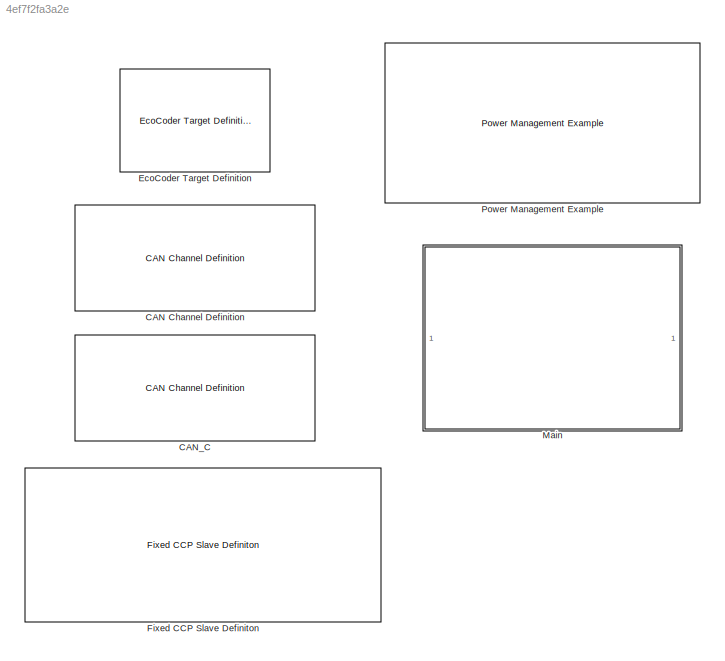
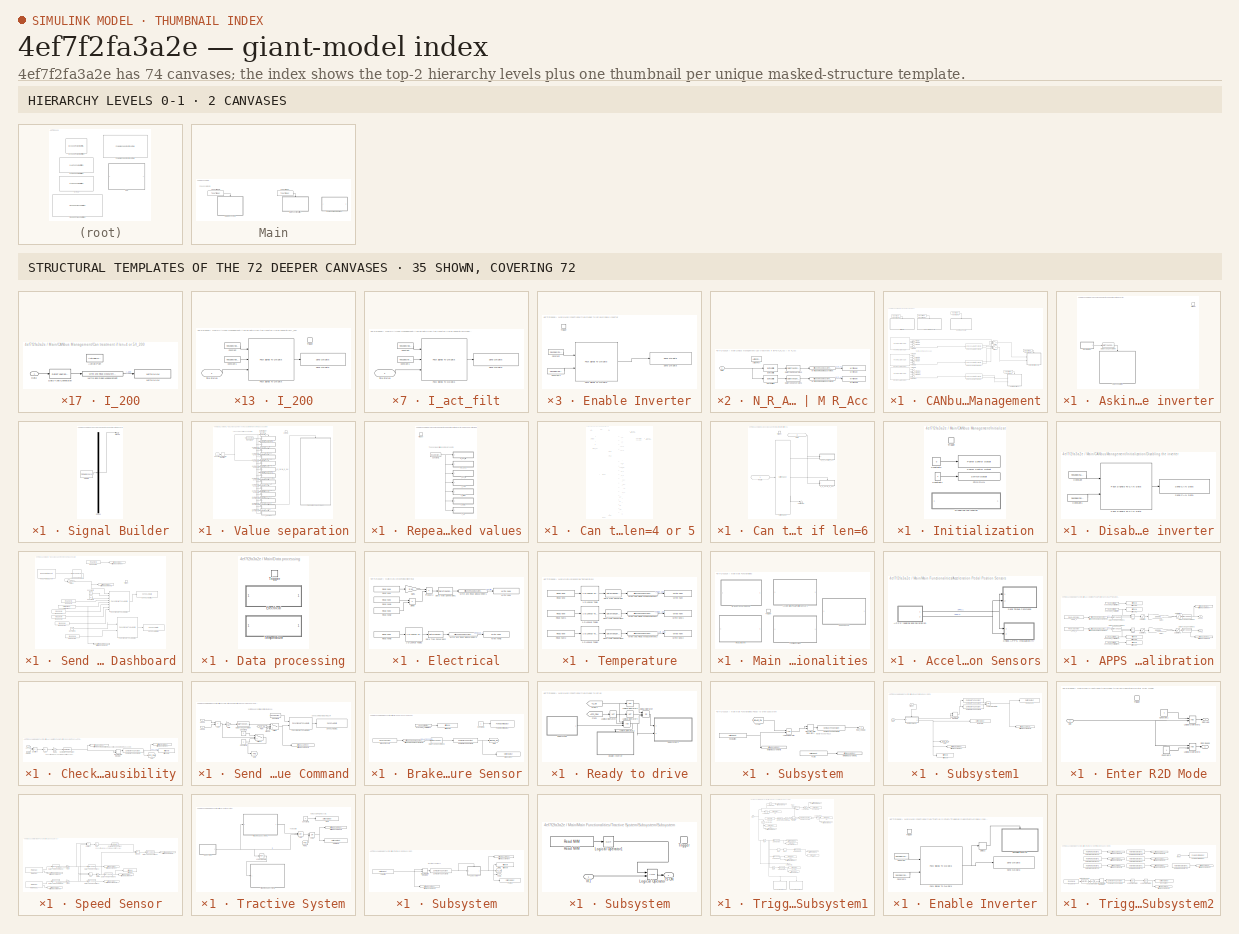
[diagram: thumbnail index - top-2 hierarchy levels (2 canvases) + 35 structural-template representatives of the remaining 72 canvases]
MODEL slx_4ef7f2fa3a2e
KIND model
CONFIG AbsTol = auto
CONFIG EnableMultiTasking = on
CONFIG FixedStep = 0.001
CONFIG InitFcn = EcoCoder_PreCheckLic();
CONFIG MaxStep = auto
CONFIG MinStep = auto
CONFIG PreLoadFcn = try\nMDL_setup;\ncatch\nend\n
CONFIG RelTol = 1e-3
CONFIG SampleTimeConstraint = Unconstrained
CONFIG Solver = FixedStepDiscrete
CONFIG SolverName = FixedStepDiscrete
CONFIG StartTime = 0.0
CONFIG StopTime = 10.0
BLOCK [Reference] CAN Channel Definition  REF=CoderSF_BSW_Libs/CAN/CAN Channel Definition
  Ports = []
  SourceBlock = CoderSF_BSW_Libs/CAN/CAN Channel Definition
  SourceType = CAN Channel Definition
BLOCK [Reference] CAN_C  REF=CoderSF_BSW_Libs/CAN/CAN Channel Definition
  Ports = []
  SourceBlock = CoderSF_BSW_Libs/CAN/CAN Channel Definition
  SourceType = CAN Channel Definition
BLOCK [Reference] EcoCoder Target Definition  REF=CoderSF_BSW_Libs/EcoCoder Target Definition
  AttributesFormatString = Target :%<targetECU>
  Ports = []
  SourceBlock = CoderSF_BSW_Libs/EcoCoder Target Definition
  SourceType = EcoCoder Target Definition
BLOCK [Reference] Fixed CCP Slave Definiton  REF=CoderSF_BSW_Libs/CCP/Fixed CCP Slave Definiton
  Ports = []
  SourceBlock = CoderSF_BSW_Libs/CCP/Fixed CCP Slave Definiton
  SourceType = Fixed CCP Slave Definiton
BLOCK [SubSystem] Main
  Ports = []
  RequestExecContextInheritance = off
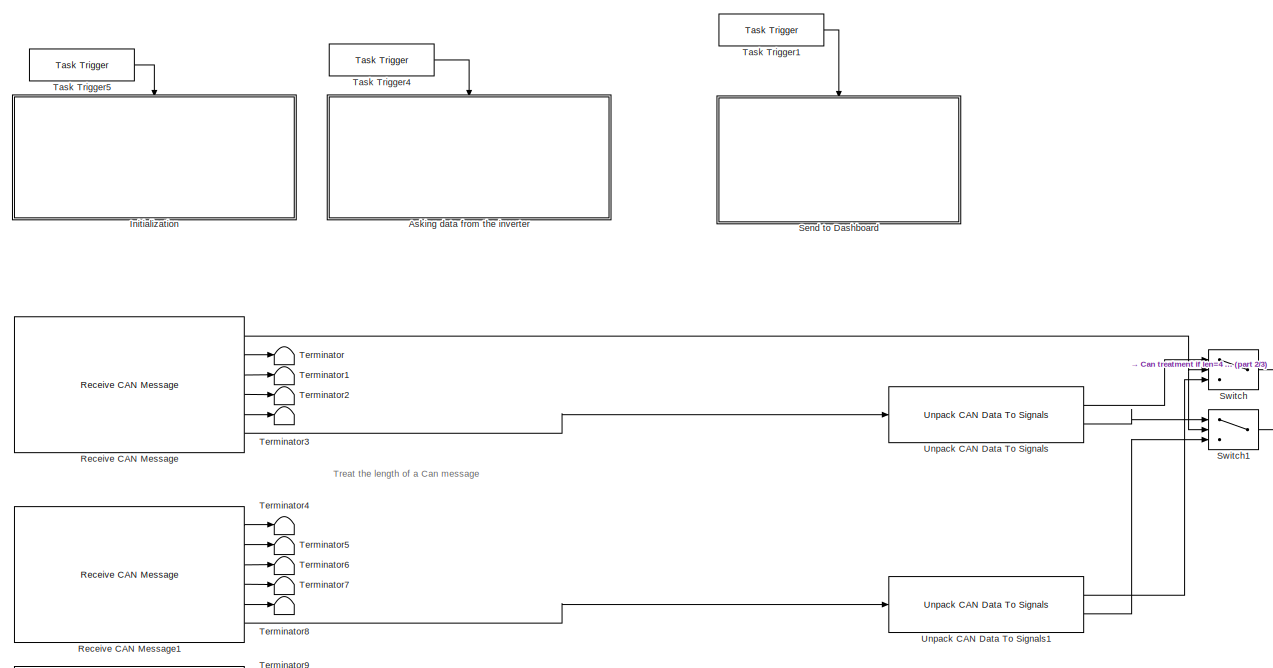
[diagram: Main/CANbus Management - part 1/3, central region]
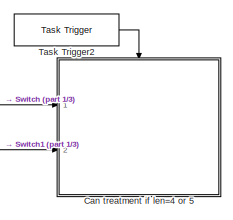
[diagram: Main/CANbus Management - part 2/3, middle right region]
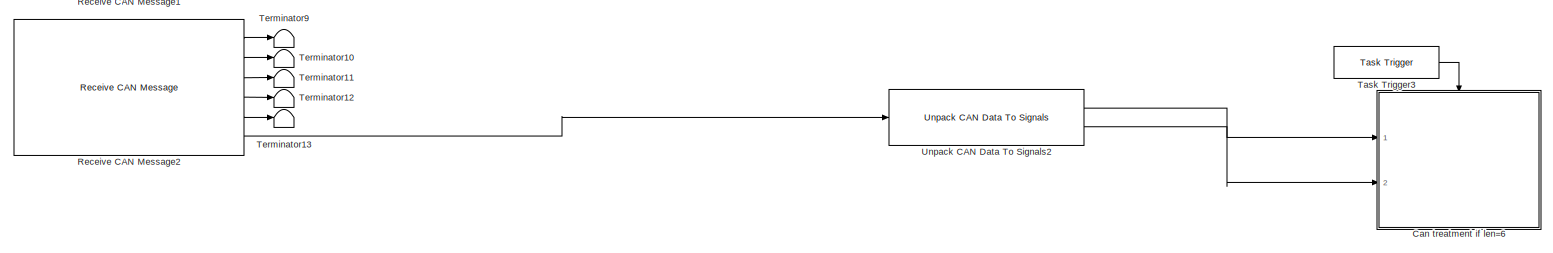
[diagram: Main/CANbus Management - part 3/3, full width, bottom band]
BLOCK [SubSystem] Main/CANbus Management
  Ports = []
  RequestExecContextInheritance = off
BLOCK [SubSystem] Main/CANbus Management/Asking data from the inverter
  Ports = [0, 0, 0, 1]
  RequestExecContextInheritance = off
BLOCK [DataTypeConversion] Main/CANbus Management/Asking data from the inverter/Data Type Conversion
  OutDataTypeStr = boolean
  RndMeth = Floor
  SaturateOnIntegerOverflow = off
BLOCK [SubSystem] Main/CANbus Management/Asking data from the inverter/Signal Builder
  ClipboardFcn = sigbuilder_block('clipboard');
  CloseFcn = sigbuilder_block('close');
  ContinueFcn = sigbuilder_block('continue');
  CopyFcn = sigbuilder_block('copy');
  DeleteFcn = sigbuilder_block('delete');
  LoadFcn = sigbuilder_block('load');
  MaskHideContents = on
  ModelCloseFcn = sigbuilder_block('modelClose');
  NameChangeFcn = sigbuilder_block('namechange');
  OpenFcn = sigbuilder_block('open',[437.6 199.2 550.4 400 ]);
  PauseFcn = sigbuilder_block('pause');
  Ports = [0, 1]
  PreSaveFcn = sigbuilder_block('preSave');
  RequestExecContextInheritance = off
  StartFcn = sigbuilder_block('start');
  StopFcn = sigbuilder_block('stop');
  Tag = STV Subsys
BLOCK [Demux] Main/CANbus Management/Asking data from the inverter/Signal Builder/Demux
  DisplayOption = none
  Outputs = 1
  Ports = [1, 1]
  Tag = STV Demux
BLOCK [FromWorkspace] Main/CANbus Management/Asking data from the inverter/Signal Builder/FromWs
  SampleTime = -1
  Tag = STV FromWs
  VariableName = tuvar
BLOCK [Outport] Main/CANbus Management/Asking data from the inverter/Signal Builder/Signal 1
  Tag = STV Outport
BLOCK [TriggerPort] Main/CANbus Management/Asking data from the inverter/Trigger
  PortDimensions = 1
  Ports = []
  StatesWhenEnabling = held
  TriggerType = function-call
  VariantControl = Variant
BLOCK [SubSystem] Main/CANbus Management/Asking data from the inverter/Value separation
  Ports = [0, 0, 1]
  RequestExecContextInheritance = off
BLOCK [Reference] Main/CANbus Management/Asking data from the inverter/Value separation/Compare To Constant  REF=simulink/Logic and Bit
Operations/Compare
To Constant
  Ports = [1, 1]
  SourceBlock = simulink/Logic and Bit\nOperations/Compare\nTo Constant
  SourceProductBaseCode = SL
  SourceType = Compare To Constant
BLOCK [Reference] Main/CANbus Management/Asking data from the inverter/Value separation/Compare To Constant1  REF=simulink/Logic and Bit
Operations/Compare
To Constant
  Ports = [1, 1]
  SourceBlock = simulink/Logic and Bit\nOperations/Compare\nTo Constant
  SourceProductBaseCode = SL
  SourceType = Compare To Constant
BLOCK [Reference] Main/CANbus Management/Asking data from the inverter/Value separation/Compare To Constant10  REF=simulink/Logic and Bit
Operations/Compare
To Constant
  Ports = [1, 1]
  SourceBlock = simulink/Logic and Bit\nOperations/Compare\nTo Constant
  SourceProductBaseCode = SL
  SourceType = Compare To Constant
BLOCK [Reference] Main/CANbus Management/Asking data from the inverter/Value separation/Compare To Constant11  REF=simulink/Logic and Bit
Operations/Compare
To Constant
  Ports = [1, 1]
  SourceBlock = simulink/Logic and Bit\nOperations/Compare\nTo Constant
  SourceProductBaseCode = SL
  SourceType = Compare To Constant
BLOCK [Reference] Main/CANbus Management/Asking data from the inverter/Value separation/Compare To Constant12  REF=simulink/Logic and Bit
Operations/Compare
To Constant
  Ports = [1, 1]
  SourceBlock = simulink/Logic and Bit\nOperations/Compare\nTo Constant
  SourceProductBaseCode = SL
  SourceType = Compare To Constant
BLOCK [Reference] Main/CANbus Management/Asking data from the inverter/Value separation/Compare To Constant2  REF=simulink/Logic and Bit
Operations/Compare
To Constant
  Ports = [1, 1]
  SourceBlock = simulink/Logic and Bit\nOperations/Compare\nTo Constant
  SourceProductBaseCode = SL
  SourceType = Compare To Constant
BLOCK [Reference] Main/CANbus Management/Asking data from the inverter/Value separation/Compare To Constant3  REF=simulink/Logic and Bit
Operations/Compare
To Constant
  Ports = [1, 1]
  SourceBlock = simulink/Logic and Bit\nOperations/Compare\nTo Constant
  SourceProductBaseCode = SL
  SourceType = Compare To Constant
BLOCK [Reference] Main/CANbus Management/Asking data from the inverter/Value separation/Compare To Constant4  REF=simulink/Logic and Bit
Operations/Compare
To Constant
  Ports = [1, 1]
  SourceBlock = simulink/Logic and Bit\nOperations/Compare\nTo Constant
  SourceProductBaseCode = SL
  SourceType = Compare To Constant
BLOCK [Reference] Main/CANbus Management/Asking data from the inverter/Value separation/Compare To Constant5  REF=simulink/Logic and Bit
Operations/Compare
To Constant
  Ports = [1, 1]
  SourceBlock = simulink/Logic and Bit\nOperations/Compare\nTo Constant
  SourceProductBaseCode = SL
  SourceType = Compare To Constant
BLOCK [Reference] Main/CANbus Management/Asking data from the inverter/Value separation/Compare To Constant6  REF=simulink/Logic and Bit
Operations/Compare
To Constant
  Ports = [1, 1]
  SourceBlock = simulink/Logic and Bit\nOperations/Compare\nTo Constant
  SourceProductBaseCode = SL
  SourceType = Compare To Constant
BLOCK [Reference] Main/CANbus Management/Asking data from the inverter/Value separation/Compare To Constant7  REF=simulink/Logic and Bit
Operations/Compare
To Constant
  Ports = [1, 1]
  SourceBlock = simulink/Logic and Bit\nOperations/Compare\nTo Constant
  SourceProductBaseCode = SL
  SourceType = Compare To Constant
BLOCK [Reference] Main/CANbus Management/Asking data from the inverter/Value separation/Compare To Constant8  REF=simulink/Logic and Bit
Operations/Compare
To Constant
  Ports = [1, 1]
  SourceBlock = simulink/Logic and Bit\nOperations/Compare\nTo Constant
  SourceProductBaseCode = SL
  SourceType = Compare To Constant
BLOCK [Reference] Main/CANbus Management/Asking data from the inverter/Value separation/Compare To Constant9  REF=simulink/Logic and Bit
Operations/Compare
To Constant
  Ports = [1, 1]
  SourceBlock = simulink/Logic and Bit\nOperations/Compare\nTo Constant
  SourceProductBaseCode = SL
  SourceType = Compare To Constant
BLOCK [Constant] Main/CANbus Management/Asking data from the inverter/Value separation/Constant
  OutDataTypeStr = boolean
BLOCK [Constant] Main/CANbus Management/Asking data from the inverter/Value separation/Constant2
  OutDataTypeStr = uint8
  Value = hex2dec('00')
BLOCK [DiscreteIntegrator] Main/CANbus Management/Asking data from the inverter/Value separation/Discrete-Time Integrator
  ICPrevOutput = DiscIntNeverNeededParam
  ICPrevScaledInput = DiscIntNeverNeededParam
  InitialConditionSetting = Auto
  Ports = [1, 1]
  SampleTime = -1
BLOCK [EnablePort] Main/CANbus Management/Asking data from the inverter/Value separation/Enable
  Ports = []
BLOCK [SubSystem] Main/CANbus Management/Asking data from the inverter/Value separation/I_200
  Ports = [1, 0, 0, 1]
  RequestExecContextInheritance = off
BLOCK [Constant] Main/CANbus Management/Asking data from the inverter/Value separation/I_200/Constant
  OutDataTypeStr = uint8
  Value = hex2dec('3d')
BLOCK [Constant] Main/CANbus Management/Asking data from the inverter/Value separation/I_200/Constant1
  OutDataTypeStr = uint8
  Value = hex2dec('d9')
BLOCK [Reference] Main/CANbus Management/Asking data from the inverter/Value separation/I_200/Pack Signals To CAN Data  REF=CoderSF_BSW_Libs/CAN/Pack Signals To CAN Data
  Ports = [3, 1]
  SourceBlock = CoderSF_BSW_Libs/CAN/Pack Signals To CAN Data
  SourceType = Pack Signals To CAN Data
BLOCK [Reference] Main/CANbus Management/Asking data from the inverter/Value separation/I_200/Send CAN Data  REF=CoderSF_BSW_Libs/CAN/Send CAN Data
  Ports = [1]
  SourceBlock = CoderSF_BSW_Libs/CAN/Send CAN Data
  SourceType = Send CAN Data
BLOCK [Inport] Main/CANbus Management/Asking data from the inverter/Value separation/I_200/Time interval
BLOCK [TriggerPort] Main/CANbus Management/Asking data from the inverter/Value separation/I_200/Trigger
  Ports = []
  StatesWhenEnabling = held
  VariantControl = Variant
BLOCK [SubSystem] Main/CANbus Management/Asking data from the inverter/Value separation/I_device
  Ports = [1, 0, 0, 1]
  RequestExecContextInheritance = off
BLOCK [Constant] Main/CANbus Management/Asking data from the inverter/Value separation/I_device/Constant
  OutDataTypeStr = uint8
  Value = hex2dec('3d')
BLOCK [Constant] Main/CANbus Management/Asking data from the inverter/Value separation/I_device/Constant1
  OutDataTypeStr = uint8
  Value = hex2dec('c6')
BLOCK [Reference] Main/CANbus Management/Asking data from the inverter/Value separation/I_device/Pack Signals To CAN Data  REF=CoderSF_BSW_Libs/CAN/Pack Signals To CAN Data
  Ports = [3, 1]
  SourceBlock = CoderSF_BSW_Libs/CAN/Pack Signals To CAN Data
  SourceType = Pack Signals To CAN Data
BLOCK [Reference] Main/CANbus Management/Asking data from the inverter/Value separation/I_device/Send CAN Data  REF=CoderSF_BSW_Libs/CAN/Send CAN Data
  Ports = [1]
  SourceBlock = CoderSF_BSW_Libs/CAN/Send CAN Data
  SourceType = Send CAN Data
BLOCK [Inport] Main/CANbus Management/Asking data from the inverter/Value separation/I_device/Time interval
BLOCK [TriggerPort] Main/CANbus Management/Asking data from the inverter/Value separation/I_device/Trigger
  Ports = []
  StatesWhenEnabling = held
  VariantControl = Variant
BLOCK [SubSystem] Main/CANbus Management/Asking data from the inverter/Value separation/I_device1
  Ports = [1, 0, 0, 1]
  RequestExecContextInheritance = off
BLOCK [Constant] Main/CANbus Management/Asking data from the inverter/Value separation/I_device1/Constant
  OutDataTypeStr = uint8
  Value = hex2dec('3d')
BLOCK [Constant] Main/CANbus Management/Asking data from the inverter/Value separation/I_device1/Constant1
  OutDataTypeStr = uint8
  Value = hex2dec('a8')
BLOCK [Reference] Main/CANbus Management/Asking data from the inverter/Value separation/I_device1/Pack Signals To CAN Data  REF=CoderSF_BSW_Libs/CAN/Pack Signals To CAN Data
  Ports = [3, 1]
  SourceBlock = CoderSF_BSW_Libs/CAN/Pack Signals To CAN Data
  SourceType = Pack Signals To CAN Data
BLOCK [Reference] Main/CANbus Management/Asking data from the inverter/Value separation/I_device1/Send CAN Data  REF=CoderSF_BSW_Libs/CAN/Send CAN Data
  Ports = [1]
  SourceBlock = CoderSF_BSW_Libs/CAN/Send CAN Data
  SourceType = Send CAN Data
BLOCK [Inport] Main/CANbus Management/Asking data from the inverter/Value separation/I_device1/Time interval
BLOCK [TriggerPort] Main/CANbus Management/Asking data from the inverter/Value separation/I_device1/Trigger
  Ports = []
  StatesWhenEnabling = held
  VariantControl = Variant
BLOCK [SubSystem] Main/CANbus Management/Asking data from the inverter/Value separation/I_max_eff
  Ports = [1, 0, 0, 1]
  RequestExecContextInheritance = off
BLOCK [Constant] Main/CANbus Management/Asking data from the inverter/Value separation/I_max_eff/Constant
  OutDataTypeStr = uint8
  Value = hex2dec('3d')
BLOCK [Constant] Main/CANbus Management/Asking data from the inverter/Value separation/I_max_eff/Constant1
  OutDataTypeStr = uint8
  Value = hex2dec('4d')
BLOCK [Reference] Main/CANbus Management/Asking data from the inverter/Value separation/I_max_eff/Pack Signals To CAN Data  REF=CoderSF_BSW_Libs/CAN/Pack Signals To CAN Data
  Ports = [3, 1]
  SourceBlock = CoderSF_BSW_Libs/CAN/Pack Signals To CAN Data
  SourceType = Pack Signals To CAN Data
BLOCK [Reference] Main/CANbus Management/Asking data from the inverter/Value separation/I_max_eff/Send CAN Data  REF=CoderSF_BSW_Libs/CAN/Send CAN Data
  Ports = [1]
  SourceBlock = CoderSF_BSW_Libs/CAN/Send CAN Data
  SourceType = Send CAN Data
BLOCK [Inport] Main/CANbus Management/Asking data from the inverter/Value separation/I_max_eff/Time interval
BLOCK [TriggerPort] Main/CANbus Management/Asking data from the inverter/Value separation/I_max_eff/Trigger
  Ports = []
  StatesWhenEnabling = held
  VariantControl = Variant
BLOCK [SubSystem] Main/CANbus Management/Asking data from the inverter/Value separation/I_max_pk
  Ports = [1, 0, 0, 1]
  RequestExecContextInheritance = off
BLOCK [Constant] Main/CANbus Management/Asking data from the inverter/Value separation/I_max_pk/Constant
  OutDataTypeStr = uint8
  Value = hex2dec('3d')
BLOCK [Constant] Main/CANbus Management/Asking data from the inverter/Value separation/I_max_pk/Constant1
  OutDataTypeStr = uint8
  Value = hex2dec('c4')
BLOCK [Reference] Main/CANbus Management/Asking data from the inverter/Value separation/I_max_pk/Pack Signals To CAN Data  REF=CoderSF_BSW_Libs/CAN/Pack Signals To CAN Data
  Ports = [3, 1]
  SourceBlock = CoderSF_BSW_Libs/CAN/Pack Signals To CAN Data
  SourceType = Pack Signals To CAN Data
BLOCK [Reference] Main/CANbus Management/Asking data from the inverter/Value separation/I_max_pk/Send CAN Data  REF=CoderSF_BSW_Libs/CAN/Send CAN Data
  Ports = [1]
  SourceBlock = CoderSF_BSW_Libs/CAN/Send CAN Data
  SourceType = Send CAN Data
BLOCK [Inport] Main/CANbus Management/Asking data from the inverter/Value separation/I_max_pk/Time interval
BLOCK [TriggerPort] Main/CANbus Management/Asking data from the inverter/Value separation/I_max_pk/Trigger
  Ports = []
  StatesWhenEnabling = held
  VariantControl = Variant
BLOCK [SubSystem] Main/CANbus Management/Asking data from the inverter/Value separation/I_nom_eff
  Ports = [1, 0, 0, 1]
  RequestExecContextInheritance = off
BLOCK [Constant] Main/CANbus Management/Asking data from the inverter/Value separation/I_nom_eff/Constant
  OutDataTypeStr = uint8
  Value = hex2dec('3d')
BLOCK [Constant] Main/CANbus Management/Asking data from the inverter/Value separation/I_nom_eff/Constant1
  OutDataTypeStr = uint8
  Value = hex2dec('4e')
BLOCK [Reference] Main/CANbus Management/Asking data from the inverter/Value separation/I_nom_eff/Pack Signals To CAN Data  REF=CoderSF_BSW_Libs/CAN/Pack Signals To CAN Data
  Ports = [3, 1]
  SourceBlock = CoderSF_BSW_Libs/CAN/Pack Signals To CAN Data
  SourceType = Pack Signals To CAN Data
BLOCK [Reference] Main/CANbus Management/Asking data from the inverter/Value separation/I_nom_eff/Send CAN Data  REF=CoderSF_BSW_Libs/CAN/Send CAN Data
  Ports = [1]
  SourceBlock = CoderSF_BSW_Libs/CAN/Send CAN Data
  SourceType = Send CAN Data
BLOCK [Inport] Main/CANbus Management/Asking data from the inverter/Value separation/I_nom_eff/Time interval
BLOCK [TriggerPort] Main/CANbus Management/Asking data from the inverter/Value separation/I_nom_eff/Trigger
  Ports = []
  StatesWhenEnabling = held
  VariantControl = Variant
BLOCK [SubSystem] Main/CANbus Management/Asking data from the inverter/Value separation/N_100
  Ports = [1, 0, 0, 1]
  RequestExecContextInheritance = off
BLOCK [Constant] Main/CANbus Management/Asking data from the inverter/Value separation/N_100/Constant
  OutDataTypeStr = uint8
  Value = hex2dec('3d')
BLOCK [Constant] Main/CANbus Management/Asking data from the inverter/Value separation/N_100/Constant1
  OutDataTypeStr = uint8
  Value = hex2dec('c8')
BLOCK [Reference] Main/CANbus Management/Asking data from the inverter/Value separation/N_100/Pack Signals To CAN Data  REF=CoderSF_BSW_Libs/CAN/Pack Signals To CAN Data
  Ports = [3, 1]
  SourceBlock = CoderSF_BSW_Libs/CAN/Pack Signals To CAN Data
  SourceType = Pack Signals To CAN Data
BLOCK [Reference] Main/CANbus Management/Asking data from the inverter/Value separation/N_100/Send CAN Data  REF=CoderSF_BSW_Libs/CAN/Send CAN Data
  Ports = [1]
  SourceBlock = CoderSF_BSW_Libs/CAN/Send CAN Data
  SourceType = Send CAN Data
BLOCK [Inport] Main/CANbus Management/Asking data from the inverter/Value separation/N_100/Time interval
BLOCK [TriggerPort] Main/CANbus Management/Asking data from the inverter/Value separation/N_100/Trigger
  Ports = []
  StatesWhenEnabling = held
  VariantControl = Variant
BLOCK [SubSystem] Main/CANbus Management/Asking data from the inverter/Value separation/N_Lim
  Ports = [1, 0, 0, 1]
  RequestExecContextInheritance = off
BLOCK [Constant] Main/CANbus Management/Asking data from the inverter/Value separation/N_Lim/Constant
  OutDataTypeStr = uint8
  Value = hex2dec('3d')
BLOCK [Constant] Main/CANbus Management/Asking data from the inverter/Value separation/N_Lim/Constant1
  OutDataTypeStr = uint8
  Value = hex2dec('34')
BLOCK [Reference] Main/CANbus Management/Asking data from the inverter/Value separation/N_Lim/Pack Signals To CAN Data  REF=CoderSF_BSW_Libs/CAN/Pack Signals To CAN Data
  Ports = [3, 1]
  SourceBlock = CoderSF_BSW_Libs/CAN/Pack Signals To CAN Data
  SourceType = Pack Signals To CAN Data
BLOCK [Reference] Main/CANbus Management/Asking data from the inverter/Value separation/N_Lim/Send CAN Data  REF=CoderSF_BSW_Libs/CAN/Send CAN Data
  Ports = [1]
  SourceBlock = CoderSF_BSW_Libs/CAN/Send CAN Data
  SourceType = Send CAN Data
BLOCK [Inport] Main/CANbus Management/Asking data from the inverter/Value separation/N_Lim/Time interval
BLOCK [TriggerPort] Main/CANbus Management/Asking data from the inverter/Value separation/N_Lim/Trigger
  Ports = []
  StatesWhenEnabling = held
  VariantControl = Variant
BLOCK [SubSystem] Main/CANbus Management/Asking data from the inverter/Value separation/N_Lim_neg
  Ports = [1, 0, 0, 1]
  RequestExecContextInheritance = off
BLOCK [Constant] Main/CANbus Management/Asking data from the inverter/Value separation/N_Lim_neg/Constant
  OutDataTypeStr = uint8
  Value = hex2dec('3d')
BLOCK [Constant] Main/CANbus Management/Asking data from the inverter/Value separation/N_Lim_neg/Constant1
  OutDataTypeStr = uint8
  Value = hex2dec('3e')
BLOCK [Reference] Main/CANbus Management/Asking data from the inverter/Value separation/N_Lim_neg/Pack Signals To CAN Data  REF=CoderSF_BSW_Libs/CAN/Pack Signals To CAN Data
  Ports = [3, 1]
  SourceBlock = CoderSF_BSW_Libs/CAN/Pack Signals To CAN Data
  SourceType = Pack Signals To CAN Data
BLOCK [Reference] Main/CANbus Management/Asking data from the inverter/Value separation/N_Lim_neg/Send CAN Data  REF=CoderSF_BSW_Libs/CAN/Send CAN Data
  Ports = [1]
  SourceBlock = CoderSF_BSW_Libs/CAN/Send CAN Data
  SourceType = Send CAN Data
BLOCK [Inport] Main/CANbus Management/Asking data from the inverter/Value separation/N_Lim_neg/Time interval
BLOCK [TriggerPort] Main/CANbus Management/Asking data from the inverter/Value separation/N_Lim_neg/Trigger
  Ports = []
  StatesWhenEnabling = held
  VariantControl = Variant
BLOCK [SubSystem] Main/CANbus Management/Asking data from the inverter/Value separation/N_Lim_pos
  Ports = [1, 0, 0, 1]
  RequestExecContextInheritance = off
BLOCK [Constant] Main/CANbus Management/Asking data from the inverter/Value separation/N_Lim_pos/Constant
  OutDataTypeStr = uint8
  Value = hex2dec('3d')
BLOCK [Constant] Main/CANbus Management/Asking data from the inverter/Value separation/N_Lim_pos/Constant1
  OutDataTypeStr = uint8
  Value = hex2dec('3f')
BLOCK [Reference] Main/CANbus Management/Asking data from the inverter/Value separation/N_Lim_pos/Pack Signals To CAN Data  REF=CoderSF_BSW_Libs/CAN/Pack Signals To CAN Data
  Ports = [3, 1]
  SourceBlock = CoderSF_BSW_Libs/CAN/Pack Signals To CAN Data
  SourceType = Pack Signals To CAN Data
BLOCK [Reference] Main/CANbus Management/Asking data from the inverter/Value separation/N_Lim_pos/Send CAN Data  REF=CoderSF_BSW_Libs/CAN/Send CAN Data
  Ports = [1]
  SourceBlock = CoderSF_BSW_Libs/CAN/Send CAN Data
  SourceType = Send CAN Data
BLOCK [Inport] Main/CANbus Management/Asking data from the inverter/Value separation/N_Lim_pos/Time interval
BLOCK [TriggerPort] Main/CANbus Management/Asking data from the inverter/Value separation/N_Lim_pos/Trigger
  Ports = []
  StatesWhenEnabling = held
  VariantControl = Variant
BLOCK [SubSystem] Main/CANbus Management/Asking data from the inverter/Value separation/N_R_Acc | M_R_Acc
  Ports = [1, 0, 0, 1]
  RequestExecContextInheritance = off
BLOCK [Constant] Main/CANbus Management/Asking data from the inverter/Value separation/N_R_Acc | M_R_Acc/Constant
  OutDataTypeStr = uint8
  Value = hex2dec('3d')
BLOCK [Constant] Main/CANbus Management/Asking data from the inverter/Value separation/N_R_Acc | M_R_Acc/Constant1
  OutDataTypeStr = uint8
  Value = hex2dec('35')
BLOCK [Reference] Main/CANbus Management/Asking data from the inverter/Value separation/N_R_Acc | M_R_Acc/Pack Signals To CAN Data  REF=CoderSF_BSW_Libs/CAN/Pack Signals To CAN Data
  Ports = [3, 1]
  SourceBlock = CoderSF_BSW_Libs/CAN/Pack Signals To CAN Data
  SourceType = Pack Signals To CAN Data
BLOCK [Reference] Main/CANbus Management/Asking data from the inverter/Value separation/N_R_Acc | M_R_Acc/Send CAN Data  REF=CoderSF_BSW_Libs/CAN/Send CAN Data
  Ports = [1]
  SourceBlock = CoderSF_BSW_Libs/CAN/Send CAN Data
  SourceType = Send CAN Data
BLOCK [Inport] Main/CANbus Management/Asking data from the inverter/Value separation/N_R_Acc | M_R_Acc/Time interval
BLOCK [TriggerPort] Main/CANbus Management/Asking data from the inverter/Value separation/N_R_Acc | M_R_Acc/Trigger
  Ports = []
  StatesWhenEnabling = held
  VariantControl = Variant
BLOCK [SubSystem] Main/CANbus Management/Asking data from the inverter/Value separation/N_R_Dec | M_R_Dec
  Ports = [1, 0, 0, 1]
  RequestExecContextInheritance = off
BLOCK [Constant] Main/CANbus Management/Asking data from the inverter/Value separation/N_R_Dec | M_R_Dec/Constant
  OutDataTypeStr = uint8
  Value = hex2dec('3d')
BLOCK [Constant] Main/CANbus Management/Asking data from the inverter/Value separation/N_R_Dec | M_R_Dec/Constant1
  OutDataTypeStr = uint8
  Value = hex2dec('ed')
BLOCK [Reference] Main/CANbus Management/Asking data from the inverter/Value separation/N_R_Dec | M_R_Dec/Pack Signals To CAN Data  REF=CoderSF_BSW_Libs/CAN/Pack Signals To CAN Data
  Ports = [3, 1]
  SourceBlock = CoderSF_BSW_Libs/CAN/Pack Signals To CAN Data
  SourceType = Pack Signals To CAN Data
BLOCK [Reference] Main/CANbus Management/Asking data from the inverter/Value separation/N_R_Dec | M_R_Dec/Send CAN Data  REF=CoderSF_BSW_Libs/CAN/Send CAN Data
  Ports = [1]
  SourceBlock = CoderSF_BSW_Libs/CAN/Send CAN Data
  SourceType = Send CAN Data
BLOCK [Inport] Main/CANbus Management/Asking data from the inverter/Value separation/N_R_Dec | M_R_Dec/Time interval
BLOCK [TriggerPort] Main/CANbus Management/Asking data from the inverter/Value separation/N_R_Dec | M_R_Dec/Trigger
  Ports = []
  StatesWhenEnabling = held
  VariantControl = Variant
BLOCK [SubSystem] Main/CANbus Management/Asking data from the inverter/Value separation/Repeatedly asked values
  Ports = [0, 0, 0, 1]
  RequestExecContextInheritance = off
BLOCK [Constant] Main/CANbus Management/Asking data from the inverter/Value separation/Repeatedly asked values/Constant1
  OutDataTypeStr = uint8
  Value = hex2dec('64')
BLOCK [SubSystem] Main/CANbus Management/Asking data from the inverter/Value separation/Repeatedly asked values/I_act_filt
  Ports = [1]
  RequestExecContextInheritance = off
BLOCK [Constant] Main/CANbus Management/Asking data from the inverter/Value separation/Repeatedly asked values/I_act_filt/Constant
  OutDataTypeStr = uint8
  Value = hex2dec('3d')
BLOCK [Constant] Main/CANbus Management/Asking data from the inverter/Value separation/Repeatedly asked values/I_act_filt/Constant1
  OutDataTypeStr = uint8
  Value = hex2dec('5f')
BLOCK [Reference] Main/CANbus Management/Asking data from the inverter/Value separation/Repeatedly asked values/I_act_filt/Pack Signals To CAN Data  REF=CoderSF_BSW_Libs/CAN/Pack Signals To CAN Data
  Ports = [3, 1]
  SourceBlock = CoderSF_BSW_Libs/CAN/Pack Signals To CAN Data
  SourceType = Pack Signals To CAN Data
BLOCK [Reference] Main/CANbus Management/Asking data from the inverter/Value separation/Repeatedly asked values/I_act_filt/Send CAN Data  REF=CoderSF_BSW_Libs/CAN/Send CAN Data
  Ports = [1]
  SourceBlock = CoderSF_BSW_Libs/CAN/Send CAN Data
  SourceType = Send CAN Data
BLOCK [Inport] Main/CANbus Management/Asking data from the inverter/Value separation/Repeatedly asked values/I_act_filt/Time interval
BLOCK [SubSystem] Main/CANbus Management/Asking data from the inverter/Value separation/Repeatedly asked values/I_cmd
  Ports = [1]
  RequestExecContextInheritance = off
BLOCK [Constant] Main/CANbus Management/Asking data from the inverter/Value separation/Repeatedly asked values/I_cmd/Constant
  OutDataTypeStr = uint8
  Value = hex2dec('3d')
BLOCK [Constant] Main/CANbus Management/Asking data from the inverter/Value separation/Repeatedly asked values/I_cmd/Constant1
  OutDataTypeStr = uint8
  Value = hex2dec('26')
BLOCK [Reference] Main/CANbus Management/Asking data from the inverter/Value separation/Repeatedly asked values/I_cmd/Pack Signals To CAN Data  REF=CoderSF_BSW_Libs/CAN/Pack Signals To CAN Data
  Ports = [3, 1]
  SourceBlock = CoderSF_BSW_Libs/CAN/Pack Signals To CAN Data
  SourceType = Pack Signals To CAN Data
BLOCK [Reference] Main/CANbus Management/Asking data from the inverter/Value separation/Repeatedly asked values/I_cmd/Send CAN Data  REF=CoderSF_BSW_Libs/CAN/Send CAN Data
  Ports = [1]
  SourceBlock = CoderSF_BSW_Libs/CAN/Send CAN Data
  SourceType = Send CAN Data
BLOCK [Inport] Main/CANbus Management/Asking data from the inverter/Value separation/Repeatedly asked values/I_cmd/Time interval
BLOCK [SubSystem] Main/CANbus Management/Asking data from the inverter/Value separation/Repeatedly asked values/N_act_filt
  Ports = [1]
  RequestExecContextInheritance = off
BLOCK [Constant] Main/CANbus Management/Asking data from the inverter/Value separation/Repeatedly asked values/N_act_filt/Constant
  OutDataTypeStr = uint8
  Value = hex2dec('3d')
BLOCK [Constant] Main/CANbus Management/Asking data from the inverter/Value separation/Repeatedly asked values/N_act_filt/Constant1
  OutDataTypeStr = uint8
  Value = hex2dec('a8')
BLOCK [Reference] Main/CANbus Management/Asking data from the inverter/Value separation/Repeatedly asked values/N_act_filt/Pack Signals To CAN Data  REF=CoderSF_BSW_Libs/CAN/Pack Signals To CAN Data
  Ports = [3, 1]
  SourceBlock = CoderSF_BSW_Libs/CAN/Pack Signals To CAN Data
  SourceType = Pack Signals To CAN Data
BLOCK [Reference] Main/CANbus Management/Asking data from the inverter/Value separation/Repeatedly asked values/N_act_filt/Send CAN Data  REF=CoderSF_BSW_Libs/CAN/Send CAN Data
  Ports = [1]
  SourceBlock = CoderSF_BSW_Libs/CAN/Send CAN Data
  SourceType = Send CAN Data
BLOCK [Inport] Main/CANbus Management/Asking data from the inverter/Value separation/Repeatedly asked values/N_act_filt/Time interval
BLOCK [SubSystem] Main/CANbus Management/Asking data from the inverter/Value separation/Repeatedly asked values/T_IGBT
  Ports = [1]
  RequestExecContextInheritance = off
BLOCK [Constant] Main/CANbus Management/Asking data from the inverter/Value separation/Repeatedly asked values/T_IGBT/Constant
  OutDataTypeStr = uint8
  Value = hex2dec('3d')
BLOCK [Constant] Main/CANbus Management/Asking data from the inverter/Value separation/Repeatedly asked values/T_IGBT/Constant1
  OutDataTypeStr = uint8
  Value = hex2dec('4a')
BLOCK [Reference] Main/CANbus Management/Asking data from the inverter/Value separation/Repeatedly asked values/T_IGBT/Pack Signals To CAN Data  REF=CoderSF_BSW_Libs/CAN/Pack Signals To CAN Data
  Ports = [3, 1]
  SourceBlock = CoderSF_BSW_Libs/CAN/Pack Signals To CAN Data
  SourceType = Pack Signals To CAN Data
BLOCK [Reference] Main/CANbus Management/Asking data from the inverter/Value separation/Repeatedly asked values/T_IGBT/Send CAN Data  REF=CoderSF_BSW_Libs/CAN/Send CAN Data
  Ports = [1]
  SourceBlock = CoderSF_BSW_Libs/CAN/Send CAN Data
  SourceType = Send CAN Data
BLOCK [Inport] Main/CANbus Management/Asking data from the inverter/Value separation/Repeatedly asked values/T_IGBT/Time interval
BLOCK [SubSystem] Main/CANbus Management/Asking data from the inverter/Value separation/Repeatedly asked values/T_air
  Ports = [1]
  RequestExecContextInheritance = off
BLOCK [Constant] Main/CANbus Management/Asking data from the inverter/Value separation/Repeatedly asked values/T_air/Constant
  OutDataTypeStr = uint8
  Value = hex2dec('3d')
BLOCK [Constant] Main/CANbus Management/Asking data from the inverter/Value separation/Repeatedly asked values/T_air/Constant1
  OutDataTypeStr = uint8
  Value = hex2dec('4b')
BLOCK [Reference] Main/CANbus Management/Asking data from the inverter/Value separation/Repeatedly asked values/T_air/Pack Signals To CAN Data  REF=CoderSF_BSW_Libs/CAN/Pack Signals To CAN Data
  Ports = [3, 1]
  SourceBlock = CoderSF_BSW_Libs/CAN/Pack Signals To CAN Data
  SourceType = Pack Signals To CAN Data
BLOCK [Reference] Main/CANbus Management/Asking data from the inverter/Value separation/Repeatedly asked values/T_air/Send CAN Data  REF=CoderSF_BSW_Libs/CAN/Send CAN Data
  Ports = [1]
  SourceBlock = CoderSF_BSW_Libs/CAN/Send CAN Data
  SourceType = Send CAN Data
BLOCK [Inport] Main/CANbus Management/Asking data from the inverter/Value separation/Repeatedly asked values/T_air/Time interval
BLOCK [SubSystem] Main/CANbus Management/Asking data from the inverter/Value separation/Repeatedly asked values/T_motor
  Ports = [1]
  RequestExecContextInheritance = off
BLOCK [Constant] Main/CANbus Management/Asking data from the inverter/Value separation/Repeatedly asked values/T_motor/Constant
  OutDataTypeStr = uint8
  Value = hex2dec('3d')
BLOCK [Constant] Main/CANbus Management/Asking data from the inverter/Value separation/Repeatedly asked values/T_motor/Constant1
  OutDataTypeStr = uint8
  Value = hex2dec('49')
BLOCK [Reference] Main/CANbus Management/Asking data from the inverter/Value separation/Repeatedly asked values/T_motor/Pack Signals To CAN Data  REF=CoderSF_BSW_Libs/CAN/Pack Signals To CAN Data
  Ports = [3, 1]
  SourceBlock = CoderSF_BSW_Libs/CAN/Pack Signals To CAN Data
  SourceType = Pack Signals To CAN Data
BLOCK [Reference] Main/CANbus Management/Asking data from the inverter/Value separation/Repeatedly asked values/T_motor/Send CAN Data  REF=CoderSF_BSW_Libs/CAN/Send CAN Data
  Ports = [1]
  SourceBlock = CoderSF_BSW_Libs/CAN/Send CAN Data
  SourceType = Send CAN Data
BLOCK [Inport] Main/CANbus Management/Asking data from the inverter/Value separation/Repeatedly asked values/T_motor/Time interval
BLOCK [TriggerPort] Main/CANbus Management/Asking data from the inverter/Value separation/Repeatedly asked values/Trigger
  Ports = []
  StatesWhenEnabling = held
  VariantControl = Variant
BLOCK [SubSystem] Main/CANbus Management/Asking data from the inverter/Value separation/Repeatedly asked values/Vdc_bus
  Ports = [1]
  RequestExecContextInheritance = off
BLOCK [Constant] Main/CANbus Management/Asking data from the inverter/Value separation/Repeatedly asked values/Vdc_bus/Constant
  OutDataTypeStr = uint8
  Value = hex2dec('3d')
BLOCK [Constant] Main/CANbus Management/Asking data from the inverter/Value separation/Repeatedly asked values/Vdc_bus/Constant1
  OutDataTypeStr = uint8
  Value = hex2dec('eb')
BLOCK [Reference] Main/CANbus Management/Asking data from the inverter/Value separation/Repeatedly asked values/Vdc_bus/Pack Signals To CAN Data  REF=CoderSF_BSW_Libs/CAN/Pack Signals To CAN Data
  Ports = [3, 1]
  SourceBlock = CoderSF_BSW_Libs/CAN/Pack Signals To CAN Data
  SourceType = Pack Signals To CAN Data
BLOCK [Reference] Main/CANbus Management/Asking data from the inverter/Value separation/Repeatedly asked values/Vdc_bus/Send CAN Data  REF=CoderSF_BSW_Libs/CAN/Send CAN Data
  Ports = [1]
  SourceBlock = CoderSF_BSW_Libs/CAN/Send CAN Data
  SourceType = Send CAN Data
BLOCK [Inport] Main/CANbus Management/Asking data from the inverter/Value separation/Repeatedly asked values/Vdc_bus/Time interval
BLOCK [SubSystem] Main/CANbus Management/Asking data from the inverter/Value separation/SpeedRPMmax
  Ports = [1, 0, 0, 1]
  RequestExecContextInheritance = off
BLOCK [Constant] Main/CANbus Management/Asking data from the inverter/Value separation/SpeedRPMmax/Constant
  OutDataTypeStr = uint8
  Value = hex2dec('3d')
BLOCK [Constant] Main/CANbus Management/Asking data from the inverter/Value separation/SpeedRPMmax/Constant1
  OutDataTypeStr = uint8
  Value = hex2dec('ce')
BLOCK [Reference] Main/CANbus Management/Asking data from the inverter/Value separation/SpeedRPMmax/Pack Signals To CAN Data  REF=CoderSF_BSW_Libs/CAN/Pack Signals To CAN Data
  Ports = [3, 1]
  SourceBlock = CoderSF_BSW_Libs/CAN/Pack Signals To CAN Data
  SourceType = Pack Signals To CAN Data
BLOCK [Reference] Main/CANbus Management/Asking data from the inverter/Value separation/SpeedRPMmax/Send CAN Data  REF=CoderSF_BSW_Libs/CAN/Send CAN Data
  Ports = [1]
  SourceBlock = CoderSF_BSW_Libs/CAN/Send CAN Data
  SourceType = Send CAN Data
BLOCK [Inport] Main/CANbus Management/Asking data from the inverter/Value separation/SpeedRPMmax/Time interval
BLOCK [TriggerPort] Main/CANbus Management/Asking data from the inverter/Value separation/SpeedRPMmax/Trigger
  Ports = []
  StatesWhenEnabling = held
  VariantControl = Variant
BLOCK [SubSystem] Main/CANbus Management/Can treatment if len=4 or 5
  Ports = [2, 0, 0, 1]
  RequestExecContextInheritance = off
  TreatAsAtomicUnit = on
BLOCK [Inport] Main/CANbus Management/Can treatment if len=4 or 5/Data
  IconDisplay = Signal name
  Port = 2
BLOCK [DataTypeConversion] Main/CANbus Management/Can treatment if len=4 or 5/Data Type Conversion
  NameLocation = left
  RndMeth = Floor
  SaturateOnIntegerOverflow = off
BLOCK [SubSystem] Main/CANbus Management/Can treatment if len=4 or 5/I_200
  Ports = [1, 0, 0, 0, 0, 0, 0, 1]
  RequestExecContextInheritance = off
  TreatAsAtomicUnit = on
BLOCK [ActionPort] Main/CANbus Management/Can treatment if len=4 or 5/I_200/Action Port
  ActionPortLabel = case [ 217 ]:
BLOCK [Inport] Main/CANbus Management/Can treatment if len=4 or 5/I_200/Data
BLOCK [DataTypeConversion] Main/CANbus Management/Can treatment if len=4 or 5/I_200/Data Type Conversion
  RndMeth = Floor
  SaturateOnIntegerOverflow = off
BLOCK [Reference] Main/CANbus Management/Can treatment if len=4 or 5/I_200/Write NVM  REF=CoderSF_BSW_Libs/Non-volatile Memory Blocks/Write NVM
  AttributesFormatString = value:%<variable_value> type:%<variable_type> D:%<variable_numD>
  Ports = [1]
  SourceBlock = CoderSF_BSW_Libs/Non-volatile Memory Blocks/Write NVM
  SourceType = Write NVM
BLOCK [Reference] Main/CANbus Management/Can treatment if len=4 or 5/I_200/Write and Read Measurement  REF=CoderSF_BSW_Libs/Calibration & Measurement/Write and Read Measurement
  AttributesFormatString = type:%<variable_type> Dimensions:%<numD>
  Ports = [1, 1]
  SourceBlock = CoderSF_BSW_Libs/Calibration & Measurement/Write and Read Measurement
  SourceType = Write and Read Measurement
BLOCK [SubSystem] Main/CANbus Management/Can treatment if len=4 or 5/I_act_filt
  Ports = [1, 0, 0, 0, 0, 0, 0, 1]
  RequestExecContextInheritance = off
  TreatAsAtomicUnit = on
BLOCK [ActionPort] Main/CANbus Management/Can treatment if len=4 or 5/I_act_filt/Action Port
  ActionPortLabel = case [ 95 ]:
BLOCK [Inport] Main/CANbus Management/Can treatment if len=4 or 5/I_act_filt/Data
BLOCK [DataTypeConversion] Main/CANbus Management/Can treatment if len=4 or 5/I_act_filt/Data Type Conversion
  RndMeth = Floor
  SaturateOnIntegerOverflow = off
BLOCK [Reference] Main/CANbus Management/Can treatment if len=4 or 5/I_act_filt/Write NVM  REF=CoderSF_BSW_Libs/Non-volatile Memory Blocks/Write NVM
  AttributesFormatString = value:%<variable_value> type:%<variable_type> D:%<variable_numD>
  Ports = [1]
  SourceBlock = CoderSF_BSW_Libs/Non-volatile Memory Blocks/Write NVM
  SourceType = Write NVM
BLOCK [Reference] Main/CANbus Management/Can treatment if len=4 or 5/I_act_filt/Write and Read Measurement  REF=CoderSF_BSW_Libs/Calibration & Measurement/Write and Read Measurement
  AttributesFormatString = type:%<variable_type> Dimensions:%<numD>
  Ports = [1, 1]
  SourceBlock = CoderSF_BSW_Libs/Calibration & Measurement/Write and Read Measurement
  SourceType = Write and Read Measurement
BLOCK [SubSystem] Main/CANbus Management/Can treatment if len=4 or 5/I_cmd
  Ports = [1, 0, 0, 0, 0, 0, 0, 1]
  RequestExecContextInheritance = off
  TreatAsAtomicUnit = on
BLOCK [ActionPort] Main/CANbus Management/Can treatment if len=4 or 5/I_cmd/Action Port
  ActionPortLabel = case [ 38 ]:
BLOCK [Inport] Main/CANbus Management/Can treatment if len=4 or 5/I_cmd/Data
BLOCK [DataTypeConversion] Main/CANbus Management/Can treatment if len=4 or 5/I_cmd/Data Type Conversion
  RndMeth = Floor
  SaturateOnIntegerOverflow = off
BLOCK [Reference] Main/CANbus Management/Can treatment if len=4 or 5/I_cmd/Write NVM  REF=CoderSF_BSW_Libs/Non-volatile Memory Blocks/Write NVM
  AttributesFormatString = value:%<variable_value> type:%<variable_type> D:%<variable_numD>
  Ports = [1]
  SourceBlock = CoderSF_BSW_Libs/Non-volatile Memory Blocks/Write NVM
  SourceType = Write NVM
BLOCK [Reference] Main/CANbus Management/Can treatment if len=4 or 5/I_cmd/Write and Read Measurement  REF=CoderSF_BSW_Libs/Calibration & Measurement/Write and Read Measurement
  AttributesFormatString = type:%<variable_type> Dimensions:%<numD>
  Ports = [1, 1]
  SourceBlock = CoderSF_BSW_Libs/Calibration & Measurement/Write and Read Measurement
  SourceType = Write and Read Measurement
BLOCK [SubSystem] Main/CANbus Management/Can treatment if len=4 or 5/I_device
  Ports = [1, 0, 0, 0, 0, 0, 0, 1]
  RequestExecContextInheritance = off
  TreatAsAtomicUnit = on
BLOCK [ActionPort] Main/CANbus Management/Can treatment if len=4 or 5/I_device/Action Port
  ActionPortLabel = case [ 198 ]:
BLOCK [Inport] Main/CANbus Management/Can treatment if len=4 or 5/I_device/Data
BLOCK [DataTypeConversion] Main/CANbus Management/Can treatment if len=4 or 5/I_device/Data Type Conversion
  RndMeth = Floor
  SaturateOnIntegerOverflow = off
BLOCK [Reference] Main/CANbus Management/Can treatment if len=4 or 5/I_device/Write NVM  REF=CoderSF_BSW_Libs/Non-volatile Memory Blocks/Write NVM
  AttributesFormatString = value:%<variable_value> type:%<variable_type> D:%<variable_numD>
  Ports = [1]
  SourceBlock = CoderSF_BSW_Libs/Non-volatile Memory Blocks/Write NVM
  SourceType = Write NVM
BLOCK [Reference] Main/CANbus Management/Can treatment if len=4 or 5/I_device/Write and Read Measurement  REF=CoderSF_BSW_Libs/Calibration & Measurement/Write and Read Measurement
  AttributesFormatString = type:%<variable_type> Dimensions:%<numD>
  Ports = [1, 1]
  SourceBlock = CoderSF_BSW_Libs/Calibration & Measurement/Write and Read Measurement
  SourceType = Write and Read Measurement
BLOCK [SubSystem] Main/CANbus Management/Can treatment if len=4 or 5/I_max_eff
  Ports = [1, 0, 0, 0, 0, 0, 0, 1]
  RequestExecContextInheritance = off
  TreatAsAtomicUnit = on
BLOCK [ActionPort] Main/CANbus Management/Can treatment if len=4 or 5/I_max_eff/Action Port
  ActionPortLabel = case [ 77 ]:
BLOCK [Inport] Main/CANbus Management/Can treatment if len=4 or 5/I_max_eff/Data
BLOCK [DataTypeConversion] Main/CANbus Management/Can treatment if len=4 or 5/I_max_eff/Data Type Conversion
  RndMeth = Floor
  SaturateOnIntegerOverflow = off
BLOCK [Reference] Main/CANbus Management/Can treatment if len=4 or 5/I_max_eff/Write NVM  REF=CoderSF_BSW_Libs/Non-volatile Memory Blocks/Write NVM
  AttributesFormatString = value:%<variable_value> type:%<variable_type> D:%<variable_numD>
  Ports = [1]
  SourceBlock = CoderSF_BSW_Libs/Non-volatile Memory Blocks/Write NVM
  SourceType = Write NVM
BLOCK [Reference] Main/CANbus Management/Can treatment if len=4 or 5/I_max_eff/Write and Read Measurement  REF=CoderSF_BSW_Libs/Calibration & Measurement/Write and Read Measurement
  AttributesFormatString = type:%<variable_type> Dimensions:%<numD>
  Ports = [1, 1]
  SourceBlock = CoderSF_BSW_Libs/Calibration & Measurement/Write and Read Measurement
  SourceType = Write and Read Measurement
BLOCK [SubSystem] Main/CANbus Management/Can treatment if len=4 or 5/I_max_pk
  Ports = [1, 0, 0, 0, 0, 0, 0, 1]
  RequestExecContextInheritance = off
  TreatAsAtomicUnit = on
BLOCK [ActionPort] Main/CANbus Management/Can treatment if len=4 or 5/I_max_pk/Action Port
  ActionPortLabel = case [ 196 ]:
BLOCK [Inport] Main/CANbus Management/Can treatment if len=4 or 5/I_max_pk/Data
BLOCK [DataTypeConversion] Main/CANbus Management/Can treatment if len=4 or 5/I_max_pk/Data Type Conversion
  RndMeth = Floor
  SaturateOnIntegerOverflow = off
BLOCK [Reference] Main/CANbus Management/Can treatment if len=4 or 5/I_max_pk/Write NVM  REF=CoderSF_BSW_Libs/Non-volatile Memory Blocks/Write NVM
  AttributesFormatString = value:%<variable_value> type:%<variable_type> D:%<variable_numD>
  Ports = [1]
  SourceBlock = CoderSF_BSW_Libs/Non-volatile Memory Blocks/Write NVM
  SourceType = Write NVM
BLOCK [Reference] Main/CANbus Management/Can treatment if len=4 or 5/I_max_pk/Write and Read Measurement  REF=CoderSF_BSW_Libs/Calibration & Measurement/Write and Read Measurement
  AttributesFormatString = type:%<variable_type> Dimensions:%<numD>
  Ports = [1, 1]
  SourceBlock = CoderSF_BSW_Libs/Calibration & Measurement/Write and Read Measurement
  SourceType = Write and Read Measurement
BLOCK [SubSystem] Main/CANbus Management/Can treatment if len=4 or 5/I_nom_eff
  Ports = [1, 0, 0, 0, 0, 0, 0, 1]
  RequestExecContextInheritance = off
  TreatAsAtomicUnit = on
BLOCK [ActionPort] Main/CANbus Management/Can treatment if len=4 or 5/I_nom_eff/Action Port
  ActionPortLabel = case [ 78 ]:
BLOCK [Inport] Main/CANbus Management/Can treatment if len=4 or 5/I_nom_eff/Data
BLOCK [DataTypeConversion] Main/CANbus Management/Can treatment if len=4 or 5/I_nom_eff/Data Type Conversion
  RndMeth = Floor
  SaturateOnIntegerOverflow = off
BLOCK [Reference] Main/CANbus Management/Can treatment if len=4 or 5/I_nom_eff/Write NVM  REF=CoderSF_BSW_Libs/Non-volatile Memory Blocks/Write NVM
  AttributesFormatString = value:%<variable_value> type:%<variable_type> D:%<variable_numD>
  Ports = [1]
  SourceBlock = CoderSF_BSW_Libs/Non-volatile Memory Blocks/Write NVM
  SourceType = Write NVM
BLOCK [Reference] Main/CANbus Management/Can treatment if len=4 or 5/I_nom_eff/Write and Read Measurement  REF=CoderSF_BSW_Libs/Calibration & Measurement/Write and Read Measurement
  AttributesFormatString = type:%<variable_type> Dimensions:%<numD>
  Ports = [1, 1]
  SourceBlock = CoderSF_BSW_Libs/Calibration & Measurement/Write and Read Measurement
  SourceType = Write and Read Measurement
BLOCK [SubSystem] Main/CANbus Management/Can treatment if len=4 or 5/N_100
  Ports = [1, 0, 0, 0, 0, 0, 0, 1]
  RequestExecContextInheritance = off
  TreatAsAtomicUnit = on
BLOCK [ActionPort] Main/CANbus Management/Can treatment if len=4 or 5/N_100/Action Port
  ActionPortLabel = case [ 200 ]:
BLOCK [Inport] Main/CANbus Management/Can treatment if len=4 or 5/N_100/Data
BLOCK [DataTypeConversion] Main/CANbus Management/Can treatment if len=4 or 5/N_100/Data Type Conversion
  RndMeth = Floor
  SaturateOnIntegerOverflow = off
BLOCK [Reference] Main/CANbus Management/Can treatment if len=4 or 5/N_100/Write NVM  REF=CoderSF_BSW_Libs/Non-volatile Memory Blocks/Write NVM
  AttributesFormatString = value:%<variable_value> type:%<variable_type> D:%<variable_numD>
  Ports = [1]
  SourceBlock = CoderSF_BSW_Libs/Non-volatile Memory Blocks/Write NVM
  SourceType = Write NVM
BLOCK [Reference] Main/CANbus Management/Can treatment if len=4 or 5/N_100/Write and Read Measurement  REF=CoderSF_BSW_Libs/Calibration & Measurement/Write and Read Measurement
  AttributesFormatString = type:%<variable_type> Dimensions:%<numD>
  Ports = [1, 1]
  SourceBlock = CoderSF_BSW_Libs/Calibration & Measurement/Write and Read Measurement
  SourceType = Write and Read Measurement
BLOCK [SubSystem] Main/CANbus Management/Can treatment if len=4 or 5/N_Lim
  Ports = [1, 0, 0, 0, 0, 0, 0, 1]
  RequestExecContextInheritance = off
  TreatAsAtomicUnit = on
BLOCK [ActionPort] Main/CANbus Management/Can treatment if len=4 or 5/N_Lim/Action Port
  ActionPortLabel = case [ 52 ]:
BLOCK [Inport] Main/CANbus Management/Can treatment if len=4 or 5/N_Lim/Data
BLOCK [DataTypeConversion] Main/CANbus Management/Can treatment if len=4 or 5/N_Lim/Data Type Conversion
  RndMeth = Floor
  SaturateOnIntegerOverflow = off
BLOCK [Reference] Main/CANbus Management/Can treatment if len=4 or 5/N_Lim/Write NVM  REF=CoderSF_BSW_Libs/Non-volatile Memory Blocks/Write NVM
  AttributesFormatString = value:%<variable_value> type:%<variable_type> D:%<variable_numD>
  Ports = [1]
  SourceBlock = CoderSF_BSW_Libs/Non-volatile Memory Blocks/Write NVM
  SourceType = Write NVM
BLOCK [Reference] Main/CANbus Management/Can treatment if len=4 or 5/N_Lim/Write and Read Measurement  REF=CoderSF_BSW_Libs/Calibration & Measurement/Write and Read Measurement
  AttributesFormatString = type:%<variable_type> Dimensions:%<numD>
  Ports = [1, 1]
  SourceBlock = CoderSF_BSW_Libs/Calibration & Measurement/Write and Read Measurement
  SourceType = Write and Read Measurement
BLOCK [SubSystem] Main/CANbus Management/Can treatment if len=4 or 5/N_Lim_neg
  Ports = [1, 0, 0, 0, 0, 0, 0, 1]
  RequestExecContextInheritance = off
  TreatAsAtomicUnit = on
BLOCK [ActionPort] Main/CANbus Management/Can treatment if len=4 or 5/N_Lim_neg/Action Port
  ActionPortLabel = case [ 62 ]:
BLOCK [Inport] Main/CANbus Management/Can treatment if len=4 or 5/N_Lim_neg/Data
BLOCK [DataTypeConversion] Main/CANbus Management/Can treatment if len=4 or 5/N_Lim_neg/Data Type Conversion
  RndMeth = Floor
  SaturateOnIntegerOverflow = off
BLOCK [Reference] Main/CANbus Management/Can treatment if len=4 or 5/N_Lim_neg/Write NVM  REF=CoderSF_BSW_Libs/Non-volatile Memory Blocks/Write NVM
  AttributesFormatString = value:%<variable_value> type:%<variable_type> D:%<variable_numD>
  Ports = [1]
  SourceBlock = CoderSF_BSW_Libs/Non-volatile Memory Blocks/Write NVM
  SourceType = Write NVM
BLOCK [Reference] Main/CANbus Management/Can treatment if len=4 or 5/N_Lim_neg/Write and Read Measurement  REF=CoderSF_BSW_Libs/Calibration & Measurement/Write and Read Measurement
  AttributesFormatString = type:%<variable_type> Dimensions:%<numD>
  Ports = [1, 1]
  SourceBlock = CoderSF_BSW_Libs/Calibration & Measurement/Write and Read Measurement
  SourceType = Write and Read Measurement
BLOCK [SubSystem] Main/CANbus Management/Can treatment if len=4 or 5/N_Lim_pos
  Ports = [1, 0, 0, 0, 0, 0, 0, 1]
  RequestExecContextInheritance = off
  TreatAsAtomicUnit = on
BLOCK [ActionPort] Main/CANbus Management/Can treatment if len=4 or 5/N_Lim_pos/Action Port
  ActionPortLabel = case [ 63 ]:
BLOCK [Inport] Main/CANbus Management/Can treatment if len=4 or 5/N_Lim_pos/Data
BLOCK [DataTypeConversion] Main/CANbus Management/Can treatment if len=4 or 5/N_Lim_pos/Data Type Conversion
  RndMeth = Floor
  SaturateOnIntegerOverflow = off
BLOCK [Reference] Main/CANbus Management/Can treatment if len=4 or 5/N_Lim_pos/Write NVM  REF=CoderSF_BSW_Libs/Non-volatile Memory Blocks/Write NVM
  AttributesFormatString = value:%<variable_value> type:%<variable_type> D:%<variable_numD>
  Ports = [1]
  SourceBlock = CoderSF_BSW_Libs/Non-volatile Memory Blocks/Write NVM
  SourceType = Write NVM
BLOCK [Reference] Main/CANbus Management/Can treatment if len=4 or 5/N_Lim_pos/Write and Read Measurement  REF=CoderSF_BSW_Libs/Calibration & Measurement/Write and Read Measurement
  AttributesFormatString = type:%<variable_type> Dimensions:%<numD>
  Ports = [1, 1]
  SourceBlock = CoderSF_BSW_Libs/Calibration & Measurement/Write and Read Measurement
  SourceType = Write and Read Measurement
BLOCK [SubSystem] Main/CANbus Management/Can treatment if len=4 or 5/N_act_filt
  Ports = [1, 0, 0, 0, 0, 0, 0, 1]
  RequestExecContextInheritance = off
  TreatAsAtomicUnit = on
BLOCK [ActionPort] Main/CANbus Management/Can treatment if len=4 or 5/N_act_filt/Action Port
  ActionPortLabel = case [ 168 ]:
BLOCK [Inport] Main/CANbus Management/Can treatment if len=4 or 5/N_act_filt/Data
BLOCK [DataTypeConversion] Main/CANbus Management/Can treatment if len=4 or 5/N_act_filt/Data Type Conversion
  RndMeth = Floor
  SaturateOnIntegerOverflow = off
BLOCK [Reference] Main/CANbus Management/Can treatment if len=4 or 5/N_act_filt/Write NVM  REF=CoderSF_BSW_Libs/Non-volatile Memory Blocks/Write NVM
  AttributesFormatString = value:%<variable_value> type:%<variable_type> D:%<variable_numD>
  Ports = [1]
  SourceBlock = CoderSF_BSW_Libs/Non-volatile Memory Blocks/Write NVM
  SourceType = Write NVM
BLOCK [Reference] Main/CANbus Management/Can treatment if len=4 or 5/N_act_filt/Write and Read Measurement  REF=CoderSF_BSW_Libs/Calibration & Measurement/Write and Read Measurement
  AttributesFormatString = type:%<variable_type> Dimensions:%<numD>
  Ports = [1, 1]
  SourceBlock = CoderSF_BSW_Libs/Calibration & Measurement/Write and Read Measurement
  SourceType = Write and Read Measurement
BLOCK [Reference] Main/CANbus Management/Can treatment if len=4 or 5/Read CAN Error State  REF=CoderSF_BSW_Libs/CAN/Read CAN Error State
  Ports = [0, 1]
  SourceBlock = CoderSF_BSW_Libs/CAN/Read CAN Error State
  SourceType = Read CAN Error State
BLOCK [Inport] Main/CANbus Management/Can treatment if len=4 or 5/RegID
BLOCK [SubSystem] Main/CANbus Management/Can treatment if len=4 or 5/SpeedRPMmax
  Ports = [1, 0, 0, 0, 0, 0, 0, 1]
  RequestExecContextInheritance = off
  TreatAsAtomicUnit = on
BLOCK [ActionPort] Main/CANbus Management/Can treatment if len=4 or 5/SpeedRPMmax/Action Port
  ActionPortLabel = case [ 206 ]:
BLOCK [Inport] Main/CANbus Management/Can treatment if len=4 or 5/SpeedRPMmax/Data
BLOCK [DataTypeConversion] Main/CANbus Management/Can treatment if len=4 or 5/SpeedRPMmax/Data Type Conversion
  RndMeth = Floor
  SaturateOnIntegerOverflow = off
BLOCK [Reference] Main/CANbus Management/Can treatment if len=4 or 5/SpeedRPMmax/Write NVM  REF=CoderSF_BSW_Libs/Non-volatile Memory Blocks/Write NVM
  AttributesFormatString = value:%<variable_value> type:%<variable_type> D:%<variable_numD>
  Ports = [1]
  SourceBlock = CoderSF_BSW_Libs/Non-volatile Memory Blocks/Write NVM
  SourceType = Write NVM
BLOCK [Reference] Main/CANbus Management/Can treatment if len=4 or 5/SpeedRPMmax/Write and Read Measurement  REF=CoderSF_BSW_Libs/Calibration & Measurement/Write and Read Measurement
  AttributesFormatString = type:%<variable_type> Dimensions:%<numD>
  Ports = [1, 1]
  SourceBlock = CoderSF_BSW_Libs/Calibration & Measurement/Write and Read Measurement
  SourceType = Write and Read Measurement
BLOCK [SwitchCase] Main/CANbus Management/Can treatment if len=4 or 5/Switch Case
  CaseConditions = {0xc8,0x34,0x3f,0x3e,0x35,0xed,0xce,0xa8,0x4d,0x4e,0xc4,0xc6,0xd9,0xeb,0x5f,0x26,0x4a,0x49,0x4b}
  Ports = [1, 20]
BLOCK [SubSystem] Main/CANbus Management/Can treatment if len=4 or 5/T_IGBT
  Ports = [1, 0, 0, 0, 0, 0, 0, 1]
  RequestExecContextInheritance = off
  TreatAsAtomicUnit = on
BLOCK [ActionPort] Main/CANbus Management/Can treatment if len=4 or 5/T_IGBT/Action Port
  ActionPortLabel = case [ 74 ]:
BLOCK [Inport] Main/CANbus Management/Can treatment if len=4 or 5/T_IGBT/Data
BLOCK [DataTypeConversion] Main/CANbus Management/Can treatment if len=4 or 5/T_IGBT/Data Type Conversion
  RndMeth = Floor
  SaturateOnIntegerOverflow = off
BLOCK [Reference] Main/CANbus Management/Can treatment if len=4 or 5/T_IGBT/Write NVM  REF=CoderSF_BSW_Libs/Non-volatile Memory Blocks/Write NVM
  AttributesFormatString = value:%<variable_value> type:%<variable_type> D:%<variable_numD>
  Ports = [1]
  SourceBlock = CoderSF_BSW_Libs/Non-volatile Memory Blocks/Write NVM
  SourceType = Write NVM
BLOCK [Reference] Main/CANbus Management/Can treatment if len=4 or 5/T_IGBT/Write and Read Measurement  REF=CoderSF_BSW_Libs/Calibration & Measurement/Write and Read Measurement
  AttributesFormatString = type:%<variable_type> Dimensions:%<numD>
  Ports = [1, 1]
  SourceBlock = CoderSF_BSW_Libs/Calibration & Measurement/Write and Read Measurement
  SourceType = Write and Read Measurement
BLOCK [SubSystem] Main/CANbus Management/Can treatment if len=4 or 5/T_air
  Ports = [1, 0, 0, 0, 0, 0, 0, 1]
  RequestExecContextInheritance = off
  TreatAsAtomicUnit = on
BLOCK [ActionPort] Main/CANbus Management/Can treatment if len=4 or 5/T_air/Action Port
  ActionPortLabel = case [ 75 ]:
BLOCK [Inport] Main/CANbus Management/Can treatment if len=4 or 5/T_air/Data
BLOCK [DataTypeConversion] Main/CANbus Management/Can treatment if len=4 or 5/T_air/Data Type Conversion
  RndMeth = Floor
  SaturateOnIntegerOverflow = off
BLOCK [Reference] Main/CANbus Management/Can treatment if len=4 or 5/T_air/Write NVM  REF=CoderSF_BSW_Libs/Non-volatile Memory Blocks/Write NVM
  AttributesFormatString = value:%<variable_value> type:%<variable_type> D:%<variable_numD>
  Ports = [1]
  SourceBlock = CoderSF_BSW_Libs/Non-volatile Memory Blocks/Write NVM
  SourceType = Write NVM
BLOCK [Reference] Main/CANbus Management/Can treatment if len=4 or 5/T_air/Write and Read Measurement  REF=CoderSF_BSW_Libs/Calibration & Measurement/Write and Read Measurement
  AttributesFormatString = type:%<variable_type> Dimensions:%<numD>
  Ports = [1, 1]
  SourceBlock = CoderSF_BSW_Libs/Calibration & Measurement/Write and Read Measurement
  SourceType = Write and Read Measurement
BLOCK [SubSystem] Main/CANbus Management/Can treatment if len=4 or 5/T_motor
  Ports = [1, 0, 0, 0, 0, 0, 0, 1]
  RequestExecContextInheritance = off
  TreatAsAtomicUnit = on
BLOCK [ActionPort] Main/CANbus Management/Can treatment if len=4 or 5/T_motor/Action Port
  ActionPortLabel = case [ 73 ]:
BLOCK [Inport] Main/CANbus Management/Can treatment if len=4 or 5/T_motor/Data
BLOCK [DataTypeConversion] Main/CANbus Management/Can treatment if len=4 or 5/T_motor/Data Type Conversion
  RndMeth = Floor
  SaturateOnIntegerOverflow = off
BLOCK [Reference] Main/CANbus Management/Can treatment if len=4 or 5/T_motor/Write NVM  REF=CoderSF_BSW_Libs/Non-volatile Memory Blocks/Write NVM
  AttributesFormatString = value:%<variable_value> type:%<variable_type> D:%<variable_numD>
  Ports = [1]
  SourceBlock = CoderSF_BSW_Libs/Non-volatile Memory Blocks/Write NVM
  SourceType = Write NVM
BLOCK [Reference] Main/CANbus Management/Can treatment if len=4 or 5/T_motor/Write and Read Measurement  REF=CoderSF_BSW_Libs/Calibration & Measurement/Write and Read Measurement
  AttributesFormatString = type:%<variable_type> Dimensions:%<numD>
  Ports = [1, 1]
  SourceBlock = CoderSF_BSW_Libs/Calibration & Measurement/Write and Read Measurement
  SourceType = Write and Read Measurement
BLOCK [Terminator] Main/CANbus Management/Can treatment if len=4 or 5/Terminator
BLOCK [Terminator] Main/CANbus Management/Can treatment if len=4 or 5/Terminator1
BLOCK [Terminator] Main/CANbus Management/Can treatment if len=4 or 5/Terminator2
BLOCK [TriggerPort] Main/CANbus Management/Can treatment if len=4 or 5/Trigger
  Ports = []
  StatesWhenEnabling = held
  TriggerType = function-call
  VariantControl = Variant
BLOCK [SubSystem] Main/CANbus Management/Can treatment if len=4 or 5/Vdc_bus
  Ports = [1, 0, 0, 0, 0, 0, 0, 1]
  RequestExecContextInheritance = off
  TreatAsAtomicUnit = on
BLOCK [ActionPort] Main/CANbus Management/Can treatment if len=4 or 5/Vdc_bus/Action Port
  ActionPortLabel = case [ 235 ]:
BLOCK [Inport] Main/CANbus Management/Can treatment if len=4 or 5/Vdc_bus/Data
BLOCK [DataTypeConversion] Main/CANbus Management/Can treatment if len=4 or 5/Vdc_bus/Data Type Conversion
  RndMeth = Floor
  SaturateOnIntegerOverflow = off
BLOCK [Reference] Main/CANbus Management/Can treatment if len=4 or 5/Vdc_bus/Write NVM  REF=CoderSF_BSW_Libs/Non-volatile Memory Blocks/Write NVM
  AttributesFormatString = value:%<variable_value> type:%<variable_type> D:%<variable_numD>
  Ports = [1]
  SourceBlock = CoderSF_BSW_Libs/Non-volatile Memory Blocks/Write NVM
  SourceType = Write NVM
BLOCK [Reference] Main/CANbus Management/Can treatment if len=4 or 5/Vdc_bus/Write and Read Measurement  REF=CoderSF_BSW_Libs/Calibration & Measurement/Write and Read Measurement
  AttributesFormatString = type:%<variable_type> Dimensions:%<numD>
  Ports = [1, 1]
  SourceBlock = CoderSF_BSW_Libs/Calibration & Measurement/Write and Read Measurement
  SourceType = Write and Read Measurement
BLOCK [Reference] Main/CANbus Management/Can treatment if len=4 or 5/Write Measurement  REF=CoderSF_BSW_Libs/Calibration & Measurement/Write Measurement
  AttributesFormatString = type:%<variable_type> Dimensions:%<numD>
  Ports = [1]
  SourceBlock = CoderSF_BSW_Libs/Calibration & Measurement/Write Measurement
  SourceType = Write Measurement
BLOCK [Reference] Main/CANbus Management/Can treatment if len=4 or 5/Write Measurement1  REF=CoderSF_BSW_Libs/Calibration & Measurement/Write Measurement
  AttributesFormatString = type:%<variable_type> Dimensions:%<numD>
  NameLocation = left
  Ports = [1]
  SourceBlock = CoderSF_BSW_Libs/Calibration & Measurement/Write Measurement
  SourceType = Write Measurement
BLOCK [Reference] Main/CANbus Management/Can treatment if len=4 or 5/Write Measurement2  REF=CoderSF_BSW_Libs/Calibration & Measurement/Write Measurement
  AttributesFormatString = type:%<variable_type> Dimensions:%<numD>
  Ports = [1]
  SourceBlock = CoderSF_BSW_Libs/Calibration & Measurement/Write Measurement
  SourceType = Write Measurement
BLOCK [SubSystem] Main/CANbus Management/Can treatment if len=6
  Ports = [2, 0, 0, 1]
  RequestExecContextInheritance = off
  TreatAsAtomicUnit = on
BLOCK [Inport] Main/CANbus Management/Can treatment if len=6/Data
  IconDisplay = Signal name
  Port = 2
BLOCK [SubSystem] Main/CANbus Management/Can treatment if len=6/N_R_Acc | M R_Acc
  Ports = [1, 0, 0, 0, 0, 0, 0, 1]
  RequestExecContextInheritance = off
  TreatAsAtomicUnit = on
BLOCK [ActionPort] Main/CANbus Management/Can treatment if len=6/N_R_Acc | M R_Acc/Action Port
  ActionPortLabel = case [ 53 ]:
BLOCK [Inport] Main/CANbus Management/Can treatment if len=6/N_R_Acc | M R_Acc/Data
BLOCK [DataTypeConversion] Main/CANbus Management/Can treatment if len=6/N_R_Acc | M R_Acc/Data Type Conversion1
  OutDataTypeStr = int16
  RndMeth = Floor
  SaturateOnIntegerOverflow = off
BLOCK [DataTypeConversion] Main/CANbus Management/Can treatment if len=6/N_R_Acc | M R_Acc/Data Type Conversion2
  OutDataTypeStr = int16
  RndMeth = Floor
  SaturateOnIntegerOverflow = off
BLOCK [Reference] Main/CANbus Management/Can treatment if len=6/N_R_Acc | M R_Acc/Extract Bits  REF=simulink/Logic and Bit
Operations/Extract Bits
  Ports = [1, 1]
  SourceBlock = simulink/Logic and Bit\nOperations/Extract Bits
  SourceProductBaseCode = SL
  SourceType = Extract Bits
BLOCK [Reference] Main/CANbus Management/Can treatment if len=6/N_R_Acc | M R_Acc/Extract Bits1  REF=simulink/Logic and Bit
Operations/Extract Bits
  Ports = [1, 1]
  SourceBlock = simulink/Logic and Bit\nOperations/Extract Bits
  SourceProductBaseCode = SL
  SourceType = Extract Bits
BLOCK [Reference] Main/CANbus Management/Can treatment if len=6/N_R_Acc | M R_Acc/Write NVM  REF=CoderSF_BSW_Libs/Non-volatile Memory Blocks/Write NVM
  AttributesFormatString = value:%<variable_value> type:%<variable_type> D:%<variable_numD>
  Ports = [1]
  SourceBlock = CoderSF_BSW_Libs/Non-volatile Memory Blocks/Write NVM
  SourceType = Write NVM
BLOCK [Reference] Main/CANbus Management/Can treatment if len=6/N_R_Acc | M R_Acc/Write NVM1  REF=CoderSF_BSW_Libs/Non-volatile Memory Blocks/Write NVM
  AttributesFormatString = value:%<variable_value> type:%<variable_type> D:%<variable_numD>
  Ports = [1]
  SourceBlock = CoderSF_BSW_Libs/Non-volatile Memory Blocks/Write NVM
  SourceType = Write NVM
BLOCK [Reference] Main/CANbus Management/Can treatment if len=6/N_R_Acc | M R_Acc/Write and Read Measurement  REF=CoderSF_BSW_Libs/Calibration & Measurement/Write and Read Measurement
  AttributesFormatString = type:%<variable_type> Dimensions:%<numD>
  Ports = [1, 1]
  SourceBlock = CoderSF_BSW_Libs/Calibration & Measurement/Write and Read Measurement
  SourceType = Write and Read Measurement
BLOCK [Reference] Main/CANbus Management/Can treatment if len=6/N_R_Acc | M R_Acc/Write and Read Measurement1  REF=CoderSF_BSW_Libs/Calibration & Measurement/Write and Read Measurement
  AttributesFormatString = type:%<variable_type> Dimensions:%<numD>
  Ports = [1, 1]
  SourceBlock = CoderSF_BSW_Libs/Calibration & Measurement/Write and Read Measurement
  SourceType = Write and Read Measurement
BLOCK [SubSystem] Main/CANbus Management/Can treatment if len=6/N_R_Dec | M_R_Dec
  Ports = [1, 0, 0, 0, 0, 0, 0, 1]
  RequestExecContextInheritance = off
  TreatAsAtomicUnit = on
BLOCK [ActionPort] Main/CANbus Management/Can treatment if len=6/N_R_Dec | M_R_Dec/Action Port
  ActionPortLabel = case [ 237 ]:
BLOCK [Inport] Main/CANbus Management/Can treatment if len=6/N_R_Dec | M_R_Dec/Data
BLOCK [DataTypeConversion] Main/CANbus Management/Can treatment if len=6/N_R_Dec | M_R_Dec/Data Type Conversion1
  OutDataTypeStr = int16
  RndMeth = Floor
  SaturateOnIntegerOverflow = off
BLOCK [DataTypeConversion] Main/CANbus Management/Can treatment if len=6/N_R_Dec | M_R_Dec/Data Type Conversion2
  OutDataTypeStr = int16
  RndMeth = Floor
  SaturateOnIntegerOverflow = off
BLOCK [Reference] Main/CANbus Management/Can treatment if len=6/N_R_Dec | M_R_Dec/Extract Bits  REF=simulink/Logic and Bit
Operations/Extract Bits
  Ports = [1, 1]
  SourceBlock = simulink/Logic and Bit\nOperations/Extract Bits
  SourceProductBaseCode = SL
  SourceType = Extract Bits
BLOCK [Reference] Main/CANbus Management/Can treatment if len=6/N_R_Dec | M_R_Dec/Extract Bits1  REF=simulink/Logic and Bit
Operations/Extract Bits
  Ports = [1, 1]
  SourceBlock = simulink/Logic and Bit\nOperations/Extract Bits
  SourceProductBaseCode = SL
  SourceType = Extract Bits
BLOCK [Reference] Main/CANbus Management/Can treatment if len=6/N_R_Dec | M_R_Dec/Write NVM  REF=CoderSF_BSW_Libs/Non-volatile Memory Blocks/Write NVM
  AttributesFormatString = value:%<variable_value> type:%<variable_type> D:%<variable_numD>
  Ports = [1]
  SourceBlock = CoderSF_BSW_Libs/Non-volatile Memory Blocks/Write NVM
  SourceType = Write NVM
BLOCK [Reference] Main/CANbus Management/Can treatment if len=6/N_R_Dec | M_R_Dec/Write NVM1  REF=CoderSF_BSW_Libs/Non-volatile Memory Blocks/Write NVM
  AttributesFormatString = value:%<variable_value> type:%<variable_type> D:%<variable_numD>
  Ports = [1]
  SourceBlock = CoderSF_BSW_Libs/Non-volatile Memory Blocks/Write NVM
  SourceType = Write NVM
BLOCK [Reference] Main/CANbus Management/Can treatment if len=6/N_R_Dec | M_R_Dec/Write and Read Measurement  REF=CoderSF_BSW_Libs/Calibration & Measurement/Write and Read Measurement
  AttributesFormatString = type:%<variable_type> Dimensions:%<numD>
  Ports = [1, 1]
  SourceBlock = CoderSF_BSW_Libs/Calibration & Measurement/Write and Read Measurement
  SourceType = Write and Read Measurement
BLOCK [Reference] Main/CANbus Management/Can treatment if len=6/N_R_Dec | M_R_Dec/Write and Read Measurement1  REF=CoderSF_BSW_Libs/Calibration & Measurement/Write and Read Measurement
  AttributesFormatString = type:%<variable_type> Dimensions:%<numD>
  Ports = [1, 1]
  SourceBlock = CoderSF_BSW_Libs/Calibration & Measurement/Write and Read Measurement
  SourceType = Write and Read Measurement
BLOCK [Inport] Main/CANbus Management/Can treatment if len=6/RegID
BLOCK [SwitchCase] Main/CANbus Management/Can treatment if len=6/Switch Case
  CaseConditions = {0x35,0xed}
  Ports = [1, 3]
BLOCK [Terminator] Main/CANbus Management/Can treatment if len=6/Terminator
BLOCK [TriggerPort] Main/CANbus Management/Can treatment if len=6/Trigger
  Ports = []
  StatesWhenEnabling = held
  TriggerType = function-call
  VariantControl = Variant
BLOCK [SubSystem] Main/CANbus Management/Initialization
  Ports = [0, 0, 0, 1]
  RequestExecContextInheritance = off
BLOCK [Constant] Main/CANbus Management/Initialization/Constant1
  OutDataTypeStr = boolean
BLOCK [Constant] Main/CANbus Management/Initialization/Constant2
  OutDataTypeStr = boolean
  Value = 0
BLOCK [SubSystem] Main/CANbus Management/Initialization/Disabling the inverter
  Ports = []
  RequestExecContextInheritance = off
BLOCK [Constant] Main/CANbus Management/Initialization/Disabling the inverter/Constant
  OutDataTypeStr = uint8
  Value = hex2dec('51')
BLOCK [Constant] Main/CANbus Management/Initialization/Disabling the inverter/Constant1
  OutDataTypeStr = uint16
  Value = hex2dec('0004')
BLOCK [Reference] Main/CANbus Management/Initialization/Disabling the inverter/Pack Signals To CAN Data  REF=CoderSF_BSW_Libs/CAN/Pack Signals To CAN Data
  Ports = [2, 1]
  SourceBlock = CoderSF_BSW_Libs/CAN/Pack Signals To CAN Data
  SourceType = Pack Signals To CAN Data
BLOCK [Reference] Main/CANbus Management/Initialization/Disabling the inverter/Send CAN Data  REF=CoderSF_BSW_Libs/CAN/Send CAN Data
  Ports = [1]
  SourceBlock = CoderSF_BSW_Libs/CAN/Send CAN Data
  SourceType = Send CAN Data
BLOCK [Reference] Main/CANbus Management/Initialization/FRG//RUN  REF=CoderSF_BSW_Libs/Digital I//O/Switch Output
  Ports = [1]
  SourceBlock = CoderSF_BSW_Libs/Digital I//O/Switch Output
  SourceType = Switch Output
BLOCK [Reference] Main/CANbus Management/Initialization/Power Control Output  REF=CoderSF_BSW_Libs/System Management Blocks/Power Control Output
  Ports = [1]
  SourceBlock = CoderSF_BSW_Libs/System Management Blocks/Power Control Output
  SourceType = Power Control Output
BLOCK [TriggerPort] Main/CANbus Management/Initialization/Trigger
  PortDimensions = 1
  Ports = []
  StatesWhenEnabling = held
  TriggerType = function-call
  VariantControl = Variant
BLOCK [Reference] Main/CANbus Management/Receive CAN Message  REF=CoderSF_BSW_Libs/CAN/Receive CAN Message
  Ports = [0, 6]
  SourceBlock = CoderSF_BSW_Libs/CAN/Receive CAN Message
  SourceType = Receive CAN Message
BLOCK [Reference] Main/CANbus Management/Receive CAN Message1  REF=CoderSF_BSW_Libs/CAN/Receive CAN Message
  Ports = [0, 6]
  SourceBlock = CoderSF_BSW_Libs/CAN/Receive CAN Message
  SourceType = Receive CAN Message
BLOCK [Reference] Main/CANbus Management/Receive CAN Message2  REF=CoderSF_BSW_Libs/CAN/Receive CAN Message
  Ports = [0, 6]
  SourceBlock = CoderSF_BSW_Libs/CAN/Receive CAN Message
  SourceType = Receive CAN Message
BLOCK [SubSystem] Main/CANbus Management/Send to Dashboard
  Ports = [0, 0, 0, 1]
  RequestExecContextInheritance = off
  TreatAsAtomicUnit = on
BLOCK [Reference] Main/CANbus Management/Send to Dashboard/1-D Lookup Table  REF=CoderSF_BSW_Libs/Calibration & Measurement/1-D Lookup Table
  Ports = [1, 1]
  SourceBlock = CoderSF_BSW_Libs/Calibration & Measurement/1-D Lookup Table
  SourceType = 1-D Lookup Table
BLOCK [Constant] Main/CANbus Management/Send to Dashboard/Constant1
  OutDataTypeStr = int16
  Value = 30
BLOCK [Constant] Main/CANbus Management/Send to Dashboard/Constant2
  OutDataTypeStr = uint8
  Value = 69
BLOCK [Constant] Main/CANbus Management/Send to Dashboard/Constant3
  OutDataTypeStr = uint8
  Value = 30
BLOCK [Gain] Main/CANbus Management/Send to Dashboard/Gain2
  Gain = 1/10
  OutDataTypeStr = uint8
BLOCK [Reference] Main/CANbus Management/Send to Dashboard/Pack Signals To CAN Data1  REF=CoderSF_BSW_Libs/CAN/Pack Signals To CAN Data
  AttributesFormatString = %<Parameters>
  Ports = [8, 1]
  SourceBlock = CoderSF_BSW_Libs/CAN/Pack Signals To CAN Data
  SourceType = Pack Signals To CAN Data
BLOCK [Reference] Main/CANbus Management/Send to Dashboard/Pack Signals To CAN Data2  REF=CoderSF_BSW_Libs/CAN/Pack Signals To CAN Data
  AttributesFormatString = %<Parameters>
  Ports = [2, 1]
  SourceBlock = CoderSF_BSW_Libs/CAN/Pack Signals To CAN Data
  SourceType = Pack Signals To CAN Data
BLOCK [Reference] Main/CANbus Management/Send to Dashboard/Read Float ADC Volt  REF=CoderSF_BSW_Libs/ADC/Read Float ADC Volt
  Ports = [0, 1]
  SourceBlock = CoderSF_BSW_Libs/ADC/Read Float ADC Volt
  SourceType = Read Float ADC Volt
BLOCK [Reference] Main/CANbus Management/Send to Dashboard/Read NVM  REF=CoderSF_BSW_Libs/Non-volatile Memory Blocks/Read NVM
  Ports = [0, 1]
  SourceBlock = CoderSF_BSW_Libs/Non-volatile Memory Blocks/Read NVM
  SourceType = Read NVM
BLOCK [Reference] Main/CANbus Management/Send to Dashboard/Read NVM1  REF=CoderSF_BSW_Libs/Non-volatile Memory Blocks/Read NVM
  Ports = [0, 1]
  SourceBlock = CoderSF_BSW_Libs/Non-volatile Memory Blocks/Read NVM
  SourceType = Read NVM
BLOCK [Reference] Main/CANbus Management/Send to Dashboard/Read NVM2  REF=CoderSF_BSW_Libs/Non-volatile Memory Blocks/Read NVM
  Ports = [0, 1]
  SourceBlock = CoderSF_BSW_Libs/Non-volatile Memory Blocks/Read NVM
  SourceType = Read NVM
BLOCK [Reference] Main/CANbus Management/Send to Dashboard/Read NVM3  REF=CoderSF_BSW_Libs/Non-volatile Memory Blocks/Read NVM
  Ports = [0, 1]
  SourceBlock = CoderSF_BSW_Libs/Non-volatile Memory Blocks/Read NVM
  SourceType = Read NVM
BLOCK [Reference] Main/CANbus Management/Send to Dashboard/Read NVM4  REF=CoderSF_BSW_Libs/Non-volatile Memory Blocks/Read NVM
  Ports = [0, 1]
  SourceBlock = CoderSF_BSW_Libs/Non-volatile Memory Blocks/Read NVM
  SourceType = Read NVM
BLOCK [Reference] Main/CANbus Management/Send to Dashboard/Read NVM6  REF=CoderSF_BSW_Libs/Non-volatile Memory Blocks/Read NVM
  Ports = [0, 1]
  SourceBlock = CoderSF_BSW_Libs/Non-volatile Memory Blocks/Read NVM
  SourceType = Read NVM
BLOCK [Reference] Main/CANbus Management/Send to Dashboard/Send CAN Data1  REF=CoderSF_BSW_Libs/CAN/Send CAN Data
  Ports = [1]
  SourceBlock = CoderSF_BSW_Libs/CAN/Send CAN Data
  SourceType = Send CAN Data
BLOCK [Reference] Main/CANbus Management/Send to Dashboard/Send CAN Data2  REF=CoderSF_BSW_Libs/CAN/Send CAN Data
  Ports = [1]
  SourceBlock = CoderSF_BSW_Libs/CAN/Send CAN Data
  SourceType = Send CAN Data
BLOCK [Reference] Main/CANbus Management/Send to Dashboard/Switch Input  REF=CoderSF_BSW_Libs/Digital I//O/Switch Input
  Ports = [0, 1]
  SourceBlock = CoderSF_BSW_Libs/Digital I//O/Switch Input
  SourceType = Switch Input
BLOCK [TriggerPort] Main/CANbus Management/Send to Dashboard/Trigger
  PortDimensions = 1
  Ports = []
  StatesWhenEnabling = held
  TriggerType = function-call
  VariantControl = Variant
BLOCK [Reference] Main/CANbus Management/Send to Dashboard/Write Measurement  REF=CoderSF_BSW_Libs/Calibration & Measurement/Write Measurement
  AttributesFormatString = type:%<variable_type> Dimensions:%<numD>
  Ports = [1]
  SourceBlock = CoderSF_BSW_Libs/Calibration & Measurement/Write Measurement
  SourceType = Write Measurement
BLOCK [Reference] Main/CANbus Management/Send to Dashboard/Write Measurement1  REF=CoderSF_BSW_Libs/Calibration & Measurement/Write Measurement
  AttributesFormatString = type:%<variable_type> Dimensions:%<numD>
  Ports = [1]
  SourceBlock = CoderSF_BSW_Libs/Calibration & Measurement/Write Measurement
  SourceType = Write Measurement
BLOCK [Reference] Main/CANbus Management/Send to Dashboard/Write Measurement6  REF=CoderSF_BSW_Libs/Calibration & Measurement/Write Measurement
  AttributesFormatString = type:%<variable_type> Dimensions:%<numD>
  Ports = [1]
  SourceBlock = CoderSF_BSW_Libs/Calibration & Measurement/Write Measurement
  SourceType = Write Measurement
BLOCK [Switch] Main/CANbus Management/Switch
  InputSameDT = off
  SaturateOnIntegerOverflow = off
  Threshold = 1
BLOCK [Switch] Main/CANbus Management/Switch1
  InputSameDT = off
  SaturateOnIntegerOverflow = off
  Threshold = 1
BLOCK [Reference] Main/CANbus Management/Task Trigger1  REF=CoderSF_BSW_Libs/Task Scheduler/Task Trigger
  Ports = [0, 1]
  Priority = 1
  SourceBlock = CoderSF_BSW_Libs/Task Scheduler/Task Trigger
  SourceType = Task Trigger
BLOCK [Reference] Main/CANbus Management/Task Trigger2  REF=CoderSF_BSW_Libs/Task Scheduler/Task Trigger
  Ports = [0, 1]
  Priority = 1
  SourceBlock = CoderSF_BSW_Libs/Task Scheduler/Task Trigger
  SourceType = Task Trigger
BLOCK [Reference] Main/CANbus Management/Task Trigger3  REF=CoderSF_BSW_Libs/Task Scheduler/Task Trigger
  Ports = [0, 1]
  Priority = 1
  SourceBlock = CoderSF_BSW_Libs/Task Scheduler/Task Trigger
  SourceType = Task Trigger
BLOCK [Reference] Main/CANbus Management/Task Trigger4  REF=CoderSF_BSW_Libs/Task Scheduler/Task Trigger
  Ports = [0, 1]
  Priority = 1
  SourceBlock = CoderSF_BSW_Libs/Task Scheduler/Task Trigger
  SourceType = Task Trigger
BLOCK [Reference] Main/CANbus Management/Task Trigger5  REF=CoderSF_BSW_Libs/Task Scheduler/Task Trigger
  Ports = [0, 1]
  Priority = 1
  SourceBlock = CoderSF_BSW_Libs/Task Scheduler/Task Trigger
  SourceType = Task Trigger
BLOCK [Terminator] Main/CANbus Management/Terminator
BLOCK [Terminator] Main/CANbus Management/Terminator1
BLOCK [Terminator] Main/CANbus Management/Terminator10
BLOCK [Terminator] Main/CANbus Management/Terminator11
BLOCK [Terminator] Main/CANbus Management/Terminator12
BLOCK [Terminator] Main/CANbus Management/Terminator13
BLOCK [Terminator] Main/CANbus Management/Terminator2
BLOCK [Terminator] Main/CANbus Management/Terminator3
BLOCK [Terminator] Main/CANbus Management/Terminator4
BLOCK [Terminator] Main/CANbus Management/Terminator5
BLOCK [Terminator] Main/CANbus Management/Terminator6
BLOCK [Terminator] Main/CANbus Management/Terminator7
BLOCK [Terminator] Main/CANbus Management/Terminator8
BLOCK [Terminator] Main/CANbus Management/Terminator9
BLOCK [Reference] Main/CANbus Management/Unpack CAN Data To Signals  REF=CoderSF_BSW_Libs/CAN/Unpack CAN Data To Signals
  Ports = [1, 2]
  SourceBlock = CoderSF_BSW_Libs/CAN/Unpack CAN Data To Signals
  SourceType = Unpack CAN Data To Signals
BLOCK [Reference] Main/CANbus Management/Unpack CAN Data To Signals1  REF=CoderSF_BSW_Libs/CAN/Unpack CAN Data To Signals
  Ports = [1, 2]
  SourceBlock = CoderSF_BSW_Libs/CAN/Unpack CAN Data To Signals
  SourceType = Unpack CAN Data To Signals
BLOCK [Reference] Main/CANbus Management/Unpack CAN Data To Signals2  REF=CoderSF_BSW_Libs/CAN/Unpack CAN Data To Signals
  Ports = [1, 2]
  SourceBlock = CoderSF_BSW_Libs/CAN/Unpack CAN Data To Signals
  SourceType = Unpack CAN Data To Signals
BLOCK [SubSystem] Main/Data processing
  Ports = [0, 0, 0, 1]
  RequestExecContextInheritance = off
BLOCK [SubSystem] Main/Data processing/Electrical
  Ports = []
  RequestExecContextInheritance = off
BLOCK [Reference] Main/Data processing/Electrical/1-D Lookup Table2  REF=CoderSF_BSW_Libs/Calibration & Measurement/1-D Lookup Table
  Ports = [1, 1]
  SourceBlock = CoderSF_BSW_Libs/Calibration & Measurement/1-D Lookup Table
  SourceType = 1-D Lookup Table
BLOCK [DataTypeConversion] Main/Data processing/Electrical/Data Type Conversion1
  RndMeth = Floor
  SaturateOnIntegerOverflow = off
BLOCK [DataTypeConversion] Main/Data processing/Electrical/Data Type Conversion2
  RndMeth = Floor
  SaturateOnIntegerOverflow = off
BLOCK [Product] Main/Data processing/Electrical/Divide
  Inputs = */
  Ports = [2, 1]
BLOCK [Gain] Main/Data processing/Electrical/Gain1
  Gain = 2/10
BLOCK [Product] Main/Data processing/Electrical/Product1
  Ports = [2, 1]
BLOCK [Reference] Main/Data processing/Electrical/Read NVM  REF=CoderSF_BSW_Libs/Non-volatile Memory Blocks/Read NVM
  Ports = [0, 1]
  SourceBlock = CoderSF_BSW_Libs/Non-volatile Memory Blocks/Read NVM
  SourceType = Read NVM
BLOCK [Reference] Main/Data processing/Electrical/Read NVM1  REF=CoderSF_BSW_Libs/Non-volatile Memory Blocks/Read NVM
  Ports = [0, 1]
  SourceBlock = CoderSF_BSW_Libs/Non-volatile Memory Blocks/Read NVM
  SourceType = Read NVM
BLOCK [Reference] Main/Data processing/Electrical/Read NVM2  REF=CoderSF_BSW_Libs/Non-volatile Memory Blocks/Read NVM
  Ports = [0, 1]
  SourceBlock = CoderSF_BSW_Libs/Non-volatile Memory Blocks/Read NVM
  SourceType = Read NVM
BLOCK [Reference] Main/Data processing/Electrical/Read NVM3  REF=CoderSF_BSW_Libs/Non-volatile Memory Blocks/Read NVM
  Ports = [0, 1]
  SourceBlock = CoderSF_BSW_Libs/Non-volatile Memory Blocks/Read NVM
  SourceType = Read NVM
BLOCK [Reference] Main/Data processing/Electrical/Write NVM  REF=CoderSF_BSW_Libs/Non-volatile Memory Blocks/Write NVM
  AttributesFormatString = value:%<variable_value> type:%<variable_type> D:%<variable_numD>
  Ports = [1]
  SourceBlock = CoderSF_BSW_Libs/Non-volatile Memory Blocks/Write NVM
  SourceType = Write NVM
BLOCK [Reference] Main/Data processing/Electrical/Write NVM2  REF=CoderSF_BSW_Libs/Non-volatile Memory Blocks/Write NVM
  AttributesFormatString = value:%<variable_value> type:%<variable_type> D:%<variable_numD>
  Ports = [1]
  SourceBlock = CoderSF_BSW_Libs/Non-volatile Memory Blocks/Write NVM
  SourceType = Write NVM
BLOCK [Reference] Main/Data processing/Electrical/Write and Read Measurement1  REF=CoderSF_BSW_Libs/Calibration & Measurement/Write and Read Measurement
  AttributesFormatString = type:%<variable_type> Dimensions:%<numD>
  Ports = [1, 1]
  SourceBlock = CoderSF_BSW_Libs/Calibration & Measurement/Write and Read Measurement
  SourceType = Write and Read Measurement
BLOCK [Reference] Main/Data processing/Electrical/Write and Read Measurement3  REF=CoderSF_BSW_Libs/Calibration & Measurement/Write and Read Measurement
  AttributesFormatString = type:%<variable_type> Dimensions:%<numD>
  Ports = [1, 1]
  SourceBlock = CoderSF_BSW_Libs/Calibration & Measurement/Write and Read Measurement
  SourceType = Write and Read Measurement
BLOCK [SubSystem] Main/Data processing/Temperature
  Ports = []
  RequestExecContextInheritance = off
BLOCK [Reference] Main/Data processing/Temperature/1-D Lookup Table  REF=CoderSF_BSW_Libs/Calibration & Measurement/1-D Lookup Table
  Ports = [1, 1]
  SourceBlock = CoderSF_BSW_Libs/Calibration & Measurement/1-D Lookup Table
  SourceType = 1-D Lookup Table
BLOCK [Reference] Main/Data processing/Temperature/1-D Lookup Table1  REF=CoderSF_BSW_Libs/Calibration & Measurement/1-D Lookup Table
  Ports = [1, 1]
  SourceBlock = CoderSF_BSW_Libs/Calibration & Measurement/1-D Lookup Table
  SourceType = 1-D Lookup Table
BLOCK [Reference] Main/Data processing/Temperature/1-D Lookup Table2  REF=CoderSF_BSW_Libs/Calibration & Measurement/1-D Lookup Table
  Ports = [1, 1]
  SourceBlock = CoderSF_BSW_Libs/Calibration & Measurement/1-D Lookup Table
  SourceType = 1-D Lookup Table
BLOCK [DataTypeConversion] Main/Data processing/Temperature/Data Type Conversion
  RndMeth = Floor
  SaturateOnIntegerOverflow = off
BLOCK [DataTypeConversion] Main/Data processing/Temperature/Data Type Conversion1
  RndMeth = Floor
  SaturateOnIntegerOverflow = off
BLOCK [DataTypeConversion] Main/Data processing/Temperature/Data Type Conversion2
  RndMeth = Floor
  SaturateOnIntegerOverflow = off
BLOCK [Reference] Main/Data processing/Temperature/Read NVM  REF=CoderSF_BSW_Libs/Non-volatile Memory Blocks/Read NVM
  Ports = [0, 1]
  SourceBlock = CoderSF_BSW_Libs/Non-volatile Memory Blocks/Read NVM
  SourceType = Read NVM
BLOCK [Reference] Main/Data processing/Temperature/Read NVM1  REF=CoderSF_BSW_Libs/Non-volatile Memory Blocks/Read NVM
  Ports = [0, 1]
  SourceBlock = CoderSF_BSW_Libs/Non-volatile Memory Blocks/Read NVM
  SourceType = Read NVM
BLOCK [Reference] Main/Data processing/Temperature/Read NVM2  REF=CoderSF_BSW_Libs/Non-volatile Memory Blocks/Read NVM
  Ports = [0, 1]
  SourceBlock = CoderSF_BSW_Libs/Non-volatile Memory Blocks/Read NVM
  SourceType = Read NVM
BLOCK [Reference] Main/Data processing/Temperature/Write NVM  REF=CoderSF_BSW_Libs/Non-volatile Memory Blocks/Write NVM
  AttributesFormatString = value:%<variable_value> type:%<variable_type> D:%<variable_numD>
  Ports = [1]
  SourceBlock = CoderSF_BSW_Libs/Non-volatile Memory Blocks/Write NVM
  SourceType = Write NVM
BLOCK [Reference] Main/Data processing/Temperature/Write NVM1  REF=CoderSF_BSW_Libs/Non-volatile Memory Blocks/Write NVM
  AttributesFormatString = value:%<variable_value> type:%<variable_type> D:%<variable_numD>
  Ports = [1]
  SourceBlock = CoderSF_BSW_Libs/Non-volatile Memory Blocks/Write NVM
  SourceType = Write NVM
BLOCK [Reference] Main/Data processing/Temperature/Write NVM2  REF=CoderSF_BSW_Libs/Non-volatile Memory Blocks/Write NVM
  AttributesFormatString = value:%<variable_value> type:%<variable_type> D:%<variable_numD>
  Ports = [1]
  SourceBlock = CoderSF_BSW_Libs/Non-volatile Memory Blocks/Write NVM
  SourceType = Write NVM
BLOCK [Reference] Main/Data processing/Temperature/Write and Read Measurement1  REF=CoderSF_BSW_Libs/Calibration & Measurement/Write and Read Measurement
  AttributesFormatString = type:%<variable_type> Dimensions:%<numD>
  Ports = [1, 1]
  SourceBlock = CoderSF_BSW_Libs/Calibration & Measurement/Write and Read Measurement
  SourceType = Write and Read Measurement
BLOCK [Reference] Main/Data processing/Temperature/Write and Read Measurement2  REF=CoderSF_BSW_Libs/Calibration & Measurement/Write and Read Measurement
  AttributesFormatString = type:%<variable_type> Dimensions:%<numD>
  Ports = [1, 1]
  SourceBlock = CoderSF_BSW_Libs/Calibration & Measurement/Write and Read Measurement
  SourceType = Write and Read Measurement
BLOCK [Reference] Main/Data processing/Temperature/Write and Read Measurement3  REF=CoderSF_BSW_Libs/Calibration & Measurement/Write and Read Measurement
  AttributesFormatString = type:%<variable_type> Dimensions:%<numD>
  Ports = [1, 1]
  SourceBlock = CoderSF_BSW_Libs/Calibration & Measurement/Write and Read Measurement
  SourceType = Write and Read Measurement
BLOCK [TriggerPort] Main/Data processing/Trigger
  PortDimensions = 1
  Ports = []
  StatesWhenEnabling = held
  TriggerType = function-call
  VariantControl = Variant
BLOCK [SubSystem] Main/Main Functionalities
  Ports = [0, 0, 0, 1]
  RequestExecContextInheritance = off
BLOCK [SubSystem] Main/Main Functionalities/Acceleration Pedal Position Sensors
  Ports = []
  RequestExecContextInheritance = off
BLOCK [SubSystem] Main/Main Functionalities/Acceleration Pedal Position Sensors/APPS reading and calibration
  Ports = [0, 2]
  RequestExecContextInheritance = off
BLOCK [Outport] Main/Main Functionalities/Acceleration Pedal Position Sensors/APPS reading and calibration/APPS 1
  IconDisplay = Signal name
BLOCK [Outport] Main/Main Functionalities/Acceleration Pedal Position Sensors/APPS reading and calibration/APPS 2
  Port = 2
BLOCK [Reference] Main/Main Functionalities/Acceleration Pedal Position Sensors/APPS reading and calibration/APPS_1  REF=CoderSF_BSW_Libs/ADC/Read ADC Value
  Ports = [0, 1]
  SourceBlock = CoderSF_BSW_Libs/ADC/Read ADC Value
  SourceType = Read ADC Value
BLOCK [Reference] Main/Main Functionalities/Acceleration Pedal Position Sensors/APPS reading and calibration/APPS_2  REF=CoderSF_BSW_Libs/ADC/Read ADC Value
  Ports = [0, 1]
  SourceBlock = CoderSF_BSW_Libs/ADC/Read ADC Value
  SourceType = Read ADC Value
BLOCK [Sum] Main/Main Functionalities/Acceleration Pedal Position Sensors/APPS reading and calibration/Add
  IconShape = rectangular
  Inputs = -+
  Ports = [2, 1]
BLOCK [Sum] Main/Main Functionalities/Acceleration Pedal Position Sensors/APPS reading and calibration/Add1
  IconShape = rectangular
  Inputs = +-
  Ports = [2, 1]
BLOCK [DataTypeConversion] Main/Main Functionalities/Acceleration Pedal Position Sensors/APPS reading and calibration/Data Type Conversion1
  OutDataTypeStr = int16
  RndMeth = Floor
  SaturateOnIntegerOverflow = off
BLOCK [DataTypeConversion] Main/Main Functionalities/Acceleration Pedal Position Sensors/APPS reading and calibration/Data Type Conversion2
  OutDataTypeStr = int16
  RndMeth = Floor
  SaturateOnIntegerOverflow = off
BLOCK [DataTypeConversion] Main/Main Functionalities/Acceleration Pedal Position Sensors/APPS reading and calibration/Data Type Conversion3
  OutDataTypeStr = uint16
  RndMeth = Floor
  SaturateOnIntegerOverflow = off
BLOCK [DataTypeConversion] Main/Main Functionalities/Acceleration Pedal Position Sensors/APPS reading and calibration/Data Type Conversion5
  OutDataTypeStr = uint16
  RndMeth = Floor
  SaturateOnIntegerOverflow = off
BLOCK [Gain] Main/Main Functionalities/Acceleration Pedal Position Sensors/APPS reading and calibration/Gain1
  Gain = 30000/(APPS2_max-APPS2_min)
  OutDataTypeStr = int32
BLOCK [Gain] Main/Main Functionalities/Acceleration Pedal Position Sensors/APPS reading and calibration/Gain2
  Gain = 30000/(APPS1_max-APPS1_min)
  OutDataTypeStr = int32
BLOCK [Saturate] Main/Main Functionalities/Acceleration Pedal Position Sensors/APPS reading and calibration/Saturation
  LowerLimit = 0
  OutDataTypeStr = int16
  UpperLimit = 4095
BLOCK [Saturate] Main/Main Functionalities/Acceleration Pedal Position Sensors/APPS reading and calibration/Saturation1
  LowerLimit = 0
  OutDataTypeStr = int16
  UpperLimit = 4095
BLOCK [Saturate] Main/Main Functionalities/Acceleration Pedal Position Sensors/APPS reading and calibration/Saturation2
  LowerLimit = 0
  OutDataTypeStr = int32
  UpperLimit = 30000
BLOCK [Saturate] Main/Main Functionalities/Acceleration Pedal Position Sensors/APPS reading and calibration/Saturation3
  LowerLimit = 0
  OutDataTypeStr = int32
  UpperLimit = 30000
BLOCK [Reference] Main/Main Functionalities/Acceleration Pedal Position Sensors/APPS reading and calibration/Write Measurement  REF=CoderSF_BSW_Libs/Calibration & Measurement/Write Measurement
  AttributesFormatString = type:%<variable_type> Dimensions:%<numD>
  Ports = [1]
  SourceBlock = CoderSF_BSW_Libs/Calibration & Measurement/Write Measurement
  SourceType = Write Measurement
BLOCK [Reference] Main/Main Functionalities/Acceleration Pedal Position Sensors/APPS reading and calibration/Write Measurement1  REF=CoderSF_BSW_Libs/Calibration & Measurement/Write Measurement
  AttributesFormatString = type:%<variable_type> Dimensions:%<numD>
  Ports = [1]
  SourceBlock = CoderSF_BSW_Libs/Calibration & Measurement/Write Measurement
  SourceType = Write Measurement
BLOCK [Reference] Main/Main Functionalities/Acceleration Pedal Position Sensors/APPS reading and calibration/Write NVM1  REF=CoderSF_BSW_Libs/Non-volatile Memory Blocks/Write NVM
  AttributesFormatString = value:%<variable_value> type:%<variable_type> D:%<variable_numD>
  Ports = [1]
  SourceBlock = CoderSF_BSW_Libs/Non-volatile Memory Blocks/Write NVM
  SourceType = Write NVM
BLOCK [Reference] Main/Main Functionalities/Acceleration Pedal Position Sensors/APPS reading and calibration/Write NVM2  REF=CoderSF_BSW_Libs/Non-volatile Memory Blocks/Write NVM
  AttributesFormatString = value:%<variable_value> type:%<variable_type> D:%<variable_numD>
  Ports = [1]
  SourceBlock = CoderSF_BSW_Libs/Non-volatile Memory Blocks/Write NVM
  SourceType = Write NVM
BLOCK [Reference] Main/Main Functionalities/Acceleration Pedal Position Sensors/APPS reading and calibration/Write NVM3  REF=CoderSF_BSW_Libs/Non-volatile Memory Blocks/Write NVM
  AttributesFormatString = value:%<variable_value> type:%<variable_type> D:%<variable_numD>
  Ports = [1]
  SourceBlock = CoderSF_BSW_Libs/Non-volatile Memory Blocks/Write NVM
  SourceType = Write NVM
BLOCK [Reference] Main/Main Functionalities/Acceleration Pedal Position Sensors/APPS reading and calibration/Write NVM4  REF=CoderSF_BSW_Libs/Non-volatile Memory Blocks/Write NVM
  AttributesFormatString = value:%<variable_value> type:%<variable_type> D:%<variable_numD>
  Ports = [1]
  SourceBlock = CoderSF_BSW_Libs/Non-volatile Memory Blocks/Write NVM
  SourceType = Write NVM
BLOCK [Reference] Main/Main Functionalities/Acceleration Pedal Position Sensors/APPS reading and calibration/Write and Read Measurement  REF=CoderSF_BSW_Libs/Calibration & Measurement/Write and Read Measurement
  AttributesFormatString = type:%<variable_type> Dimensions:%<numD>
  Ports = [1, 1]
  SourceBlock = CoderSF_BSW_Libs/Calibration & Measurement/Write and Read Measurement
  SourceType = Write and Read Measurement
BLOCK [Reference] Main/Main Functionalities/Acceleration Pedal Position Sensors/APPS reading and calibration/Write and Read Measurement1  REF=CoderSF_BSW_Libs/Calibration & Measurement/Write and Read Measurement
  AttributesFormatString = type:%<variable_type> Dimensions:%<numD>
  Ports = [1, 1]
  SourceBlock = CoderSF_BSW_Libs/Calibration & Measurement/Write and Read Measurement
  SourceType = Write and Read Measurement
BLOCK [Reference] Main/Main Functionalities/Acceleration Pedal Position Sensors/APPS reading and calibration/ecocoder_calibration  REF=CoderSF_BSW_Libs/Calibration & Measurement/Read Calibration
  AttributesFormatString = value:%<variable_value> type:%<variable_type> max:%<variable_max> Min:%<variable_min>
  Ports = [0, 1]
  SourceBlock = CoderSF_BSW_Libs/Calibration & Measurement/Read Calibration
  SourceType = Read Calibration
BLOCK [Reference] Main/Main Functionalities/Acceleration Pedal Position Sensors/APPS reading and calibration/ecocoder_calibration1  REF=CoderSF_BSW_Libs/Calibration & Measurement/Read Calibration
  AttributesFormatString = value:%<variable_value> type:%<variable_type> max:%<variable_max> Min:%<variable_min>
  Ports = [0, 1]
  SourceBlock = CoderSF_BSW_Libs/Calibration & Measurement/Read Calibration
  SourceType = Read Calibration
BLOCK [Reference] Main/Main Functionalities/Acceleration Pedal Position Sensors/APPS reading and calibration/ecocoder_calibration2  REF=CoderSF_BSW_Libs/Calibration & Measurement/Read Calibration
  AttributesFormatString = value:%<variable_value> type:%<variable_type> max:%<variable_max> Min:%<variable_min>
  Ports = [0, 1]
  SourceBlock = CoderSF_BSW_Libs/Calibration & Measurement/Read Calibration
  SourceType = Read Calibration
BLOCK [Reference] Main/Main Functionalities/Acceleration Pedal Position Sensors/APPS reading and calibration/ecocoder_calibration3  REF=CoderSF_BSW_Libs/Calibration & Measurement/Read Calibration
  AttributesFormatString = value:%<variable_value> type:%<variable_type> max:%<variable_max> Min:%<variable_min>
  Ports = [0, 1]
  SourceBlock = CoderSF_BSW_Libs/Calibration & Measurement/Read Calibration
  SourceType = Read Calibration
BLOCK [SubSystem] Main/Main Functionalities/Acceleration Pedal Position Sensors/Check APPS Implausibility
  Ports = [2]
  RequestExecContextInheritance = off
BLOCK [Inport] Main/Main Functionalities/Acceleration Pedal Position Sensors/Check APPS Implausibility/APPS 1
BLOCK [Inport] Main/Main Functionalities/Acceleration Pedal Position Sensors/Check APPS Implausibility/APPS 2
  Port = 2
BLOCK [Abs] Main/Main Functionalities/Acceleration Pedal Position Sensors/Check APPS Implausibility/Abs
  OutDataTypeStr = uint16
  SaturateOnIntegerOverflow = off
BLOCK [Reference] Main/Main Functionalities/Acceleration Pedal Position Sensors/Check APPS Implausibility/Compare To Constant  REF=simulink/Logic and Bit
Operations/Compare
To Constant
  Ports = [1, 1]
  SourceBlock = simulink/Logic and Bit\nOperations/Compare\nTo Constant
  SourceProductBaseCode = SL
  SourceType = Compare To Constant
BLOCK [Reference] Main/Main Functionalities/Acceleration Pedal Position Sensors/Check APPS Implausibility/Compare To Constant1  REF=simulink/Logic and Bit
Operations/Compare
To Constant
  Ports = [1, 1]
  SourceBlock = simulink/Logic and Bit\nOperations/Compare\nTo Constant
  SourceProductBaseCode = SL
  SourceType = Compare To Constant
BLOCK [DiscreteIntegrator] Main/Main Functionalities/Acceleration Pedal Position Sensors/Check APPS Implausibility/Discrete-Time Integrator
  ExternalReset = falling
  ICPrevOutput = DiscIntNeverNeededParam
  ICPrevScaledInput = DiscIntNeverNeededParam
  InitialConditionSetting = Auto
  OutDataTypeStr = Inherit: Inherit via back propagation
  Ports = [2, 1]
  SampleTime = -1
  UpperSaturationLimit = 12
BLOCK [Gain] Main/Main Functionalities/Acceleration Pedal Position Sensors/Check APPS Implausibility/Gain1
  Gain = 10
  OutDataTypeStr = uint32
BLOCK [Goto] Main/Main Functionalities/Acceleration Pedal Position Sensors/Check APPS Implausibility/Goto
  GotoTag = APPS_PBM
  TagVisibility = global
BLOCK [Sum] Main/Main Functionalities/Acceleration Pedal Position Sensors/Check APPS Implausibility/Subtract
  IconShape = rectangular
  Inputs = +-
  OutDataTypeStr = int16
  Ports = [2, 1]
BLOCK [Reference] Main/Main Functionalities/Acceleration Pedal Position Sensors/Check APPS Implausibility/Write Measurement  REF=CoderSF_BSW_Libs/Calibration & Measurement/Write Measurement
  AttributesFormatString = type:%<variable_type> Dimensions:%<numD>
  Ports = [1]
  SourceBlock = CoderSF_BSW_Libs/Calibration & Measurement/Write Measurement
  SourceType = Write Measurement
BLOCK [Reference] Main/Main Functionalities/Acceleration Pedal Position Sensors/Check APPS Implausibility/Write Measurement2  REF=CoderSF_BSW_Libs/Calibration & Measurement/Write Measurement
  AttributesFormatString = type:%<variable_type> Dimensions:%<numD>
  Ports = [1]
  SourceBlock = CoderSF_BSW_Libs/Calibration & Measurement/Write Measurement
  SourceType = Write Measurement
BLOCK [Reference] Main/Main Functionalities/Acceleration Pedal Position Sensors/Check APPS Implausibility/Write NVM4  REF=CoderSF_BSW_Libs/Non-volatile Memory Blocks/Write NVM
  AttributesFormatString = value:%<variable_value> type:%<variable_type> D:%<variable_numD>
  Ports = [1]
  SourceBlock = CoderSF_BSW_Libs/Non-volatile Memory Blocks/Write NVM
  SourceType = Write NVM
BLOCK [SubSystem] Main/Main Functionalities/Acceleration Pedal Position Sensors/Send Torque Command
  Ports = [2]
  RequestExecContextInheritance = off
BLOCK [Inport] Main/Main Functionalities/Acceleration Pedal Position Sensors/Send Torque Command/APPS 1
BLOCK [Inport] Main/Main Functionalities/Acceleration Pedal Position Sensors/Send Torque Command/APPS 2
  Port = 2
BLOCK [Sum] Main/Main Functionalities/Acceleration Pedal Position Sensors/Send Torque Command/Add
  IconShape = rectangular
  OutDataTypeStr = uint32
  Ports = [2, 1]
BLOCK [Constant] Main/Main Functionalities/Acceleration Pedal Position Sensors/Send Torque Command/Constant1
  OutDataTypeStr = boolean
  Value = 0
BLOCK [Constant] Main/Main Functionalities/Acceleration Pedal Position Sensors/Send Torque Command/Constant2
  OutDataTypeStr = uint8
  Value = hex2dec('90')
BLOCK [Constant] Main/Main Functionalities/Acceleration Pedal Position Sensors/Send Torque Command/Constant3
  OutDataTypeStr = boolean
BLOCK [DataTypeConversion] Main/Main Functionalities/Acceleration Pedal Position Sensors/Send Torque Command/Data Type Conversion
  OutDataTypeStr = uint16
  RndMeth = Floor
  SaturateOnIntegerOverflow = off
BLOCK [From] Main/Main Functionalities/Acceleration Pedal Position Sensors/Send Torque Command/From
  GotoTag = R2D_ON
  TagVisibility = global
BLOCK [Gain] Main/Main Functionalities/Acceleration Pedal Position Sensors/Send Torque Command/Gain
  Gain = 1/2
BLOCK [Goto] Main/Main Functionalities/Acceleration Pedal Position Sensors/Send Torque Command/Goto
  GotoTag = FRG
  TagVisibility = global
BLOCK [Ground] Main/Main Functionalities/Acceleration Pedal Position Sensors/Send Torque Command/Ground
BLOCK [Reference] Main/Main Functionalities/Acceleration Pedal Position Sensors/Send Torque Command/Pack Signals To CAN Data1  REF=CoderSF_BSW_Libs/CAN/Pack Signals To CAN Data
  Ports = [2, 1]
  SourceBlock = CoderSF_BSW_Libs/CAN/Pack Signals To CAN Data
  SourceType = Pack Signals To CAN Data
BLOCK [Reference] Main/Main Functionalities/Acceleration Pedal Position Sensors/Send Torque Command/Send CAN Data1  REF=CoderSF_BSW_Libs/CAN/Send CAN Data
  Ports = [1]
  SourceBlock = CoderSF_BSW_Libs/CAN/Send CAN Data
  SourceType = Send CAN Data
BLOCK [Switch] Main/Main Functionalities/Acceleration Pedal Position Sensors/Send Torque Command/Switch
  Criteria = u2 > Threshold
  InputSameDT = off
  SaturateOnIntegerOverflow = off
BLOCK [Switch] Main/Main Functionalities/Acceleration Pedal Position Sensors/Send Torque Command/Switch1
  Criteria = u2 ~= 0
  InputSameDT = off
  SaturateOnIntegerOverflow = off
  Threshold = 1
BLOCK [Reference] Main/Main Functionalities/Acceleration Pedal Position Sensors/Send Torque Command/Write Measurement9  REF=CoderSF_BSW_Libs/Calibration & Measurement/Write Measurement
  AttributesFormatString = type:%<variable_type> Dimensions:%<numD>
  Ports = [1]
  SourceBlock = CoderSF_BSW_Libs/Calibration & Measurement/Write Measurement
  SourceType = Write Measurement
BLOCK [SubSystem] Main/Main Functionalities/Brake Pressure Sensor
  Ports = []
  RequestExecContextInheritance = off
BLOCK [Reference] Main/Main Functionalities/Brake Pressure Sensor/Brake Light  REF=CoderSF_BSW_Libs/Digital I//O/Switch Output
  Ports = [1]
  SourceBlock = CoderSF_BSW_Libs/Digital I//O/Switch Output
  SourceType = Switch Output
BLOCK [Reference] Main/Main Functionalities/Brake Pressure Sensor/Brake Pressure  REF=CoderSF_BSW_Libs/ADC/Read ADC Value
  Ports = [0, 1]
  SourceBlock = CoderSF_BSW_Libs/ADC/Read ADC Value
  SourceType = Read ADC Value
BLOCK [Reference] Main/Main Functionalities/Brake Pressure Sensor/Compare To Constant2  REF=simulink/Logic and Bit
Operations/Compare
To Constant
  Ports = [1, 1]
  SourceBlock = simulink/Logic and Bit\nOperations/Compare\nTo Constant
  SourceProductBaseCode = SL
  SourceType = Compare To Constant
BLOCK [Constant] Main/Main Functionalities/Brake Pressure Sensor/Constant1
  OutDataTypeStr = boolean
BLOCK [DataTypeConversion] Main/Main Functionalities/Brake Pressure Sensor/Data Type Conversion3
  OutDataTypeStr = int16
  RndMeth = Floor
  SaturateOnIntegerOverflow = off
BLOCK [Goto] Main/Main Functionalities/Brake Pressure Sensor/Goto
  GotoTag = BRAKE_ON
  TagVisibility = global
BLOCK [Reference] Main/Main Functionalities/Brake Pressure Sensor/Power Control Output  REF=CoderSF_BSW_Libs/System Management Blocks/Power Control Output
  Ports = [1]
  SourceBlock = CoderSF_BSW_Libs/System Management Blocks/Power Control Output
  SourceType = Power Control Output
BLOCK [Reference] Main/Main Functionalities/Brake Pressure Sensor/Write NVM3  REF=CoderSF_BSW_Libs/Non-volatile Memory Blocks/Write NVM
  AttributesFormatString = value:%<variable_value> type:%<variable_type> D:%<variable_numD>
  Ports = [1]
  SourceBlock = CoderSF_BSW_Libs/Non-volatile Memory Blocks/Write NVM
  SourceType = Write NVM
BLOCK [Reference] Main/Main Functionalities/Brake Pressure Sensor/Write and Read Measurement2  REF=CoderSF_BSW_Libs/Calibration & Measurement/Write and Read Measurement
  AttributesFormatString = type:%<variable_type> Dimensions:%<numD>
  Ports = [1, 1]
  SourceBlock = CoderSF_BSW_Libs/Calibration & Measurement/Write and Read Measurement
  SourceType = Write and Read Measurement
BLOCK [Reference] Main/Main Functionalities/Brake Pressure Sensor/ecocoder_calibration2  REF=CoderSF_BSW_Libs/Calibration & Measurement/Read Calibration
  AttributesFormatString = value:%<variable_value> type:%<variable_type> max:%<variable_max> Min:%<variable_min>
  Ports = [0, 1]
  SourceBlock = CoderSF_BSW_Libs/Calibration & Measurement/Read Calibration
  SourceType = Read Calibration
BLOCK [SubSystem] Main/Main Functionalities/Ready to drive
  Ports = []
  RequestExecContextInheritance = off
BLOCK [SubSystem] Main/Main Functionalities/Ready to drive/Enable Inverter
  Ports = [0, 0, 0, 1]
  RequestExecContextInheritance = off
BLOCK [Constant] Main/Main Functionalities/Ready to drive/Enable Inverter/Constant
  OutDataTypeStr = uint8
  Value = hex2dec('51')
BLOCK [Constant] Main/Main Functionalities/Ready to drive/Enable Inverter/Constant1
  OutDataTypeStr = uint16
  Value = hex2dec('0000')
BLOCK [Reference] Main/Main Functionalities/Ready to drive/Enable Inverter/Pack Signals To CAN Data  REF=CoderSF_BSW_Libs/CAN/Pack Signals To CAN Data
  Ports = [2, 1]
  SourceBlock = CoderSF_BSW_Libs/CAN/Pack Signals To CAN Data
  SourceType = Pack Signals To CAN Data
BLOCK [Reference] Main/Main Functionalities/Ready to drive/Enable Inverter/Send CAN Data  REF=CoderSF_BSW_Libs/CAN/Send CAN Data
  Ports = [1]
  SourceBlock = CoderSF_BSW_Libs/CAN/Send CAN Data
  SourceType = Send CAN Data
BLOCK [TriggerPort] Main/Main Functionalities/Ready to drive/Enable Inverter/Trigger
  PortDimensions = 1
  Ports = []
  StatesWhenEnabling = held
  TriggerType = either
  VariantControl = Variant
BLOCK [From] Main/Main Functionalities/Ready to drive/From
  GotoTag = APPS_PBM
  TagVisibility = global
BLOCK [From] Main/Main Functionalities/Ready to drive/From1
  GotoTag = TS_ON
  TagVisibility = global
BLOCK [Logic] Main/Main Functionalities/Ready to drive/Logical Operator
  AllPortsSameDT = off
  IconShape = distinctive
  Inputs = 3
  Operator = OR
  OutDataTypeStr = boolean
  Ports = [3, 1]
BLOCK [Logic] Main/Main Functionalities/Ready to drive/Logical Operator1
  AllPortsSameDT = off
  IconShape = distinctive
  Inputs = 3
  OutDataTypeStr = boolean
  Ports = [3, 1]
BLOCK [Logic] Main/Main Functionalities/Ready to drive/Logical Operator2
  AllPortsSameDT = off
  IconShape = distinctive
  Inputs = 1
  Operator = NOT
  OutDataTypeStr = boolean
  Ports = [1, 1]
BLOCK [Logic] Main/Main Functionalities/Ready to drive/Logical Operator3
  AllPortsSameDT = off
  IconShape = distinctive
  Inputs = 1
  Operator = NOT
  OutDataTypeStr = boolean
  Ports = [1, 1]
BLOCK [Logic] Main/Main Functionalities/Ready to drive/Logical Operator4
  AllPortsSameDT = off
  IconShape = distinctive
  Inputs = 1
  Operator = NOT
  OutDataTypeStr = boolean
  Ports = [1, 1]
BLOCK [SubSystem] Main/Main Functionalities/Ready to drive/Subsystem
  Ports = [0, 1]
  RequestExecContextInheritance = off
BLOCK [Reference] Main/Main Functionalities/Ready to drive/Subsystem/Compare To Constant3  REF=simulink/Logic and Bit
Operations/Compare
To Constant
  Ports = [1, 1]
  SourceBlock = simulink/Logic and Bit\nOperations/Compare\nTo Constant
  SourceProductBaseCode = SL
  SourceType = Compare To Constant
BLOCK [DiscreteIntegrator] Main/Main Functionalities/Ready to drive/Subsystem/Discrete-Time Integrator1
  ExternalReset = falling
  ICPrevOutput = DiscIntNeverNeededParam
  ICPrevScaledInput = DiscIntNeverNeededParam
  InitialConditionSetting = Auto
  OutDataTypeStr = Inherit: Inherit via back propagation
  Ports = [2, 1]
  SampleTime = -1
  UpperSaturationLimit = 12
BLOCK [Reference] Main/Main Functionalities/Ready to drive/Subsystem/FLWS  REF=CoderSF_BSW_Libs/Digital I//O/Switch Input
  Ports = [0, 1]
  SourceBlock = CoderSF_BSW_Libs/Digital I//O/Switch Input
  SourceType = Switch Input
BLOCK [From] Main/Main Functionalities/Ready to drive/Subsystem/From1
  GotoTag = BRAKE_ON
  TagVisibility = global
BLOCK [Logic] Main/Main Functionalities/Ready to drive/Subsystem/Logical Operator
  AllPortsSameDT = off
  OutDataTypeStr = boolean
  Ports = [2, 1]
BLOCK [Reference] Main/Main Functionalities/Ready to drive/Subsystem/R2D Button  REF=CoderSF_BSW_Libs/Digital I//O/Switch Input
  Ports = [0, 1]
  SourceBlock = CoderSF_BSW_Libs/Digital I//O/Switch Input
  SourceType = Switch Input
BLOCK [Outport] Main/Main Functionalities/Ready to drive/Subsystem/R2D_ASKED
BLOCK [Reference] Main/Main Functionalities/Ready to drive/Subsystem/Write Measurement1  REF=CoderSF_BSW_Libs/Calibration & Measurement/Write Measurement
  AttributesFormatString = type:%<variable_type> Dimensions:%<numD>
  Ports = [1]
  SourceBlock = CoderSF_BSW_Libs/Calibration & Measurement/Write Measurement
  SourceType = Write Measurement
BLOCK [Reference] Main/Main Functionalities/Ready to drive/Subsystem/Write Measurement6  REF=CoderSF_BSW_Libs/Calibration & Measurement/Write Measurement
  AttributesFormatString = type:%<variable_type> Dimensions:%<numD>
  Ports = [1]
  SourceBlock = CoderSF_BSW_Libs/Calibration & Measurement/Write Measurement
  SourceType = Write Measurement
BLOCK [SubSystem] Main/Main Functionalities/Ready to drive/Subsystem1
  Ports = [2]
  RequestExecContextInheritance = off
BLOCK [Reference] Main/Main Functionalities/Ready to drive/Subsystem1/Compare To Constant5  REF=simulink/Logic and Bit
Operations/Compare
To Constant
  Ports = [1, 1]
  SourceBlock = simulink/Logic and Bit\nOperations/Compare\nTo Constant
  SourceProductBaseCode = SL
  SourceType = Compare To Constant
BLOCK [Reference] Main/Main Functionalities/Ready to drive/Subsystem1/Compare To Constant7  REF=simulink/Logic and Bit
Operations/Compare
To Constant
  Ports = [1, 1]
  SourceBlock = simulink/Logic and Bit\nOperations/Compare\nTo Constant
  SourceProductBaseCode = SL
  SourceType = Compare To Constant
BLOCK [DiscreteIntegrator] Main/Main Functionalities/Ready to drive/Subsystem1/Discrete-Time Integrator2
  ExternalReset = falling
  ICPrevOutput = DiscIntNeverNeededParam
  ICPrevScaledInput = DiscIntNeverNeededParam
  InitialConditionSetting = Auto
  OutDataTypeStr = Inherit: Inherit via back propagation
  Ports = [2, 1]
  SampleTime = -1
  UpperSaturationLimit = 12
BLOCK [SubSystem] Main/Main Functionalities/Ready to drive/Subsystem1/Enter R2D Mode
  Ports = [1, 2, 0, 1]
  RequestExecContextInheritance = off
  TreatAsAtomicUnit = on
BLOCK [Constant] Main/Main Functionalities/Ready to drive/Subsystem1/Enter R2D Mode/Constant1
  OutDataTypeStr = boolean
BLOCK [Constant] Main/Main Functionalities/Ready to drive/Subsystem1/Enter R2D Mode/Constant2
  OutDataTypeStr = boolean
BLOCK [Inport] Main/Main Functionalities/Ready to drive/Subsystem1/Enter R2D Mode/Exit
BLOCK [Logic] Main/Main Functionalities/Ready to drive/Subsystem1/Enter R2D Mode/Logical Operator2
  AllPortsSameDT = off
  IconShape = distinctive
  OutDataTypeStr = boolean
  Ports = [2, 1]
BLOCK [Logic] Main/Main Functionalities/Ready to drive/Subsystem1/Enter R2D Mode/Logical Operator3
  AllPortsSameDT = off
  IconShape = distinctive
  OutDataTypeStr = boolean
  Ports = [2, 1]
BLOCK [Outport] Main/Main Functionalities/Ready to drive/Subsystem1/Enter R2D Mode/R2D Led
  Port = 2
BLOCK [Outport] Main/Main Functionalities/Ready to drive/Subsystem1/Enter R2D Mode/R2D Sound
BLOCK [TriggerPort] Main/Main Functionalities/Ready to drive/Subsystem1/Enter R2D Mode/Trigger
  InitialTriggerSignalState = zero
  OutputDataType = int8
  Ports = []
  StatesWhenEnabling = held
  VariantControl = Variant
BLOCK [Inport] Main/Main Functionalities/Ready to drive/Subsystem1/Exit
  Port = 2
BLOCK [Goto] Main/Main Functionalities/Ready to drive/Subsystem1/Goto
  GotoTag = R2D_ON
  TagVisibility = global
BLOCK [Logic] Main/Main Functionalities/Ready to drive/Subsystem1/Logical Operator5
  AllPortsSameDT = off
  IconShape = distinctive
  OutDataTypeStr = boolean
  Ports = [2, 1]
BLOCK [Reference] Main/Main Functionalities/Ready to drive/Subsystem1/R2D LED  REF=CoderSF_BSW_Libs/Digital I//O/Switch Output
  Ports = [1]
  SourceBlock = CoderSF_BSW_Libs/Digital I//O/Switch Output
  SourceType = Switch Output
BLOCK [Reference] Main/Main Functionalities/Ready to drive/Subsystem1/R2D Sound  REF=CoderSF_BSW_Libs/Digital I//O/Switch Output
  Ports = [1]
  SourceBlock = CoderSF_BSW_Libs/Digital I//O/Switch Output
  SourceType = Switch Output
BLOCK [Inport] Main/Main Functionalities/Ready to drive/Subsystem1/Trigger
BLOCK [Reference] Main/Main Functionalities/Ready to drive/Subsystem1/Write Measurement  REF=CoderSF_BSW_Libs/Calibration & Measurement/Write Measurement
  AttributesFormatString = type:%<variable_type> Dimensions:%<numD>
  Ports = [1]
  SourceBlock = CoderSF_BSW_Libs/Calibration & Measurement/Write Measurement
  SourceType = Write Measurement
BLOCK [Reference] Main/Main Functionalities/Ready to drive/Subsystem1/Write Measurement3  REF=CoderSF_BSW_Libs/Calibration & Measurement/Write Measurement
  AttributesFormatString = type:%<variable_type> Dimensions:%<numD>
  Ports = [1]
  SourceBlock = CoderSF_BSW_Libs/Calibration & Measurement/Write Measurement
  SourceType = Write Measurement
BLOCK [Reference] Main/Main Functionalities/Ready to drive/Subsystem1/Write NVM  REF=CoderSF_BSW_Libs/Non-volatile Memory Blocks/Write NVM
  AttributesFormatString = value:%<variable_value> type:%<variable_type> D:%<variable_numD>
  Ports = [1]
  SourceBlock = CoderSF_BSW_Libs/Non-volatile Memory Blocks/Write NVM
  SourceType = Write NVM
BLOCK [SubSystem] Main/Main Functionalities/Speed Sensor
  Ports = []
  RequestExecContextInheritance = off
BLOCK [Abs] Main/Main Functionalities/Speed Sensor/Abs
  OutDataTypeStr = uint16
  SaturateOnIntegerOverflow = off
BLOCK [Sum] Main/Main Functionalities/Speed Sensor/Add
  IconShape = rectangular
  Ports = [2, 1]
BLOCK [Reference] Main/Main Functionalities/Speed Sensor/Compare To Constant  REF=simulink/Logic and Bit
Operations/Compare
To Constant
  Ports = [1, 1]
  SourceBlock = simulink/Logic and Bit\nOperations/Compare\nTo Constant
  SourceProductBaseCode = SL
  SourceType = Compare To Constant
BLOCK [DataTypeConversion] Main/Main Functionalities/Speed Sensor/Data Type Conversion1
  OutDataTypeStr = int32
  RndMeth = Floor
  SaturateOnIntegerOverflow = off
BLOCK [DataTypeConversion] Main/Main Functionalities/Speed Sensor/Data Type Conversion2
  OutDataTypeStr = uint32
  RndMeth = Floor
  SaturateOnIntegerOverflow = off
BLOCK [DataTypeConversion] Main/Main Functionalities/Speed Sensor/Data Type Conversion3
  OutDataTypeStr = int32
  RndMeth = Floor
  SaturateOnIntegerOverflow = off
BLOCK [DataTypeConversion] Main/Main Functionalities/Speed Sensor/Data Type Conversion4
  OutDataTypeStr = uint32
  RndMeth = Floor
  SaturateOnIntegerOverflow = off
BLOCK [DataTypeConversion] Main/Main Functionalities/Speed Sensor/Data Type Conversion5
  OutDataTypeStr = uint32
  RndMeth = Floor
  SaturateOnIntegerOverflow = off
BLOCK [DataTypeConversion] Main/Main Functionalities/Speed Sensor/Data Type Conversion6
  OutDataTypeStr = uint32
  RndMeth = Floor
  SaturateOnIntegerOverflow = off
BLOCK [Gain] Main/Main Functionalities/Speed Sensor/Gain
  Gain = 1.452*3.6/23
BLOCK [Gain] Main/Main Functionalities/Speed Sensor/Gain1
  Gain = 1.452*3.6/23
BLOCK [Gain] Main/Main Functionalities/Speed Sensor/Gain2
  Gain = 1/2
BLOCK [Reference] Main/Main Functionalities/Speed Sensor/IPWM Read  REF=CoderSF_BSW_Libs/Digital I//O/IPWM Read
  Ports = [0, 2]
  SourceBlock = CoderSF_BSW_Libs/Digital I//O/IPWM Read
  SourceType = IPWM Read
BLOCK [Reference] Main/Main Functionalities/Speed Sensor/IPWM Read1  REF=CoderSF_BSW_Libs/Digital I//O/IPWM Read
  Ports = [0, 2]
  SourceBlock = CoderSF_BSW_Libs/Digital I//O/IPWM Read
  SourceType = IPWM Read
BLOCK [Product] Main/Main Functionalities/Speed Sensor/Product
  Ports = [2, 1]
BLOCK [Sum] Main/Main Functionalities/Speed Sensor/Subtract
  IconShape = rectangular
  Inputs = +-
  OutDataTypeStr = int16
  Ports = [2, 1]
BLOCK [Reference] Main/Main Functionalities/Speed Sensor/Write Measurement  REF=CoderSF_BSW_Libs/Calibration & Measurement/Write Measurement
  AttributesFormatString = type:%<variable_type> Dimensions:%<numD>
  Ports = [1]
  SourceBlock = CoderSF_BSW_Libs/Calibration & Measurement/Write Measurement
  SourceType = Write Measurement
BLOCK [Reference] Main/Main Functionalities/Speed Sensor/Write Measurement1  REF=CoderSF_BSW_Libs/Calibration & Measurement/Write Measurement
  AttributesFormatString = type:%<variable_type> Dimensions:%<numD>
  Ports = [1]
  SourceBlock = CoderSF_BSW_Libs/Calibration & Measurement/Write Measurement
  SourceType = Write Measurement
BLOCK [Reference] Main/Main Functionalities/Speed Sensor/Write Measurement2  REF=CoderSF_BSW_Libs/Calibration & Measurement/Write Measurement
  AttributesFormatString = type:%<variable_type> Dimensions:%<numD>
  Ports = [1]
  SourceBlock = CoderSF_BSW_Libs/Calibration & Measurement/Write Measurement
  SourceType = Write Measurement
BLOCK [Reference] Main/Main Functionalities/Speed Sensor/Write Measurement3  REF=CoderSF_BSW_Libs/Calibration & Measurement/Write Measurement
  AttributesFormatString = type:%<variable_type> Dimensions:%<numD>
  Ports = [1]
  SourceBlock = CoderSF_BSW_Libs/Calibration & Measurement/Write Measurement
  SourceType = Write Measurement
BLOCK [Reference] Main/Main Functionalities/Speed Sensor/Write Measurement4  REF=CoderSF_BSW_Libs/Calibration & Measurement/Write Measurement
  AttributesFormatString = type:%<variable_type> Dimensions:%<numD>
  Ports = [1]
  SourceBlock = CoderSF_BSW_Libs/Calibration & Measurement/Write Measurement
  SourceType = Write Measurement
BLOCK [Reference] Main/Main Functionalities/Speed Sensor/Write Measurement5  REF=CoderSF_BSW_Libs/Calibration & Measurement/Write Measurement
  AttributesFormatString = type:%<variable_type> Dimensions:%<numD>
  Ports = [1]
  SourceBlock = CoderSF_BSW_Libs/Calibration & Measurement/Write Measurement
  SourceType = Write Measurement
BLOCK [Reference] Main/Main Functionalities/Speed Sensor/Write NVM  REF=CoderSF_BSW_Libs/Non-volatile Memory Blocks/Write NVM
  AttributesFormatString = value:%<variable_value> type:%<variable_type> D:%<variable_numD>
  Ports = [1]
  SourceBlock = CoderSF_BSW_Libs/Non-volatile Memory Blocks/Write NVM
  SourceType = Write NVM
BLOCK [SubSystem] Main/Main Functionalities/Tractive System
  Ports = []
  RequestExecContextInheritance = off
BLOCK [Logic] Main/Main Functionalities/Tractive System/AND
  AllPortsSameDT = off
  IconShape = distinctive
  Operator = OR
  OutDataTypeStr = boolean
  Ports = [2, 1]
BLOCK [Logic] Main/Main Functionalities/Tractive System/AND1
  AllPortsSameDT = off
  IconShape = distinctive
  Operator = OR
  OutDataTypeStr = boolean
  Ports = [2, 1]
BLOCK [Constant] Main/Main Functionalities/Tractive System/Constant1
  OutDataTypeStr = boolean
BLOCK [Reference] Main/Main Functionalities/Tractive System/FRG // RUN  REF=CoderSF_BSW_Libs/Digital I//O/Switch Output
  Ports = [1]
  SourceBlock = CoderSF_BSW_Libs/Digital I//O/Switch Output
  SourceType = Switch Output
BLOCK [From] Main/Main Functionalities/Tractive System/From2
  GotoTag = FRG
  TagVisibility = global
BLOCK [Logic] Main/Main Functionalities/Tractive System/Logical Operator
  AllPortsSameDT = off
  IconShape = distinctive
  Operator = NOT
  OutDataTypeStr = boolean
  Ports = [1, 1]
BLOCK [Reference] Main/Main Functionalities/Tractive System/RFE  REF=CoderSF_BSW_Libs/Digital I//O/Switch Output
  Ports = [1]
  SourceBlock = CoderSF_BSW_Libs/Digital I//O/Switch Output
  SourceType = Switch Output
BLOCK [SubSystem] Main/Main Functionalities/Tractive System/Subsystem
  Ports = [0, 1]
  RequestExecContextInheritance = off
BLOCK [Reference] Main/Main Functionalities/Tractive System/Subsystem/Compare To Constant3  REF=simulink/Logic and Bit
Operations/Compare
To Constant
  Ports = [1, 1]
  SourceBlock = simulink/Logic and Bit\nOperations/Compare\nTo Constant
  SourceProductBaseCode = SL
  SourceType = Compare To Constant
BLOCK [DiscreteIntegrator] Main/Main Functionalities/Tractive System/Subsystem/Discrete-Time Integrator1
  ExternalReset = falling
  ICPrevOutput = DiscIntNeverNeededParam
  ICPrevScaledInput = DiscIntNeverNeededParam
  InitialConditionSetting = Auto
  OutDataTypeStr = Inherit: Inherit via back propagation
  Ports = [2, 1]
  SampleTime = -1
  UpperSaturationLimit = 12
BLOCK [Goto] Main/Main Functionalities/Tractive System/Subsystem/Goto
  GotoTag = TS_ON
  TagVisibility = global
BLOCK [Reference] Main/Main Functionalities/Tractive System/Subsystem/Pump2  REF=CoderSF_BSW_Libs/Digital I//O/Switch Output
  Ports = [1]
  SourceBlock = CoderSF_BSW_Libs/Digital I//O/Switch Output
  SourceType = Switch Output
BLOCK [SubSystem] Main/Main Functionalities/Tractive System/Subsystem/Subsystem
  Ports = [1, 1, 0, 1]
  RequestExecContextInheritance = off
BLOCK [Inport] Main/Main Functionalities/Tractive System/Subsystem/Subsystem/In1
BLOCK [Logic] Main/Main Functionalities/Tractive System/Subsystem/Subsystem/Logical Operator
  AllPortsSameDT = off
  OutDataTypeStr = boolean
  Ports = [2, 1]
BLOCK [Logic] Main/Main Functionalities/Tractive System/Subsystem/Subsystem/Logical Operator1
  AllPortsSameDT = off
  IconShape = distinctive
  Operator = NOT
  OutDataTypeStr = boolean
  Ports = [1, 1]
BLOCK [Reference] Main/Main Functionalities/Tractive System/Subsystem/Subsystem/Read NVM  REF=CoderSF_BSW_Libs/Non-volatile Memory Blocks/Read NVM
  Ports = [0, 1]
  SourceBlock = CoderSF_BSW_Libs/Non-volatile Memory Blocks/Read NVM
  SourceType = Read NVM
BLOCK [Outport] Main/Main Functionalities/Tractive System/Subsystem/Subsystem/TS ON
BLOCK [TriggerPort] Main/Main Functionalities/Tractive System/Subsystem/Subsystem/Trigger
  PortDimensions = 1
  Ports = []
  StatesWhenEnabling = held
  VariantControl = Variant
BLOCK [Reference] Main/Main Functionalities/Tractive System/Subsystem/TS Button  REF=CoderSF_BSW_Libs/Digital I//O/Switch Input
  Ports = [0, 1]
  SourceBlock = CoderSF_BSW_Libs/Digital I//O/Switch Input
  SourceType = Switch Input
BLOCK [Outport] Main/Main Functionalities/Tractive System/Subsystem/TS ON
BLOCK [Reference] Main/Main Functionalities/Tractive System/Subsystem/Write Measurement  REF=CoderSF_BSW_Libs/Calibration & Measurement/Write Measurement
  AttributesFormatString = type:%<variable_type> Dimensions:%<numD>
  Ports = [1]
  SourceBlock = CoderSF_BSW_Libs/Calibration & Measurement/Write Measurement
  SourceType = Write Measurement
BLOCK [Reference] Main/Main Functionalities/Tractive System/Subsystem/Write Measurement1  REF=CoderSF_BSW_Libs/Calibration & Measurement/Write Measurement
  AttributesFormatString = type:%<variable_type> Dimensions:%<numD>
  Ports = [1]
  SourceBlock = CoderSF_BSW_Libs/Calibration & Measurement/Write Measurement
  SourceType = Write Measurement
BLOCK [Reference] Main/Main Functionalities/Tractive System/Subsystem/Write NVM  REF=CoderSF_BSW_Libs/Non-volatile Memory Blocks/Write NVM
  AttributesFormatString = value:%<variable_value> type:%<variable_type> D:%<variable_numD>
  Ports = [1]
  SourceBlock = CoderSF_BSW_Libs/Non-volatile Memory Blocks/Write NVM
  SourceType = Write NVM
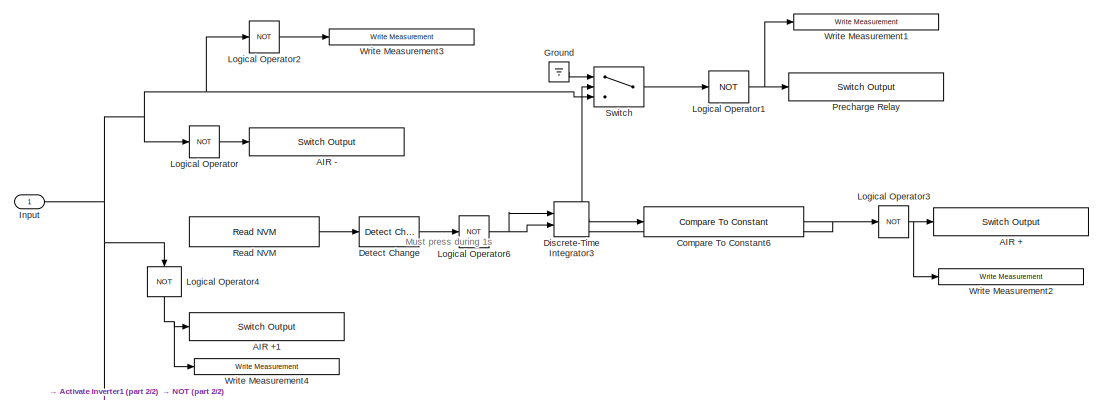
[diagram: Main/Main Functionalities/Tractive System/Triggered Subsystem1 - part 1/2, full width, top band]
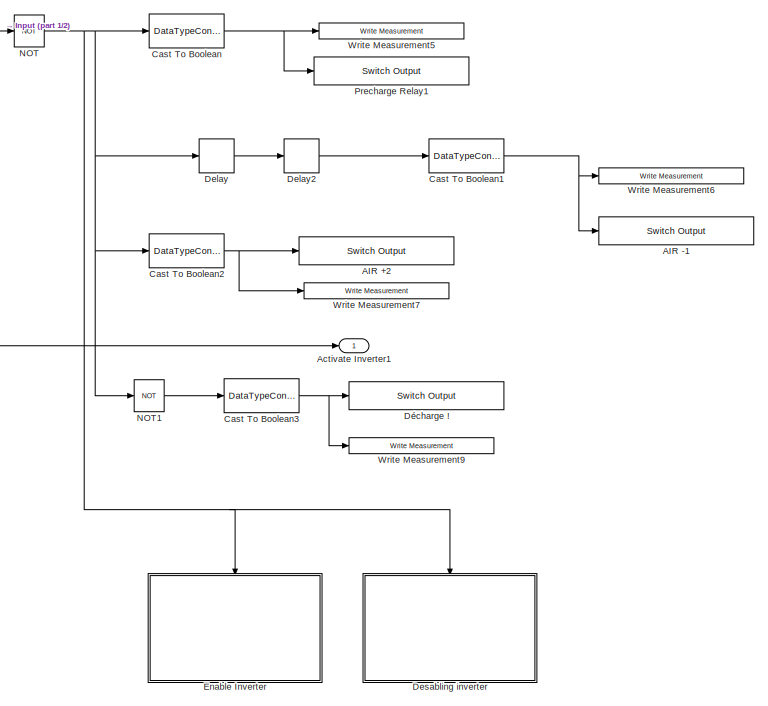
[diagram: Main/Main Functionalities/Tractive System/Triggered Subsystem1 - part 2/2, bottom center region]
BLOCK [SubSystem] Main/Main Functionalities/Tractive System/Triggered Subsystem1
  Ports = [1, 1]
  RequestExecContextInheritance = off
  TreatAsAtomicUnit = on
BLOCK [Reference] Main/Main Functionalities/Tractive System/Triggered Subsystem1/AIR +  REF=CoderSF_BSW_Libs/Digital I//O/Switch Output
  Commented = on
  Ports = [1]
  SourceBlock = CoderSF_BSW_Libs/Digital I//O/Switch Output
  SourceType = Switch Output
BLOCK [Reference] Main/Main Functionalities/Tractive System/Triggered Subsystem1/AIR +1  REF=CoderSF_BSW_Libs/Digital I//O/Switch Output
  Commented = on
  Ports = [1]
  SourceBlock = CoderSF_BSW_Libs/Digital I//O/Switch Output
  SourceType = Switch Output
BLOCK [Reference] Main/Main Functionalities/Tractive System/Triggered Subsystem1/AIR +2  REF=CoderSF_BSW_Libs/Digital I//O/Switch Output
  Ports = [1]
  SourceBlock = CoderSF_BSW_Libs/Digital I//O/Switch Output
  SourceType = Switch Output
BLOCK [Reference] Main/Main Functionalities/Tractive System/Triggered Subsystem1/AIR -  REF=CoderSF_BSW_Libs/Digital I//O/Switch Output
  Commented = on
  Ports = [1]
  SourceBlock = CoderSF_BSW_Libs/Digital I//O/Switch Output
  SourceType = Switch Output
BLOCK [Reference] Main/Main Functionalities/Tractive System/Triggered Subsystem1/AIR -1  REF=CoderSF_BSW_Libs/Digital I//O/Switch Output
  Ports = [1]
  SourceBlock = CoderSF_BSW_Libs/Digital I//O/Switch Output
  SourceType = Switch Output
BLOCK [Outport] Main/Main Functionalities/Tractive System/Triggered Subsystem1/Activate Inverter1
BLOCK [DataTypeConversion] Main/Main Functionalities/Tractive System/Triggered Subsystem1/Cast To Boolean
  OutDataTypeStr = boolean
  RndMeth = Floor
  SaturateOnIntegerOverflow = off
BLOCK [DataTypeConversion] Main/Main Functionalities/Tractive System/Triggered Subsystem1/Cast To Boolean1
  OutDataTypeStr = boolean
  RndMeth = Floor
  SaturateOnIntegerOverflow = off
BLOCK [DataTypeConversion] Main/Main Functionalities/Tractive System/Triggered Subsystem1/Cast To Boolean2
  OutDataTypeStr = boolean
  RndMeth = Floor
  SaturateOnIntegerOverflow = off
BLOCK [DataTypeConversion] Main/Main Functionalities/Tractive System/Triggered Subsystem1/Cast To Boolean3
  OutDataTypeStr = boolean
  RndMeth = Floor
  SaturateOnIntegerOverflow = off
BLOCK [Reference] Main/Main Functionalities/Tractive System/Triggered Subsystem1/Compare To Constant6  REF=simulink/Logic and Bit
Operations/Compare
To Constant
  Commented = on
  Ports = [1, 1]
  SourceBlock = simulink/Logic and Bit\nOperations/Compare\nTo Constant
  SourceProductBaseCode = SL
  SourceType = Compare To Constant
BLOCK [Delay] Main/Main Functionalities/Tractive System/Triggered Subsystem1/Delay
  DelayLength = 1000
  InputPortMap = u0
  Ports = [1, 1]
BLOCK [Delay] Main/Main Functionalities/Tractive System/Triggered Subsystem1/Delay2
  DelayLength = 1000
  InputPortMap = u0
  Ports = [1, 1]
BLOCK [SubSystem] Main/Main Functionalities/Tractive System/Triggered Subsystem1/Desabling inverter
  Ports = [0, 0, 0, 1]
  RequestExecContextInheritance = off
BLOCK [Constant] Main/Main Functionalities/Tractive System/Triggered Subsystem1/Desabling inverter/Constant
  OutDataTypeStr = uint8
  Value = hex2dec('51')
BLOCK [Constant] Main/Main Functionalities/Tractive System/Triggered Subsystem1/Desabling inverter/Constant1
  OutDataTypeStr = uint16
  Value = hex2dec('0004')
BLOCK [Reference] Main/Main Functionalities/Tractive System/Triggered Subsystem1/Desabling inverter/Pack Signals To CAN Data  REF=CoderSF_BSW_Libs/CAN/Pack Signals To CAN Data
  Ports = [2, 1]
  SourceBlock = CoderSF_BSW_Libs/CAN/Pack Signals To CAN Data
  SourceType = Pack Signals To CAN Data
BLOCK [Reference] Main/Main Functionalities/Tractive System/Triggered Subsystem1/Desabling inverter/Send CAN Data  REF=CoderSF_BSW_Libs/CAN/Send CAN Data
  Ports = [1]
  SourceBlock = CoderSF_BSW_Libs/CAN/Send CAN Data
  SourceType = Send CAN Data
BLOCK [TriggerPort] Main/Main Functionalities/Tractive System/Triggered Subsystem1/Desabling inverter/Trigger
  PortDimensions = 1
  Ports = []
  StatesWhenEnabling = held
  VariantControl = Variant
BLOCK [Reference] Main/Main Functionalities/Tractive System/Triggered Subsystem1/Detect Change  REF=simulink/Logic and Bit
Operations/Detect
Change
  Commented = on
  Ports = [1, 1]
  SourceBlock = simulink/Logic and Bit\nOperations/Detect\nChange
  SourceProductBaseCode = SL
  SourceType = Detect Change
BLOCK [DiscreteIntegrator] Main/Main Functionalities/Tractive System/Triggered Subsystem1/Discrete-Time Integrator3
  Commented = on
  ExternalReset = falling
  ICPrevOutput = DiscIntNeverNeededParam
  ICPrevScaledInput = DiscIntNeverNeededParam
  InitialConditionSetting = Auto
  OutDataTypeStr = Inherit: Inherit via back propagation
  Ports = [2, 1]
  SampleTime = -1
  UpperSaturationLimit = 12
BLOCK [Reference] Main/Main Functionalities/Tractive System/Triggered Subsystem1/Décharge !  REF=CoderSF_BSW_Libs/Digital I//O/Switch Output
  Ports = [1]
  SourceBlock = CoderSF_BSW_Libs/Digital I//O/Switch Output
  SourceType = Switch Output
BLOCK [SubSystem] Main/Main Functionalities/Tractive System/Triggered Subsystem1/Enable Inverter
  Commented = on
  Ports = [0, 0, 0, 1]
  RequestExecContextInheritance = off
BLOCK [Constant] Main/Main Functionalities/Tractive System/Triggered Subsystem1/Enable Inverter/Constant
  OutDataTypeStr = uint8
  Value = hex2dec('51')
BLOCK [Constant] Main/Main Functionalities/Tractive System/Triggered Subsystem1/Enable Inverter/Constant1
  OutDataTypeStr = uint16
  Value = hex2dec('0004')
BLOCK [Delay] Main/Main Functionalities/Tractive System/Triggered Subsystem1/Enable Inverter/Delay2
  DelayLength = 1000
  InputPortMap = u0
  Ports = [1, 1]
BLOCK [SubSystem] Main/Main Functionalities/Tractive System/Triggered Subsystem1/Enable Inverter/Desabling inverter
  Ports = [0, 0, 0, 1]
  RequestExecContextInheritance = off
BLOCK [Constant] Main/Main Functionalities/Tractive System/Triggered Subsystem1/Enable Inverter/Desabling inverter/Constant
  OutDataTypeStr = uint8
  Value = hex2dec('51')
BLOCK [Constant] Main/Main Functionalities/Tractive System/Triggered Subsystem1/Enable Inverter/Desabling inverter/Constant1
  OutDataTypeStr = uint16
  Value = hex2dec('0001')
BLOCK [Reference] Main/Main Functionalities/Tractive System/Triggered Subsystem1/Enable Inverter/Desabling inverter/Pack Signals To CAN Data  REF=CoderSF_BSW_Libs/CAN/Pack Signals To CAN Data
  Ports = [2, 1]
  SourceBlock = CoderSF_BSW_Libs/CAN/Pack Signals To CAN Data
  SourceType = Pack Signals To CAN Data
BLOCK [Reference] Main/Main Functionalities/Tractive System/Triggered Subsystem1/Enable Inverter/Desabling inverter/Send CAN Data  REF=CoderSF_BSW_Libs/CAN/Send CAN Data
  Ports = [1]
  SourceBlock = CoderSF_BSW_Libs/CAN/Send CAN Data
  SourceType = Send CAN Data
BLOCK [TriggerPort] Main/Main Functionalities/Tractive System/Triggered Subsystem1/Enable Inverter/Desabling inverter/Trigger
  PortDimensions = 1
  Ports = []
  StatesWhenEnabling = held
  TriggerType = either
  VariantControl = Variant
BLOCK [Reference] Main/Main Functionalities/Tractive System/Triggered Subsystem1/Enable Inverter/Pack Signals To CAN Data  REF=CoderSF_BSW_Libs/CAN/Pack Signals To CAN Data
  Ports = [2, 1]
  SourceBlock = CoderSF_BSW_Libs/CAN/Pack Signals To CAN Data
  SourceType = Pack Signals To CAN Data
BLOCK [Reference] Main/Main Functionalities/Tractive System/Triggered Subsystem1/Enable Inverter/Send CAN Data  REF=CoderSF_BSW_Libs/CAN/Send CAN Data
  Ports = [1]
  SourceBlock = CoderSF_BSW_Libs/CAN/Send CAN Data
  SourceType = Send CAN Data
BLOCK [TriggerPort] Main/Main Functionalities/Tractive System/Triggered Subsystem1/Enable Inverter/Trigger
  PortDimensions = 1
  Ports = []
  StatesWhenEnabling = held
  TriggerType = falling
  VariantControl = Variant
BLOCK [Ground] Main/Main Functionalities/Tractive System/Triggered Subsystem1/Ground
  Commented = on
BLOCK [Inport] Main/Main Functionalities/Tractive System/Triggered Subsystem1/Input
BLOCK [Logic] Main/Main Functionalities/Tractive System/Triggered Subsystem1/Logical Operator
  AllPortsSameDT = off
  Commented = on
  IconShape = distinctive
  Operator = NOT
  OutDataTypeStr = boolean
  Ports = [1, 1]
BLOCK [Logic] Main/Main Functionalities/Tractive System/Triggered Subsystem1/Logical Operator1
  AllPortsSameDT = off
  Commented = on
  IconShape = distinctive
  Operator = NOT
  OutDataTypeStr = boolean
  Ports = [1, 1]
BLOCK [Logic] Main/Main Functionalities/Tractive System/Triggered Subsystem1/Logical Operator2
  AllPortsSameDT = off
  Commented = on
  IconShape = distinctive
  Operator = NOT
  OutDataTypeStr = boolean
  Ports = [1, 1]
BLOCK [Logic] Main/Main Functionalities/Tractive System/Triggered Subsystem1/Logical Operator3
  AllPortsSameDT = off
  Commented = on
  IconShape = distinctive
  Operator = NOT
  OutDataTypeStr = boolean
  Ports = [1, 1]
BLOCK [Logic] Main/Main Functionalities/Tractive System/Triggered Subsystem1/Logical Operator4
  AllPortsSameDT = off
  Commented = on
  IconShape = distinctive
  NameLocation = left
  Operator = NOT
  OutDataTypeStr = boolean
  Ports = [1, 1]
BLOCK [Logic] Main/Main Functionalities/Tractive System/Triggered Subsystem1/Logical Operator6
  AllPortsSameDT = off
  Commented = on
  IconShape = distinctive
  Operator = NOT
  OutDataTypeStr = boolean
  Ports = [1, 1]
BLOCK [Logic] Main/Main Functionalities/Tractive System/Triggered Subsystem1/NOT
  AllPortsSameDT = off
  IconShape = distinctive
  Operator = NOT
  OutDataTypeStr = boolean
  Ports = [1, 1]
BLOCK [Logic] Main/Main Functionalities/Tractive System/Triggered Subsystem1/NOT1
  AllPortsSameDT = off
  IconShape = distinctive
  Operator = NOT
  OutDataTypeStr = boolean
  Ports = [1, 1]
BLOCK [Reference] Main/Main Functionalities/Tractive System/Triggered Subsystem1/Precharge Relay  REF=CoderSF_BSW_Libs/Digital I//O/Switch Output
  Commented = on
  Ports = [1]
  SourceBlock = CoderSF_BSW_Libs/Digital I//O/Switch Output
  SourceType = Switch Output
BLOCK [Reference] Main/Main Functionalities/Tractive System/Triggered Subsystem1/Precharge Relay1  REF=CoderSF_BSW_Libs/Digital I//O/Switch Output
  Ports = [1]
  SourceBlock = CoderSF_BSW_Libs/Digital I//O/Switch Output
  SourceType = Switch Output
BLOCK [Reference] Main/Main Functionalities/Tractive System/Triggered Subsystem1/Read NVM  REF=CoderSF_BSW_Libs/Non-volatile Memory Blocks/Read NVM
  Commented = on
  Ports = [0, 1]
  SourceBlock = CoderSF_BSW_Libs/Non-volatile Memory Blocks/Read NVM
  SourceType = Read NVM
BLOCK [Switch] Main/Main Functionalities/Tractive System/Triggered Subsystem1/Switch
  Commented = on
  InputSameDT = off
  SaturateOnIntegerOverflow = off
  Threshold = 1
BLOCK [Reference] Main/Main Functionalities/Tractive System/Triggered Subsystem1/Write Measurement1  REF=CoderSF_BSW_Libs/Calibration & Measurement/Write Measurement
  AttributesFormatString = type:%<variable_type> Dimensions:%<numD>
  Commented = on
  Ports = [1]
  SourceBlock = CoderSF_BSW_Libs/Calibration & Measurement/Write Measurement
  SourceType = Write Measurement
BLOCK [Reference] Main/Main Functionalities/Tractive System/Triggered Subsystem1/Write Measurement2  REF=CoderSF_BSW_Libs/Calibration & Measurement/Write Measurement
  AttributesFormatString = type:%<variable_type> Dimensions:%<numD>
  Commented = on
  Ports = [1]
  SourceBlock = CoderSF_BSW_Libs/Calibration & Measurement/Write Measurement
  SourceType = Write Measurement
BLOCK [Reference] Main/Main Functionalities/Tractive System/Triggered Subsystem1/Write Measurement3  REF=CoderSF_BSW_Libs/Calibration & Measurement/Write Measurement
  AttributesFormatString = type:%<variable_type> Dimensions:%<numD>
  Commented = on
  Ports = [1]
  SourceBlock = CoderSF_BSW_Libs/Calibration & Measurement/Write Measurement
  SourceType = Write Measurement
BLOCK [Reference] Main/Main Functionalities/Tractive System/Triggered Subsystem1/Write Measurement4  REF=CoderSF_BSW_Libs/Calibration & Measurement/Write Measurement
  AttributesFormatString = type:%<variable_type> Dimensions:%<numD>
  Commented = on
  Ports = [1]
  SourceBlock = CoderSF_BSW_Libs/Calibration & Measurement/Write Measurement
  SourceType = Write Measurement
BLOCK [Reference] Main/Main Functionalities/Tractive System/Triggered Subsystem1/Write Measurement5  REF=CoderSF_BSW_Libs/Calibration & Measurement/Write Measurement
  AttributesFormatString = type:%<variable_type> Dimensions:%<numD>
  Ports = [1]
  SourceBlock = CoderSF_BSW_Libs/Calibration & Measurement/Write Measurement
  SourceType = Write Measurement
BLOCK [Reference] Main/Main Functionalities/Tractive System/Triggered Subsystem1/Write Measurement6  REF=CoderSF_BSW_Libs/Calibration & Measurement/Write Measurement
  AttributesFormatString = type:%<variable_type> Dimensions:%<numD>
  Ports = [1]
  SourceBlock = CoderSF_BSW_Libs/Calibration & Measurement/Write Measurement
  SourceType = Write Measurement
BLOCK [Reference] Main/Main Functionalities/Tractive System/Triggered Subsystem1/Write Measurement7  REF=CoderSF_BSW_Libs/Calibration & Measurement/Write Measurement
  AttributesFormatString = type:%<variable_type> Dimensions:%<numD>
  Ports = [1]
  SourceBlock = CoderSF_BSW_Libs/Calibration & Measurement/Write Measurement
  SourceType = Write Measurement
BLOCK [Reference] Main/Main Functionalities/Tractive System/Triggered Subsystem1/Write Measurement9  REF=CoderSF_BSW_Libs/Calibration & Measurement/Write Measurement
  AttributesFormatString = type:%<variable_type> Dimensions:%<numD>
  Ports = [1]
  SourceBlock = CoderSF_BSW_Libs/Calibration & Measurement/Write Measurement
  SourceType = Write Measurement
BLOCK [SubSystem] Main/Main Functionalities/Tractive System/Triggered Subsystem2
  Commented = on
  Ports = [1]
  RequestExecContextInheritance = off
  TreatAsAtomicUnit = on
BLOCK [Reference] Main/Main Functionalities/Tractive System/Triggered Subsystem2/Compare To Constant6  REF=simulink/Logic and Bit
Operations/Compare
To Constant
  Ports = [1, 1]
  SourceBlock = simulink/Logic and Bit\nOperations/Compare\nTo Constant
  SourceProductBaseCode = SL
  SourceType = Compare To Constant
BLOCK [Reference] Main/Main Functionalities/Tractive System/Triggered Subsystem2/Detect Change  REF=simulink/Logic and Bit
Operations/Detect
Change
  Ports = [1, 1]
  SourceBlock = simulink/Logic and Bit\nOperations/Detect\nChange
  SourceProductBaseCode = SL
  SourceType = Detect Change
BLOCK [DiscreteIntegrator] Main/Main Functionalities/Tractive System/Triggered Subsystem2/Discrete-Time Integrator3
  ExternalReset = falling
  ICPrevOutput = DiscIntNeverNeededParam
  ICPrevScaledInput = DiscIntNeverNeededParam
  InitialConditionSetting = Auto
  OutDataTypeStr = Inherit: Inherit via back propagation
  Ports = [2, 1]
  SampleTime = -1
  UpperSaturationLimit = 12
BLOCK [Reference] Main/Main Functionalities/Tractive System/Triggered Subsystem2/Décharge !  REF=CoderSF_BSW_Libs/Digital I//O/Switch Output
  Ports = [1]
  SourceBlock = CoderSF_BSW_Libs/Digital I//O/Switch Output
  SourceType = Switch Output
BLOCK [Reference] Main/Main Functionalities/Tractive System/Triggered Subsystem2/HardWare Output DTC  REF=CoderSF_BSW_Libs/Diagnostic Blocks/HardWare Output DTC
  Ports = [0, 1]
  SourceBlock = CoderSF_BSW_Libs/Diagnostic Blocks/HardWare Output DTC
  SourceType = HardWare Output DTC
BLOCK [Reference] Main/Main Functionalities/Tractive System/Triggered Subsystem2/HardWare Output DTC1  REF=CoderSF_BSW_Libs/Diagnostic Blocks/HardWare Output DTC
  Ports = [0, 1]
  SourceBlock = CoderSF_BSW_Libs/Diagnostic Blocks/HardWare Output DTC
  SourceType = HardWare Output DTC
BLOCK [Reference] Main/Main Functionalities/Tractive System/Triggered Subsystem2/HardWare Output DTC2  REF=CoderSF_BSW_Libs/Diagnostic Blocks/HardWare Output DTC
  Ports = [0, 1]
  SourceBlock = CoderSF_BSW_Libs/Diagnostic Blocks/HardWare Output DTC
  SourceType = HardWare Output DTC
BLOCK [Reference] Main/Main Functionalities/Tractive System/Triggered Subsystem2/HardWare Output DTC3  REF=CoderSF_BSW_Libs/Diagnostic Blocks/HardWare Output DTC
  Ports = [0, 1]
  SourceBlock = CoderSF_BSW_Libs/Diagnostic Blocks/HardWare Output DTC
  SourceType = HardWare Output DTC
BLOCK [Reference] Main/Main Functionalities/Tractive System/Triggered Subsystem2/HardWare Output DTC4  REF=CoderSF_BSW_Libs/Diagnostic Blocks/HardWare Output DTC
  Ports = [0, 1]
  SourceBlock = CoderSF_BSW_Libs/Diagnostic Blocks/HardWare Output DTC
  SourceType = HardWare Output DTC
BLOCK [Reference] Main/Main Functionalities/Tractive System/Triggered Subsystem2/HardWare Output DTC5  REF=CoderSF_BSW_Libs/Diagnostic Blocks/HardWare Output DTC
  Ports = [0, 1]
  SourceBlock = CoderSF_BSW_Libs/Diagnostic Blocks/HardWare Output DTC
  SourceType = HardWare Output DTC
BLOCK [Reference] Main/Main Functionalities/Tractive System/Triggered Subsystem2/HardWare Output DTC6  REF=CoderSF_BSW_Libs/Diagnostic Blocks/HardWare Output DTC
  Ports = [0, 1]
  SourceBlock = CoderSF_BSW_Libs/Diagnostic Blocks/HardWare Output DTC
  SourceType = HardWare Output DTC
BLOCK [Inport] Main/Main Functionalities/Tractive System/Triggered Subsystem2/Input
BLOCK [Logic] Main/Main Functionalities/Tractive System/Triggered Subsystem2/Logical Operator
  AllPortsSameDT = off
  IconShape = distinctive
  Operator = NOT
  OutDataTypeStr = boolean
  Ports = [1, 1]
BLOCK [Logic] Main/Main Functionalities/Tractive System/Triggered Subsystem2/Logical Operator1
  AllPortsSameDT = off
  IconShape = distinctive
  Operator = NOT
  OutDataTypeStr = boolean
  Ports = [1, 1]
BLOCK [Logic] Main/Main Functionalities/Tractive System/Triggered Subsystem2/Logical Operator6
  AllPortsSameDT = off
  IconShape = distinctive
  Operator = NOT
  OutDataTypeStr = boolean
  Ports = [1, 1]
BLOCK [Reference] Main/Main Functionalities/Tractive System/Triggered Subsystem2/Power Control Output  REF=CoderSF_BSW_Libs/System Management Blocks/Power Control Output
  Ports = [1]
  SourceBlock = CoderSF_BSW_Libs/System Management Blocks/Power Control Output
  SourceType = Power Control Output
BLOCK [Reference] Main/Main Functionalities/Tractive System/Triggered Subsystem2/Read NVM  REF=CoderSF_BSW_Libs/Non-volatile Memory Blocks/Read NVM
  Ports = [0, 1]
  SourceBlock = CoderSF_BSW_Libs/Non-volatile Memory Blocks/Read NVM
  SourceType = Read NVM
BLOCK [Reference] Main/Main Functionalities/Tractive System/Triggered Subsystem2/Write Measurement1  REF=CoderSF_BSW_Libs/Calibration & Measurement/Write Measurement
  AttributesFormatString = type:%<variable_type> Dimensions:%<numD>
  Ports = [1]
  SourceBlock = CoderSF_BSW_Libs/Calibration & Measurement/Write Measurement
  SourceType = Write Measurement
BLOCK [Reference] Main/Main Functionalities/Tractive System/Triggered Subsystem2/Write Measurement2  REF=CoderSF_BSW_Libs/Calibration & Measurement/Write Measurement
  AttributesFormatString = type:%<variable_type> Dimensions:%<numD>
  Ports = [1]
  SourceBlock = CoderSF_BSW_Libs/Calibration & Measurement/Write Measurement
  SourceType = Write Measurement
BLOCK [Reference] Main/Main Functionalities/Tractive System/Triggered Subsystem2/Write Measurement3  REF=CoderSF_BSW_Libs/Calibration & Measurement/Write Measurement
  AttributesFormatString = type:%<variable_type> Dimensions:%<numD>
  Ports = [1]
  SourceBlock = CoderSF_BSW_Libs/Calibration & Measurement/Write Measurement
  SourceType = Write Measurement
BLOCK [Reference] Main/Main Functionalities/Tractive System/Triggered Subsystem2/Write Measurement4  REF=CoderSF_BSW_Libs/Calibration & Measurement/Write Measurement
  AttributesFormatString = type:%<variable_type> Dimensions:%<numD>
  Ports = [1]
  SourceBlock = CoderSF_BSW_Libs/Calibration & Measurement/Write Measurement
  SourceType = Write Measurement
BLOCK [Reference] Main/Main Functionalities/Tractive System/Triggered Subsystem2/Write Measurement5  REF=CoderSF_BSW_Libs/Calibration & Measurement/Write Measurement
  AttributesFormatString = type:%<variable_type> Dimensions:%<numD>
  Ports = [1]
  SourceBlock = CoderSF_BSW_Libs/Calibration & Measurement/Write Measurement
  SourceType = Write Measurement
BLOCK [Reference] Main/Main Functionalities/Tractive System/Triggered Subsystem2/Write Measurement6  REF=CoderSF_BSW_Libs/Calibration & Measurement/Write Measurement
  AttributesFormatString = type:%<variable_type> Dimensions:%<numD>
  Ports = [1]
  SourceBlock = CoderSF_BSW_Libs/Calibration & Measurement/Write Measurement
  SourceType = Write Measurement
BLOCK [Reference] Main/Main Functionalities/Tractive System/Triggered Subsystem2/Write Measurement7  REF=CoderSF_BSW_Libs/Calibration & Measurement/Write Measurement
  AttributesFormatString = type:%<variable_type> Dimensions:%<numD>
  Ports = [1]
  SourceBlock = CoderSF_BSW_Libs/Calibration & Measurement/Write Measurement
  SourceType = Write Measurement
BLOCK [Reference] Main/Main Functionalities/Tractive System/Triggered Subsystem2/Write Measurement9  REF=CoderSF_BSW_Libs/Calibration & Measurement/Write Measurement
  AttributesFormatString = type:%<variable_type> Dimensions:%<numD>
  Ports = [1]
  SourceBlock = CoderSF_BSW_Libs/Calibration & Measurement/Write Measurement
  SourceType = Write Measurement
BLOCK [Reference] Main/Main Functionalities/Tractive System/Write Measurement1  REF=CoderSF_BSW_Libs/Calibration & Measurement/Write Measurement
  AttributesFormatString = type:%<variable_type> Dimensions:%<numD>
  Ports = [1]
  SourceBlock = CoderSF_BSW_Libs/Calibration & Measurement/Write Measurement
  SourceType = Write Measurement
BLOCK [TriggerPort] Main/Main Functionalities/Trigger
  PortDimensions = 1
  Ports = []
  StatesWhenEnabling = held
  TriggerType = function-call
  VariantControl = Variant
BLOCK [Reference] Main/Task Trigger  REF=CoderSF_BSW_Libs/Task Scheduler/Task Trigger
  Ports = [0, 1]
  SourceBlock = CoderSF_BSW_Libs/Task Scheduler/Task Trigger
  SourceType = Task Trigger
BLOCK [Reference] Main/Task Trigger1  REF=CoderSF_BSW_Libs/Task Scheduler/Task Trigger
  Ports = [0, 1]
  Priority = 1
  SourceBlock = CoderSF_BSW_Libs/Task Scheduler/Task Trigger
  SourceType = Task Trigger
BLOCK [Reference] Power Management Example  REF=CoderSF_BSW_Libs/System Management Blocks/Power Management Example
  AttributesFormatString = Priority:%<Priority>
  Ports = []
  Priority = 1
  SourceBlock = CoderSF_BSW_Libs/System Management Blocks/Power Management Example
  SourceType = Power Management Example
ANNOTATION Main: Pas encore testé
ANNOTATION Main/CANbus Management: Treat the length of a Can message
ANNOTATION Main/CANbus Management/Asking data from the inverter/Value separation: These values will be sent one time
ANNOTATION Main/CANbus Management/Asking data from the inverter/Value separation/Repeatedly asked values: These values will be sent every 100ms
ANNOTATION Main/Main Functionalities/Acceleration Pedal Position Sensors/Check APPS Implausibility: Check if the implausibility persists for more than 100ms
ANNOTATION Main/Main Functionalities/Acceleration Pedal Position Sensors/Check APPS Implausibility: Check if there is an APPS implausibility (T 11.8.9)
ANNOTATION Main/Main Functionalities/Acceleration Pedal Position Sensors/Send Torque Command: 31 for Speed control (only for test purpose)
ANNOTATION Main/Main Functionalities/Acceleration Pedal Position Sensors/Send Torque Command: Send command to BAMOCAR
ANNOTATION Main/Main Functionalities/Ready to drive/Subsystem: Must press during 1s
ANNOTATION Main/Main Functionalities/Speed Sensor: Check if there is an APPS implausibility (T 11.8.9)
ANNOTATION Main/Main Functionalities/Speed Sensor: facteur de conversion
ANNOTATION Main/Main Functionalities/Tractive System: Not used, RFE always at 1
ANNOTATION Main/Main Functionalities/Tractive System: Temporaire
ANNOTATION Main/Main Functionalities/Tractive System/Subsystem: Must press during 1s
ANNOTATION Main/Main Functionalities/Tractive System/Triggered Subsystem1: Must press during 1s
LINE Main/CANbus Management/Asking data from the inverter/Data Type Conversion:1 -> Main/CANbus Management/Asking data from the inverter/Value separation:enable
LINE Main/CANbus Management/Asking data from the inverter/Signal Builder:1 -> Main/CANbus Management/Asking data from the inverter/Data Type Conversion:1
LINE Main/CANbus Management/Asking data from the inverter/Value separation/Compare To Constant10:1 -> Main/CANbus Management/Asking data from the inverter/Value separation/I_device:trigger
NET Main/CANbus Management/Asking data from the inverter/Value separation/Compare To Constant11:1 -> Main/CANbus Management/Asking data from the inverter/Value separation/I_200:trigger, Main/CANbus Management/Asking data from the inverter/Value separation/Repeatedly asked values:trigger
LINE Main/CANbus Management/Asking data from the inverter/Value separation/Compare To Constant12:1 -> Main/CANbus Management/Asking data from the inverter/Value separation/I_device1:trigger
LINE Main/CANbus Management/Asking data from the inverter/Value separation/Compare To Constant1:1 -> Main/CANbus Management/Asking data from the inverter/Value separation/N_Lim:trigger
LINE Main/CANbus Management/Asking data from the inverter/Value separation/Compare To Constant2:1 -> Main/CANbus Management/Asking data from the inverter/Value separation/N_Lim_pos:trigger
LINE Main/CANbus Management/Asking data from the inverter/Value separation/Compare To Constant3:1 -> Main/CANbus Management/Asking data from the inverter/Value separation/N_Lim_neg:trigger
LINE Main/CANbus Management/Asking data from the inverter/Value separation/Compare To Constant4:1 -> Main/CANbus Management/Asking data from the inverter/Value separation/N_R_Acc | M_R_Acc:trigger
LINE Main/CANbus Management/Asking data from the inverter/Value separation/Compare To Constant5:1 -> Main/CANbus Management/Asking data from the inverter/Value separation/N_R_Dec | M_R_Dec:trigger
LINE Main/CANbus Management/Asking data from the inverter/Value separation/Compare To Constant6:1 -> Main/CANbus Management/Asking data from the inverter/Value separation/SpeedRPMmax:trigger
LINE Main/CANbus Management/Asking data from the inverter/Value separation/Compare To Constant7:1 -> Main/CANbus Management/Asking data from the inverter/Value separation/I_max_eff:trigger
LINE Main/CANbus Management/Asking data from the inverter/Value separation/Compare To Constant8:1 -> Main/CANbus Management/Asking data from the inverter/Value separation/I_nom_eff:trigger
LINE Main/CANbus Management/Asking data from the inverter/Value separation/Compare To Constant9:1 -> Main/CANbus Management/Asking data from the inverter/Value separation/I_max_pk:trigger
LINE Main/CANbus Management/Asking data from the inverter/Value separation/Compare To Constant:1 -> Main/CANbus Management/Asking data from the inverter/Value separation/N_100:trigger
NET Main/CANbus Management/Asking data from the inverter/Value separation/Constant2:1 -> Main/CANbus Management/Asking data from the inverter/Value separation/I_200:1, Main/CANbus Management/Asking data from the inverter/Value separation/I_device1:1, Main/CANbus Management/Asking data from the inverter/Value separation/I_device:1, Main/CANbus Management/Asking data from the inverter/Value separation/I_max_eff:1, Main/CANbus Management/Asking data from the inverter/Value separation/I_max_pk:1, Main/CANbus Management/Asking data from the inverter/Value separation/I_nom_eff:1, Main/CANbus Management/Asking data from the inverter/Value separation/N_100:1, Main/CANbus Management/Asking data from the inverter/Value separation/N_Lim:1, Main/CANbus Management/Asking data from the inverter/Value separation/N_Lim_neg:1, Main/CANbus Management/Asking data from the inverter/Value separation/N_Lim_pos:1, Main/CANbus Management/Asking data from the inverter/Value separation/N_R_Acc | M_R_Acc:1, Main/CANbus Management/Asking data from the inverter/Value separation/N_R_Dec | M_R_Dec:1, Main/CANbus Management/Asking data from the inverter/Value separation/SpeedRPMmax:1
LINE Main/CANbus Management/Asking data from the inverter/Value separation/Constant:1 -> Main/CANbus Management/Asking data from the inverter/Value separation/Discrete-Time Integrator:1
NET Main/CANbus Management/Asking data from the inverter/Value separation/Discrete-Time Integrator:1 -> Main/CANbus Management/Asking data from the inverter/Value separation/Compare To Constant10:1, Main/CANbus Management/Asking data from the inverter/Value separation/Compare To Constant11:1, Main/CANbus Management/Asking data from the inverter/Value separation/Compare To Constant12:1, Main/CANbus Management/Asking data from the inverter/Value separation/Compare To Constant1:1, Main/CANbus Management/Asking data from the inverter/Value separation/Compare To Constant2:1, Main/CANbus Management/Asking data from the inverter/Value separation/Compare To Constant3:1, Main/CANbus Management/Asking data from the inverter/Value separation/Compare To Constant4:1, Main/CANbus Management/Asking data from the inverter/Value separation/Compare To Constant5:1, Main/CANbus Management/Asking data from the inverter/Value separation/Compare To Constant6:1, Main/CANbus Management/Asking data from the inverter/Value separation/Compare To Constant7:1, Main/CANbus Management/Asking data from the inverter/Value separation/Compare To Constant8:1, Main/CANbus Management/Asking data from the inverter/Value separation/Compare To Constant9:1, Main/CANbus Management/Asking data from the inverter/Value separation/Compare To Constant:1
LINE Main/CANbus Management/Asking data from the inverter/Value separation/I_200/Constant1:1 -> Main/CANbus Management/Asking data from the inverter/Value separation/I_200/Pack Signals To CAN Data:2
LINE Main/CANbus Management/Asking data from the inverter/Value separation/I_200/Constant:1 -> Main/CANbus Management/Asking data from the inverter/Value separation/I_200/Pack Signals To CAN Data:1
LINE Main/CANbus Management/Asking data from the inverter/Value separation/I_200/Pack Signals To CAN Data:1 -> Main/CANbus Management/Asking data from the inverter/Value separation/I_200/Send CAN Data:1
LINE Main/CANbus Management/Asking data from the inverter/Value separation/I_200/Time interval:1 -> Main/CANbus Management/Asking data from the inverter/Value separation/I_200/Pack Signals To CAN Data:3
LINE Main/CANbus Management/Asking data from the inverter/Value separation/I_device/Constant1:1 -> Main/CANbus Management/Asking data from the inverter/Value separation/I_device/Pack Signals To CAN Data:2
LINE Main/CANbus Management/Asking data from the inverter/Value separation/I_device/Constant:1 -> Main/CANbus Management/Asking data from the inverter/Value separation/I_device/Pack Signals To CAN Data:1
LINE Main/CANbus Management/Asking data from the inverter/Value separation/I_device/Pack Signals To CAN Data:1 -> Main/CANbus Management/Asking data from the inverter/Value separation/I_device/Send CAN Data:1
LINE Main/CANbus Management/Asking data from the inverter/Value separation/I_device/Time interval:1 -> Main/CANbus Management/Asking data from the inverter/Value separation/I_device/Pack Signals To CAN Data:3
LINE Main/CANbus Management/Asking data from the inverter/Value separation/I_device1/Constant1:1 -> Main/CANbus Management/Asking data from the inverter/Value separation/I_device1/Pack Signals To CAN Data:2
LINE Main/CANbus Management/Asking data from the inverter/Value separation/I_device1/Constant:1 -> Main/CANbus Management/Asking data from the inverter/Value separation/I_device1/Pack Signals To CAN Data:1
LINE Main/CANbus Management/Asking data from the inverter/Value separation/I_device1/Pack Signals To CAN Data:1 -> Main/CANbus Management/Asking data from the inverter/Value separation/I_device1/Send CAN Data:1
LINE Main/CANbus Management/Asking data from the inverter/Value separation/I_device1/Time interval:1 -> Main/CANbus Management/Asking data from the inverter/Value separation/I_device1/Pack Signals To CAN Data:3
LINE Main/CANbus Management/Asking data from the inverter/Value separation/I_max_eff/Constant1:1 -> Main/CANbus Management/Asking data from the inverter/Value separation/I_max_eff/Pack Signals To CAN Data:2
LINE Main/CANbus Management/Asking data from the inverter/Value separation/I_max_eff/Constant:1 -> Main/CANbus Management/Asking data from the inverter/Value separation/I_max_eff/Pack Signals To CAN Data:1
LINE Main/CANbus Management/Asking data from the inverter/Value separation/I_max_eff/Pack Signals To CAN Data:1 -> Main/CANbus Management/Asking data from the inverter/Value separation/I_max_eff/Send CAN Data:1
LINE Main/CANbus Management/Asking data from the inverter/Value separation/I_max_eff/Time interval:1 -> Main/CANbus Management/Asking data from the inverter/Value separation/I_max_eff/Pack Signals To CAN Data:3
LINE Main/CANbus Management/Asking data from the inverter/Value separation/I_max_pk/Constant1:1 -> Main/CANbus Management/Asking data from the inverter/Value separation/I_max_pk/Pack Signals To CAN Data:2
LINE Main/CANbus Management/Asking data from the inverter/Value separation/I_max_pk/Constant:1 -> Main/CANbus Management/Asking data from the inverter/Value separation/I_max_pk/Pack Signals To CAN Data:1
LINE Main/CANbus Management/Asking data from the inverter/Value separation/I_max_pk/Pack Signals To CAN Data:1 -> Main/CANbus Management/Asking data from the inverter/Value separation/I_max_pk/Send CAN Data:1
LINE Main/CANbus Management/Asking data from the inverter/Value separation/I_max_pk/Time interval:1 -> Main/CANbus Management/Asking data from the inverter/Value separation/I_max_pk/Pack Signals To CAN Data:3
LINE Main/CANbus Management/Asking data from the inverter/Value separation/I_nom_eff/Constant1:1 -> Main/CANbus Management/Asking data from the inverter/Value separation/I_nom_eff/Pack Signals To CAN Data:2
LINE Main/CANbus Management/Asking data from the inverter/Value separation/I_nom_eff/Constant:1 -> Main/CANbus Management/Asking data from the inverter/Value separation/I_nom_eff/Pack Signals To CAN Data:1
LINE Main/CANbus Management/Asking data from the inverter/Value separation/I_nom_eff/Pack Signals To CAN Data:1 -> Main/CANbus Management/Asking data from the inverter/Value separation/I_nom_eff/Send CAN Data:1
LINE Main/CANbus Management/Asking data from the inverter/Value separation/I_nom_eff/Time interval:1 -> Main/CANbus Management/Asking data from the inverter/Value separation/I_nom_eff/Pack Signals To CAN Data:3
LINE Main/CANbus Management/Asking data from the inverter/Value separation/N_100/Constant1:1 -> Main/CANbus Management/Asking data from the inverter/Value separation/N_100/Pack Signals To CAN Data:2
LINE Main/CANbus Management/Asking data from the inverter/Value separation/N_100/Constant:1 -> Main/CANbus Management/Asking data from the inverter/Value separation/N_100/Pack Signals To CAN Data:1
LINE Main/CANbus Management/Asking data from the inverter/Value separation/N_100/Pack Signals To CAN Data:1 -> Main/CANbus Management/Asking data from the inverter/Value separation/N_100/Send CAN Data:1
LINE Main/CANbus Management/Asking data from the inverter/Value separation/N_100/Time interval:1 -> Main/CANbus Management/Asking data from the inverter/Value separation/N_100/Pack Signals To CAN Data:3
LINE Main/CANbus Management/Asking data from the inverter/Value separation/N_Lim/Constant1:1 -> Main/CANbus Management/Asking data from the inverter/Value separation/N_Lim/Pack Signals To CAN Data:2
LINE Main/CANbus Management/Asking data from the inverter/Value separation/N_Lim/Constant:1 -> Main/CANbus Management/Asking data from the inverter/Value separation/N_Lim/Pack Signals To CAN Data:1
LINE Main/CANbus Management/Asking data from the inverter/Value separation/N_Lim/Pack Signals To CAN Data:1 -> Main/CANbus Management/Asking data from the inverter/Value separation/N_Lim/Send CAN Data:1
LINE Main/CANbus Management/Asking data from the inverter/Value separation/N_Lim/Time interval:1 -> Main/CANbus Management/Asking data from the inverter/Value separation/N_Lim/Pack Signals To CAN Data:3
LINE Main/CANbus Management/Asking data from the inverter/Value separation/N_Lim_neg/Constant1:1 -> Main/CANbus Management/Asking data from the inverter/Value separation/N_Lim_neg/Pack Signals To CAN Data:2
LINE Main/CANbus Management/Asking data from the inverter/Value separation/N_Lim_neg/Constant:1 -> Main/CANbus Management/Asking data from the inverter/Value separation/N_Lim_neg/Pack Signals To CAN Data:1
LINE Main/CANbus Management/Asking data from the inverter/Value separation/N_Lim_neg/Pack Signals To CAN Data:1 -> Main/CANbus Management/Asking data from the inverter/Value separation/N_Lim_neg/Send CAN Data:1
LINE Main/CANbus Management/Asking data from the inverter/Value separation/N_Lim_neg/Time interval:1 -> Main/CANbus Management/Asking data from the inverter/Value separation/N_Lim_neg/Pack Signals To CAN Data:3
LINE Main/CANbus Management/Asking data from the inverter/Value separation/N_Lim_pos/Constant1:1 -> Main/CANbus Management/Asking data from the inverter/Value separation/N_Lim_pos/Pack Signals To CAN Data:2
LINE Main/CANbus Management/Asking data from the inverter/Value separation/N_Lim_pos/Constant:1 -> Main/CANbus Management/Asking data from the inverter/Value separation/N_Lim_pos/Pack Signals To CAN Data:1
LINE Main/CANbus Management/Asking data from the inverter/Value separation/N_Lim_pos/Pack Signals To CAN Data:1 -> Main/CANbus Management/Asking data from the inverter/Value separation/N_Lim_pos/Send CAN Data:1
LINE Main/CANbus Management/Asking data from the inverter/Value separation/N_Lim_pos/Time interval:1 -> Main/CANbus Management/Asking data from the inverter/Value separation/N_Lim_pos/Pack Signals To CAN Data:3
LINE Main/CANbus Management/Asking data from the inverter/Value separation/N_R_Acc | M_R_Acc/Constant1:1 -> Main/CANbus Management/Asking data from the inverter/Value separation/N_R_Acc | M_R_Acc/Pack Signals To CAN Data:2
LINE Main/CANbus Management/Asking data from the inverter/Value separation/N_R_Acc | M_R_Acc/Constant:1 -> Main/CANbus Management/Asking data from the inverter/Value separation/N_R_Acc | M_R_Acc/Pack Signals To CAN Data:1
LINE Main/CANbus Management/Asking data from the inverter/Value separation/N_R_Acc | M_R_Acc/Pack Signals To CAN Data:1 -> Main/CANbus Management/Asking data from the inverter/Value separation/N_R_Acc | M_R_Acc/Send CAN Data:1
LINE Main/CANbus Management/Asking data from the inverter/Value separation/N_R_Acc | M_R_Acc/Time interval:1 -> Main/CANbus Management/Asking data from the inverter/Value separation/N_R_Acc | M_R_Acc/Pack Signals To CAN Data:3
LINE Main/CANbus Management/Asking data from the inverter/Value separation/N_R_Dec | M_R_Dec/Constant1:1 -> Main/CANbus Management/Asking data from the inverter/Value separation/N_R_Dec | M_R_Dec/Pack Signals To CAN Data:2
LINE Main/CANbus Management/Asking data from the inverter/Value separation/N_R_Dec | M_R_Dec/Constant:1 -> Main/CANbus Management/Asking data from the inverter/Value separation/N_R_Dec | M_R_Dec/Pack Signals To CAN Data:1
LINE Main/CANbus Management/Asking data from the inverter/Value separation/N_R_Dec | M_R_Dec/Pack Signals To CAN Data:1 -> Main/CANbus Management/Asking data from the inverter/Value separation/N_R_Dec | M_R_Dec/Send CAN Data:1
LINE Main/CANbus Management/Asking data from the inverter/Value separation/N_R_Dec | M_R_Dec/Time interval:1 -> Main/CANbus Management/Asking data from the inverter/Value separation/N_R_Dec | M_R_Dec/Pack Signals To CAN Data:3
NET Main/CANbus Management/Asking data from the inverter/Value separation/Repeatedly asked values/Constant1:1 -> Main/CANbus Management/Asking data from the inverter/Value separation/Repeatedly asked values/I_act_filt:1, Main/CANbus Management/Asking data from the inverter/Value separation/Repeatedly asked values/I_cmd:1, Main/CANbus Management/Asking data from the inverter/Value separation/Repeatedly asked values/N_act_filt:1, Main/CANbus Management/Asking data from the inverter/Value separation/Repeatedly asked values/T_IGBT:1, Main/CANbus Management/Asking data from the inverter/Value separation/Repeatedly asked values/T_air:1, Main/CANbus Management/Asking data from the inverter/Value separation/Repeatedly asked values/T_motor:1, Main/CANbus Management/Asking data from the inverter/Value separation/Repeatedly asked values/Vdc_bus:1
LINE Main/CANbus Management/Asking data from the inverter/Value separation/Repeatedly asked values/I_act_filt/Constant1:1 -> Main/CANbus Management/Asking data from the inverter/Value separation/Repeatedly asked values/I_act_filt/Pack Signals To CAN Data:2
LINE Main/CANbus Management/Asking data from the inverter/Value separation/Repeatedly asked values/I_act_filt/Constant:1 -> Main/CANbus Management/Asking data from the inverter/Value separation/Repeatedly asked values/I_act_filt/Pack Signals To CAN Data:1
LINE Main/CANbus Management/Asking data from the inverter/Value separation/Repeatedly asked values/I_act_filt/Pack Signals To CAN Data:1 -> Main/CANbus Management/Asking data from the inverter/Value separation/Repeatedly asked values/I_act_filt/Send CAN Data:1
LINE Main/CANbus Management/Asking data from the inverter/Value separation/Repeatedly asked values/I_act_filt/Time interval:1 -> Main/CANbus Management/Asking data from the inverter/Value separation/Repeatedly asked values/I_act_filt/Pack Signals To CAN Data:3
LINE Main/CANbus Management/Asking data from the inverter/Value separation/Repeatedly asked values/I_cmd/Constant1:1 -> Main/CANbus Management/Asking data from the inverter/Value separation/Repeatedly asked values/I_cmd/Pack Signals To CAN Data:2
LINE Main/CANbus Management/Asking data from the inverter/Value separation/Repeatedly asked values/I_cmd/Constant:1 -> Main/CANbus Management/Asking data from the inverter/Value separation/Repeatedly asked values/I_cmd/Pack Signals To CAN Data:1
LINE Main/CANbus Management/Asking data from the inverter/Value separation/Repeatedly asked values/I_cmd/Pack Signals To CAN Data:1 -> Main/CANbus Management/Asking data from the inverter/Value separation/Repeatedly asked values/I_cmd/Send CAN Data:1
LINE Main/CANbus Management/Asking data from the inverter/Value separation/Repeatedly asked values/I_cmd/Time interval:1 -> Main/CANbus Management/Asking data from the inverter/Value separation/Repeatedly asked values/I_cmd/Pack Signals To CAN Data:3
LINE Main/CANbus Management/Asking data from the inverter/Value separation/Repeatedly asked values/N_act_filt/Constant1:1 -> Main/CANbus Management/Asking data from the inverter/Value separation/Repeatedly asked values/N_act_filt/Pack Signals To CAN Data:2
LINE Main/CANbus Management/Asking data from the inverter/Value separation/Repeatedly asked values/N_act_filt/Constant:1 -> Main/CANbus Management/Asking data from the inverter/Value separation/Repeatedly asked values/N_act_filt/Pack Signals To CAN Data:1
LINE Main/CANbus Management/Asking data from the inverter/Value separation/Repeatedly asked values/N_act_filt/Pack Signals To CAN Data:1 -> Main/CANbus Management/Asking data from the inverter/Value separation/Repeatedly asked values/N_act_filt/Send CAN Data:1
LINE Main/CANbus Management/Asking data from the inverter/Value separation/Repeatedly asked values/N_act_filt/Time interval:1 -> Main/CANbus Management/Asking data from the inverter/Value separation/Repeatedly asked values/N_act_filt/Pack Signals To CAN Data:3
LINE Main/CANbus Management/Asking data from the inverter/Value separation/Repeatedly asked values/T_IGBT/Constant1:1 -> Main/CANbus Management/Asking data from the inverter/Value separation/Repeatedly asked values/T_IGBT/Pack Signals To CAN Data:2
LINE Main/CANbus Management/Asking data from the inverter/Value separation/Repeatedly asked values/T_IGBT/Constant:1 -> Main/CANbus Management/Asking data from the inverter/Value separation/Repeatedly asked values/T_IGBT/Pack Signals To CAN Data:1
LINE Main/CANbus Management/Asking data from the inverter/Value separation/Repeatedly asked values/T_IGBT/Pack Signals To CAN Data:1 -> Main/CANbus Management/Asking data from the inverter/Value separation/Repeatedly asked values/T_IGBT/Send CAN Data:1
LINE Main/CANbus Management/Asking data from the inverter/Value separation/Repeatedly asked values/T_IGBT/Time interval:1 -> Main/CANbus Management/Asking data from the inverter/Value separation/Repeatedly asked values/T_IGBT/Pack Signals To CAN Data:3
LINE Main/CANbus Management/Asking data from the inverter/Value separation/Repeatedly asked values/T_air/Constant1:1 -> Main/CANbus Management/Asking data from the inverter/Value separation/Repeatedly asked values/T_air/Pack Signals To CAN Data:2
LINE Main/CANbus Management/Asking data from the inverter/Value separation/Repeatedly asked values/T_air/Constant:1 -> Main/CANbus Management/Asking data from the inverter/Value separation/Repeatedly asked values/T_air/Pack Signals To CAN Data:1
LINE Main/CANbus Management/Asking data from the inverter/Value separation/Repeatedly asked values/T_air/Pack Signals To CAN Data:1 -> Main/CANbus Management/Asking data from the inverter/Value separation/Repeatedly asked values/T_air/Send CAN Data:1
LINE Main/CANbus Management/Asking data from the inverter/Value separation/Repeatedly asked values/T_air/Time interval:1 -> Main/CANbus Management/Asking data from the inverter/Value separation/Repeatedly asked values/T_air/Pack Signals To CAN Data:3
LINE Main/CANbus Management/Asking data from the inverter/Value separation/Repeatedly asked values/T_motor/Constant1:1 -> Main/CANbus Management/Asking data from the inverter/Value separation/Repeatedly asked values/T_motor/Pack Signals To CAN Data:2
LINE Main/CANbus Management/Asking data from the inverter/Value separation/Repeatedly asked values/T_motor/Constant:1 -> Main/CANbus Management/Asking data from the inverter/Value separation/Repeatedly asked values/T_motor/Pack Signals To CAN Data:1
LINE Main/CANbus Management/Asking data from the inverter/Value separation/Repeatedly asked values/T_motor/Pack Signals To CAN Data:1 -> Main/CANbus Management/Asking data from the inverter/Value separation/Repeatedly asked values/T_motor/Send CAN Data:1
LINE Main/CANbus Management/Asking data from the inverter/Value separation/Repeatedly asked values/T_motor/Time interval:1 -> Main/CANbus Management/Asking data from the inverter/Value separation/Repeatedly asked values/T_motor/Pack Signals To CAN Data:3
LINE Main/CANbus Management/Asking data from the inverter/Value separation/Repeatedly asked values/Vdc_bus/Constant1:1 -> Main/CANbus Management/Asking data from the inverter/Value separation/Repeatedly asked values/Vdc_bus/Pack Signals To CAN Data:2
LINE Main/CANbus Management/Asking data from the inverter/Value separation/Repeatedly asked values/Vdc_bus/Constant:1 -> Main/CANbus Management/Asking data from the inverter/Value separation/Repeatedly asked values/Vdc_bus/Pack Signals To CAN Data:1
LINE Main/CANbus Management/Asking data from the inverter/Value separation/Repeatedly asked values/Vdc_bus/Pack Signals To CAN Data:1 -> Main/CANbus Management/Asking data from the inverter/Value separation/Repeatedly asked values/Vdc_bus/Send CAN Data:1
LINE Main/CANbus Management/Asking data from the inverter/Value separation/Repeatedly asked values/Vdc_bus/Time interval:1 -> Main/CANbus Management/Asking data from the inverter/Value separation/Repeatedly asked values/Vdc_bus/Pack Signals To CAN Data:3
LINE Main/CANbus Management/Asking data from the inverter/Value separation/SpeedRPMmax/Constant1:1 -> Main/CANbus Management/Asking data from the inverter/Value separation/SpeedRPMmax/Pack Signals To CAN Data:2
LINE Main/CANbus Management/Asking data from the inverter/Value separation/SpeedRPMmax/Constant:1 -> Main/CANbus Management/Asking data from the inverter/Value separation/SpeedRPMmax/Pack Signals To CAN Data:1
LINE Main/CANbus Management/Asking data from the inverter/Value separation/SpeedRPMmax/Pack Signals To CAN Data:1 -> Main/CANbus Management/Asking data from the inverter/Value separation/SpeedRPMmax/Send CAN Data:1
LINE Main/CANbus Management/Asking data from the inverter/Value separation/SpeedRPMmax/Time interval:1 -> Main/CANbus Management/Asking data from the inverter/Value separation/SpeedRPMmax/Pack Signals To CAN Data:3
LINE Main/CANbus Management/Can treatment if len=4 or 5/Data Type Conversion:1 -> Main/CANbus Management/Can treatment if len=4 or 5/Write Measurement1:1
NET Main/CANbus Management/Can treatment if len=4 or 5/Data:1 -> Main/CANbus Management/Can treatment if len=4 or 5/I_200:1, Main/CANbus Management/Can treatment if len=4 or 5/I_act_filt:1, Main/CANbus Management/Can treatment if len=4 or 5/I_cmd:1, Main/CANbus Management/Can treatment if len=4 or 5/I_device:1, Main/CANbus Management/Can treatment if len=4 or 5/I_max_eff:1, Main/CANbus Management/Can treatment if len=4 or 5/I_max_pk:1, Main/CANbus Management/Can treatment if len=4 or 5/I_nom_eff:1, Main/CANbus Management/Can treatment if len=4 or 5/N_100:1, Main/CANbus Management/Can treatment if len=4 or 5/N_Lim:1, Main/CANbus Management/Can treatment if len=4 or 5/N_Lim_neg:1, Main/CANbus Management/Can treatment if len=4 or 5/N_Lim_pos:1, Main/CANbus Management/Can treatment if len=4 or 5/N_act_filt:1, Main/CANbus Management/Can treatment if len=4 or 5/SpeedRPMmax:1, Main/CANbus Management/Can treatment if len=4 or 5/T_IGBT:1, Main/CANbus Management/Can treatment if len=4 or 5/T_air:1, Main/CANbus Management/Can treatment if len=4 or 5/T_motor:1, Main/CANbus Management/Can treatment if len=4 or 5/Vdc_bus:1, Main/CANbus Management/Can treatment if len=4 or 5/Write Measurement:1
LINE Main/CANbus Management/Can treatment if len=4 or 5/I_200/Data Type Conversion:1 -> Main/CANbus Management/Can treatment if len=4 or 5/I_200/Write and Read Measurement:1
LINE Main/CANbus Management/Can treatment if len=4 or 5/I_200/Data:1 -> Main/CANbus Management/Can treatment if len=4 or 5/I_200/Data Type Conversion:1
LINE Main/CANbus Management/Can treatment if len=4 or 5/I_200/Write and Read Measurement:1 -> Main/CANbus Management/Can treatment if len=4 or 5/I_200/Write NVM:1
LINE Main/CANbus Management/Can treatment if len=4 or 5/I_act_filt/Data Type Conversion:1 -> Main/CANbus Management/Can treatment if len=4 or 5/I_act_filt/Write and Read Measurement:1
LINE Main/CANbus Management/Can treatment if len=4 or 5/I_act_filt/Data:1 -> Main/CANbus Management/Can treatment if len=4 or 5/I_act_filt/Data Type Conversion:1
LINE Main/CANbus Management/Can treatment if len=4 or 5/I_act_filt/Write and Read Measurement:1 -> Main/CANbus Management/Can treatment if len=4 or 5/I_act_filt/Write NVM:1
LINE Main/CANbus Management/Can treatment if len=4 or 5/I_cmd/Data Type Conversion:1 -> Main/CANbus Management/Can treatment if len=4 or 5/I_cmd/Write and Read Measurement:1
LINE Main/CANbus Management/Can treatment if len=4 or 5/I_cmd/Data:1 -> Main/CANbus Management/Can treatment if len=4 or 5/I_cmd/Data Type Conversion:1
LINE Main/CANbus Management/Can treatment if len=4 or 5/I_cmd/Write and Read Measurement:1 -> Main/CANbus Management/Can treatment if len=4 or 5/I_cmd/Write NVM:1
LINE Main/CANbus Management/Can treatment if len=4 or 5/I_device/Data Type Conversion:1 -> Main/CANbus Management/Can treatment if len=4 or 5/I_device/Write and Read Measurement:1
LINE Main/CANbus Management/Can treatment if len=4 or 5/I_device/Data:1 -> Main/CANbus Management/Can treatment if len=4 or 5/I_device/Data Type Conversion:1
LINE Main/CANbus Management/Can treatment if len=4 or 5/I_device/Write and Read Measurement:1 -> Main/CANbus Management/Can treatment if len=4 or 5/I_device/Write NVM:1
LINE Main/CANbus Management/Can treatment if len=4 or 5/I_max_eff/Data Type Conversion:1 -> Main/CANbus Management/Can treatment if len=4 or 5/I_max_eff/Write and Read Measurement:1
LINE Main/CANbus Management/Can treatment if len=4 or 5/I_max_eff/Data:1 -> Main/CANbus Management/Can treatment if len=4 or 5/I_max_eff/Data Type Conversion:1
LINE Main/CANbus Management/Can treatment if len=4 or 5/I_max_eff/Write and Read Measurement:1 -> Main/CANbus Management/Can treatment if len=4 or 5/I_max_eff/Write NVM:1
LINE Main/CANbus Management/Can treatment if len=4 or 5/I_max_pk/Data Type Conversion:1 -> Main/CANbus Management/Can treatment if len=4 or 5/I_max_pk/Write and Read Measurement:1
LINE Main/CANbus Management/Can treatment if len=4 or 5/I_max_pk/Data:1 -> Main/CANbus Management/Can treatment if len=4 or 5/I_max_pk/Data Type Conversion:1
LINE Main/CANbus Management/Can treatment if len=4 or 5/I_max_pk/Write and Read Measurement:1 -> Main/CANbus Management/Can treatment if len=4 or 5/I_max_pk/Write NVM:1
LINE Main/CANbus Management/Can treatment if len=4 or 5/I_nom_eff/Data Type Conversion:1 -> Main/CANbus Management/Can treatment if len=4 or 5/I_nom_eff/Write and Read Measurement:1
LINE Main/CANbus Management/Can treatment if len=4 or 5/I_nom_eff/Data:1 -> Main/CANbus Management/Can treatment if len=4 or 5/I_nom_eff/Data Type Conversion:1
LINE Main/CANbus Management/Can treatment if len=4 or 5/I_nom_eff/Write and Read Measurement:1 -> Main/CANbus Management/Can treatment if len=4 or 5/I_nom_eff/Write NVM:1
LINE Main/CANbus Management/Can treatment if len=4 or 5/N_100/Data Type Conversion:1 -> Main/CANbus Management/Can treatment if len=4 or 5/N_100/Write and Read Measurement:1
LINE Main/CANbus Management/Can treatment if len=4 or 5/N_100/Data:1 -> Main/CANbus Management/Can treatment if len=4 or 5/N_100/Data Type Conversion:1
LINE Main/CANbus Management/Can treatment if len=4 or 5/N_100/Write and Read Measurement:1 -> Main/CANbus Management/Can treatment if len=4 or 5/N_100/Write NVM:1
LINE Main/CANbus Management/Can treatment if len=4 or 5/N_Lim/Data Type Conversion:1 -> Main/CANbus Management/Can treatment if len=4 or 5/N_Lim/Write and Read Measurement:1
LINE Main/CANbus Management/Can treatment if len=4 or 5/N_Lim/Data:1 -> Main/CANbus Management/Can treatment if len=4 or 5/N_Lim/Data Type Conversion:1
LINE Main/CANbus Management/Can treatment if len=4 or 5/N_Lim/Write and Read Measurement:1 -> Main/CANbus Management/Can treatment if len=4 or 5/N_Lim/Write NVM:1
LINE Main/CANbus Management/Can treatment if len=4 or 5/N_Lim_neg/Data Type Conversion:1 -> Main/CANbus Management/Can treatment if len=4 or 5/N_Lim_neg/Write and Read Measurement:1
LINE Main/CANbus Management/Can treatment if len=4 or 5/N_Lim_neg/Data:1 -> Main/CANbus Management/Can treatment if len=4 or 5/N_Lim_neg/Data Type Conversion:1
LINE Main/CANbus Management/Can treatment if len=4 or 5/N_Lim_neg/Write and Read Measurement:1 -> Main/CANbus Management/Can treatment if len=4 or 5/N_Lim_neg/Write NVM:1
LINE Main/CANbus Management/Can treatment if len=4 or 5/N_Lim_pos/Data Type Conversion:1 -> Main/CANbus Management/Can treatment if len=4 or 5/N_Lim_pos/Write and Read Measurement:1
LINE Main/CANbus Management/Can treatment if len=4 or 5/N_Lim_pos/Data:1 -> Main/CANbus Management/Can treatment if len=4 or 5/N_Lim_pos/Data Type Conversion:1
LINE Main/CANbus Management/Can treatment if len=4 or 5/N_Lim_pos/Write and Read Measurement:1 -> Main/CANbus Management/Can treatment if len=4 or 5/N_Lim_pos/Write NVM:1
LINE Main/CANbus Management/Can treatment if len=4 or 5/N_act_filt/Data Type Conversion:1 -> Main/CANbus Management/Can treatment if len=4 or 5/N_act_filt/Write and Read Measurement:1
LINE Main/CANbus Management/Can treatment if len=4 or 5/N_act_filt/Data:1 -> Main/CANbus Management/Can treatment if len=4 or 5/N_act_filt/Data Type Conversion:1
LINE Main/CANbus Management/Can treatment if len=4 or 5/N_act_filt/Write and Read Measurement:1 -> Main/CANbus Management/Can treatment if len=4 or 5/N_act_filt/Write NVM:1
LINE Main/CANbus Management/Can treatment if len=4 or 5/Read CAN Error State:1 -> Main/CANbus Management/Can treatment if len=4 or 5/Write Measurement2:1
NET Main/CANbus Management/Can treatment if len=4 or 5/RegID:1 -> Main/CANbus Management/Can treatment if len=4 or 5/Data Type Conversion:1, Main/CANbus Management/Can treatment if len=4 or 5/Switch Case:1
LINE Main/CANbus Management/Can treatment if len=4 or 5/SpeedRPMmax/Data Type Conversion:1 -> Main/CANbus Management/Can treatment if len=4 or 5/SpeedRPMmax/Write and Read Measurement:1
LINE Main/CANbus Management/Can treatment if len=4 or 5/SpeedRPMmax/Data:1 -> Main/CANbus Management/Can treatment if len=4 or 5/SpeedRPMmax/Data Type Conversion:1
LINE Main/CANbus Management/Can treatment if len=4 or 5/SpeedRPMmax/Write and Read Measurement:1 -> Main/CANbus Management/Can treatment if len=4 or 5/SpeedRPMmax/Write NVM:1
LINE Main/CANbus Management/Can treatment if len=4 or 5/Switch Case:1 -> Main/CANbus Management/Can treatment if len=4 or 5/N_100:ifaction
LINE Main/CANbus Management/Can treatment if len=4 or 5/Switch Case:10 -> Main/CANbus Management/Can treatment if len=4 or 5/I_nom_eff:ifaction
LINE Main/CANbus Management/Can treatment if len=4 or 5/Switch Case:11 -> Main/CANbus Management/Can treatment if len=4 or 5/I_max_pk:ifaction
LINE Main/CANbus Management/Can treatment if len=4 or 5/Switch Case:12 -> Main/CANbus Management/Can treatment if len=4 or 5/I_device:ifaction
LINE Main/CANbus Management/Can treatment if len=4 or 5/Switch Case:13 -> Main/CANbus Management/Can treatment if len=4 or 5/I_200:ifaction
LINE Main/CANbus Management/Can treatment if len=4 or 5/Switch Case:14 -> Main/CANbus Management/Can treatment if len=4 or 5/Vdc_bus:ifaction
LINE Main/CANbus Management/Can treatment if len=4 or 5/Switch Case:15 -> Main/CANbus Management/Can treatment if len=4 or 5/I_act_filt:ifaction
LINE Main/CANbus Management/Can treatment if len=4 or 5/Switch Case:16 -> Main/CANbus Management/Can treatment if len=4 or 5/I_cmd:ifaction
LINE Main/CANbus Management/Can treatment if len=4 or 5/Switch Case:17 -> Main/CANbus Management/Can treatment if len=4 or 5/T_IGBT:ifaction
LINE Main/CANbus Management/Can treatment if len=4 or 5/Switch Case:18 -> Main/CANbus Management/Can treatment if len=4 or 5/T_motor:ifaction
LINE Main/CANbus Management/Can treatment if len=4 or 5/Switch Case:19 -> Main/CANbus Management/Can treatment if len=4 or 5/T_air:ifaction
LINE Main/CANbus Management/Can treatment if len=4 or 5/Switch Case:2 -> Main/CANbus Management/Can treatment if len=4 or 5/N_Lim:ifaction
LINE Main/CANbus Management/Can treatment if len=4 or 5/Switch Case:20 -> Main/CANbus Management/Can treatment if len=4 or 5/Terminator:1
LINE Main/CANbus Management/Can treatment if len=4 or 5/Switch Case:3 -> Main/CANbus Management/Can treatment if len=4 or 5/N_Lim_pos:ifaction
LINE Main/CANbus Management/Can treatment if len=4 or 5/Switch Case:4 -> Main/CANbus Management/Can treatment if len=4 or 5/N_Lim_neg:ifaction
LINE Main/CANbus Management/Can treatment if len=4 or 5/Switch Case:5 -> Main/CANbus Management/Can treatment if len=4 or 5/Terminator1:1
LINE Main/CANbus Management/Can treatment if len=4 or 5/Switch Case:6 -> Main/CANbus Management/Can treatment if len=4 or 5/Terminator2:1
LINE Main/CANbus Management/Can treatment if len=4 or 5/Switch Case:7 -> Main/CANbus Management/Can treatment if len=4 or 5/SpeedRPMmax:ifaction
LINE Main/CANbus Management/Can treatment if len=4 or 5/Switch Case:8 -> Main/CANbus Management/Can treatment if len=4 or 5/N_act_filt:ifaction
LINE Main/CANbus Management/Can treatment if len=4 or 5/Switch Case:9 -> Main/CANbus Management/Can treatment if len=4 or 5/I_max_eff:ifaction
LINE Main/CANbus Management/Can treatment if len=4 or 5/T_IGBT/Data Type Conversion:1 -> Main/CANbus Management/Can treatment if len=4 or 5/T_IGBT/Write and Read Measurement:1
LINE Main/CANbus Management/Can treatment if len=4 or 5/T_IGBT/Data:1 -> Main/CANbus Management/Can treatment if len=4 or 5/T_IGBT/Data Type Conversion:1
LINE Main/CANbus Management/Can treatment if len=4 or 5/T_IGBT/Write and Read Measurement:1 -> Main/CANbus Management/Can treatment if len=4 or 5/T_IGBT/Write NVM:1
LINE Main/CANbus Management/Can treatment if len=4 or 5/T_air/Data Type Conversion:1 -> Main/CANbus Management/Can treatment if len=4 or 5/T_air/Write and Read Measurement:1
LINE Main/CANbus Management/Can treatment if len=4 or 5/T_air/Data:1 -> Main/CANbus Management/Can treatment if len=4 or 5/T_air/Data Type Conversion:1
LINE Main/CANbus Management/Can treatment if len=4 or 5/T_air/Write and Read Measurement:1 -> Main/CANbus Management/Can treatment if len=4 or 5/T_air/Write NVM:1
LINE Main/CANbus Management/Can treatment if len=4 or 5/T_motor/Data Type Conversion:1 -> Main/CANbus Management/Can treatment if len=4 or 5/T_motor/Write and Read Measurement:1
LINE Main/CANbus Management/Can treatment if len=4 or 5/T_motor/Data:1 -> Main/CANbus Management/Can treatment if len=4 or 5/T_motor/Data Type Conversion:1
LINE Main/CANbus Management/Can treatment if len=4 or 5/T_motor/Write and Read Measurement:1 -> Main/CANbus Management/Can treatment if len=4 or 5/T_motor/Write NVM:1
LINE Main/CANbus Management/Can treatment if len=4 or 5/Vdc_bus/Data Type Conversion:1 -> Main/CANbus Management/Can treatment if len=4 or 5/Vdc_bus/Write and Read Measurement:1
LINE Main/CANbus Management/Can treatment if len=4 or 5/Vdc_bus/Data:1 -> Main/CANbus Management/Can treatment if len=4 or 5/Vdc_bus/Data Type Conversion:1
LINE Main/CANbus Management/Can treatment if len=4 or 5/Vdc_bus/Write and Read Measurement:1 -> Main/CANbus Management/Can treatment if len=4 or 5/Vdc_bus/Write NVM:1
NET Main/CANbus Management/Can treatment if len=6/Data:1 -> Main/CANbus Management/Can treatment if len=6/N_R_Acc | M R_Acc:1, Main/CANbus Management/Can treatment if len=6/N_R_Dec | M_R_Dec:1
LINE Main/CANbus Management/Can treatment if len=6/N_R_Acc | M R_Acc/Data Type Conversion1:1 -> Main/CANbus Management/Can treatment if len=6/N_R_Acc | M R_Acc/Write and Read Measurement1:1
LINE Main/CANbus Management/Can treatment if len=6/N_R_Acc | M R_Acc/Data Type Conversion2:1 -> Main/CANbus Management/Can treatment if len=6/N_R_Acc | M R_Acc/Write and Read Measurement:1
NET Main/CANbus Management/Can treatment if len=6/N_R_Acc | M R_Acc/Data:1 -> Main/CANbus Management/Can treatment if len=6/N_R_Acc | M R_Acc/Extract Bits1:1, Main/CANbus Management/Can treatment if len=6/N_R_Acc | M R_Acc/Extract Bits:1
LINE Main/CANbus Management/Can treatment if len=6/N_R_Acc | M R_Acc/Extract Bits1:1 -> Main/CANbus Management/Can treatment if len=6/N_R_Acc | M R_Acc/Data Type Conversion1:1
LINE Main/CANbus Management/Can treatment if len=6/N_R_Acc | M R_Acc/Extract Bits:1 -> Main/CANbus Management/Can treatment if len=6/N_R_Acc | M R_Acc/Data Type Conversion2:1
LINE Main/CANbus Management/Can treatment if len=6/N_R_Acc | M R_Acc/Write and Read Measurement1:1 -> Main/CANbus Management/Can treatment if len=6/N_R_Acc | M R_Acc/Write NVM1:1
LINE Main/CANbus Management/Can treatment if len=6/N_R_Acc | M R_Acc/Write and Read Measurement:1 -> Main/CANbus Management/Can treatment if len=6/N_R_Acc | M R_Acc/Write NVM:1
LINE Main/CANbus Management/Can treatment if len=6/N_R_Dec | M_R_Dec/Data Type Conversion1:1 -> Main/CANbus Management/Can treatment if len=6/N_R_Dec | M_R_Dec/Write and Read Measurement1:1
LINE Main/CANbus Management/Can treatment if len=6/N_R_Dec | M_R_Dec/Data Type Conversion2:1 -> Main/CANbus Management/Can treatment if len=6/N_R_Dec | M_R_Dec/Write and Read Measurement:1
NET Main/CANbus Management/Can treatment if len=6/N_R_Dec | M_R_Dec/Data:1 -> Main/CANbus Management/Can treatment if len=6/N_R_Dec | M_R_Dec/Extract Bits1:1, Main/CANbus Management/Can treatment if len=6/N_R_Dec | M_R_Dec/Extract Bits:1
LINE Main/CANbus Management/Can treatment if len=6/N_R_Dec | M_R_Dec/Extract Bits1:1 -> Main/CANbus Management/Can treatment if len=6/N_R_Dec | M_R_Dec/Data Type Conversion1:1
LINE Main/CANbus Management/Can treatment if len=6/N_R_Dec | M_R_Dec/Extract Bits:1 -> Main/CANbus Management/Can treatment if len=6/N_R_Dec | M_R_Dec/Data Type Conversion2:1
LINE Main/CANbus Management/Can treatment if len=6/N_R_Dec | M_R_Dec/Write and Read Measurement1:1 -> Main/CANbus Management/Can treatment if len=6/N_R_Dec | M_R_Dec/Write NVM1:1
LINE Main/CANbus Management/Can treatment if len=6/N_R_Dec | M_R_Dec/Write and Read Measurement:1 -> Main/CANbus Management/Can treatment if len=6/N_R_Dec | M_R_Dec/Write NVM:1
LINE Main/CANbus Management/Can treatment if len=6/RegID:1 -> Main/CANbus Management/Can treatment if len=6/Switch Case:1
LINE Main/CANbus Management/Can treatment if len=6/Switch Case:1 -> Main/CANbus Management/Can treatment if len=6/N_R_Acc | M R_Acc:ifaction
LINE Main/CANbus Management/Can treatment if len=6/Switch Case:2 -> Main/CANbus Management/Can treatment if len=6/N_R_Dec | M_R_Dec:ifaction
LINE Main/CANbus Management/Can treatment if len=6/Switch Case:3 -> Main/CANbus Management/Can treatment if len=6/Terminator:1
LINE Main/CANbus Management/Initialization/Constant1:1 -> Main/CANbus Management/Initialization/FRG//RUN:1
LINE Main/CANbus Management/Initialization/Constant2:1 -> Main/CANbus Management/Initialization/Power Control Output:1
LINE Main/CANbus Management/Initialization/Disabling the inverter/Constant1:1 -> Main/CANbus Management/Initialization/Disabling the inverter/Pack Signals To CAN Data:2
LINE Main/CANbus Management/Initialization/Disabling the inverter/Constant:1 -> Main/CANbus Management/Initialization/Disabling the inverter/Pack Signals To CAN Data:1
LINE Main/CANbus Management/Initialization/Disabling the inverter/Pack Signals To CAN Data:1 -> Main/CANbus Management/Initialization/Disabling the inverter/Send CAN Data:1
LINE Main/CANbus Management/Receive CAN Message1:1 -> Main/CANbus Management/Terminator4:1
LINE Main/CANbus Management/Receive CAN Message1:2 -> Main/CANbus Management/Terminator5:1
LINE Main/CANbus Management/Receive CAN Message1:3 -> Main/CANbus Management/Terminator6:1
LINE Main/CANbus Management/Receive CAN Message1:4 -> Main/CANbus Management/Terminator7:1
LINE Main/CANbus Management/Receive CAN Message1:5 -> Main/CANbus Management/Terminator8:1
LINE Main/CANbus Management/Receive CAN Message1:6 -> Main/CANbus Management/Unpack CAN Data To Signals1:1
LINE Main/CANbus Management/Receive CAN Message2:1 -> Main/CANbus Management/Terminator9:1
LINE Main/CANbus Management/Receive CAN Message2:2 -> Main/CANbus Management/Terminator10:1
LINE Main/CANbus Management/Receive CAN Message2:3 -> Main/CANbus Management/Terminator11:1
LINE Main/CANbus Management/Receive CAN Message2:4 -> Main/CANbus Management/Terminator12:1
LINE Main/CANbus Management/Receive CAN Message2:5 -> Main/CANbus Management/Terminator13:1
LINE Main/CANbus Management/Receive CAN Message2:6 -> Main/CANbus Management/Unpack CAN Data To Signals2:1
NET Main/CANbus Management/Receive CAN Message:1 -> Main/CANbus Management/Switch1:2, Main/CANbus Management/Switch:2
LINE Main/CANbus Management/Receive CAN Message:2 -> Main/CANbus Management/Terminator:1
LINE Main/CANbus Management/Receive CAN Message:3 -> Main/CANbus Management/Terminator1:1
LINE Main/CANbus Management/Receive CAN Message:4 -> Main/CANbus Management/Terminator2:1
LINE Main/CANbus Management/Receive CAN Message:5 -> Main/CANbus Management/Terminator3:1
LINE Main/CANbus Management/Receive CAN Message:6 -> Main/CANbus Management/Unpack CAN Data To Signals:1
LINE Main/CANbus Management/Send to Dashboard/1-D Lookup Table:1 -> Main/CANbus Management/Send to Dashboard/Gain2:1
LINE Main/CANbus Management/Send to Dashboard/Constant1:1 -> Main/CANbus Management/Send to Dashboard/Pack Signals To CAN Data2:1
LINE Main/CANbus Management/Send to Dashboard/Constant2:1 -> Main/CANbus Management/Send to Dashboard/Pack Signals To CAN Data1:2
LINE Main/CANbus Management/Send to Dashboard/Constant3:1 -> Main/CANbus Management/Send to Dashboard/Pack Signals To CAN Data1:3
NET Main/CANbus Management/Send to Dashboard/Gain2:1 -> Main/CANbus Management/Send to Dashboard/Pack Signals To CAN Data1:1, Main/CANbus Management/Send to Dashboard/Write Measurement1:1
LINE Main/CANbus Management/Send to Dashboard/Pack Signals To CAN Data1:1 -> Main/CANbus Management/Send to Dashboard/Send CAN Data1:1
LINE Main/CANbus Management/Send to Dashboard/Pack Signals To CAN Data2:1 -> Main/CANbus Management/Send to Dashboard/Send CAN Data2:1
LINE Main/CANbus Management/Send to Dashboard/Read Float ADC Volt:1 -> Main/CANbus Management/Send to Dashboard/1-D Lookup Table:1
LINE Main/CANbus Management/Send to Dashboard/Read NVM1:1 -> Main/CANbus Management/Send to Dashboard/Pack Signals To CAN Data1:6
LINE Main/CANbus Management/Send to Dashboard/Read NVM2:1 -> Main/CANbus Management/Send to Dashboard/Pack Signals To CAN Data1:7
LINE Main/CANbus Management/Send to Dashboard/Read NVM3:1 -> Main/CANbus Management/Send to Dashboard/Write Measurement:1
LINE Main/CANbus Management/Send to Dashboard/Read NVM4:1 -> Main/CANbus Management/Send to Dashboard/Pack Signals To CAN Data1:8
LINE Main/CANbus Management/Send to Dashboard/Read NVM6:1 -> Main/CANbus Management/Send to Dashboard/Pack Signals To CAN Data2:2
LINE Main/CANbus Management/Send to Dashboard/Read NVM:1 -> Main/CANbus Management/Send to Dashboard/Pack Signals To CAN Data1:4
NET Main/CANbus Management/Send to Dashboard/Switch Input:1 -> Main/CANbus Management/Send to Dashboard/Pack Signals To CAN Data1:5, Main/CANbus Management/Send to Dashboard/Write Measurement6:1
LINE Main/CANbus Management/Switch1:1 -> Main/CANbus Management/Can treatment if len=4 or 5:2
LINE Main/CANbus Management/Switch:1 -> Main/CANbus Management/Can treatment if len=4 or 5:1
LINE Main/CANbus Management/Task Trigger1:1 -> Main/CANbus Management/Send to Dashboard:trigger
LINE Main/CANbus Management/Task Trigger2:1 -> Main/CANbus Management/Can treatment if len=4 or 5:trigger
LINE Main/CANbus Management/Task Trigger3:1 -> Main/CANbus Management/Can treatment if len=6:trigger
LINE Main/CANbus Management/Task Trigger4:1 -> Main/CANbus Management/Asking data from the inverter:trigger
LINE Main/CANbus Management/Task Trigger5:1 -> Main/CANbus Management/Initialization:trigger
LINE Main/CANbus Management/Unpack CAN Data To Signals1:1 -> Main/CANbus Management/Switch:3
LINE Main/CANbus Management/Unpack CAN Data To Signals1:2 -> Main/CANbus Management/Switch1:3
LINE Main/CANbus Management/Unpack CAN Data To Signals2:1 -> Main/CANbus Management/Can treatment if len=6:1
LINE Main/CANbus Management/Unpack CAN Data To Signals2:2 -> Main/CANbus Management/Can treatment if len=6:2
LINE Main/CANbus Management/Unpack CAN Data To Signals:1 -> Main/CANbus Management/Switch:1
LINE Main/CANbus Management/Unpack CAN Data To Signals:2 -> Main/CANbus Management/Switch1:1
LINE Main/Data processing/Electrical/1-D Lookup Table2:1 -> Main/Data processing/Electrical/Data Type Conversion2:1
LINE Main/Data processing/Electrical/Data Type Conversion1:1 -> Main/Data processing/Electrical/Write and Read Measurement1:1
LINE Main/Data processing/Electrical/Data Type Conversion2:1 -> Main/Data processing/Electrical/Write and Read Measurement3:1
LINE Main/Data processing/Electrical/Divide:1 -> Main/Data processing/Electrical/Product1:2
LINE Main/Data processing/Electrical/Gain1:1 -> Main/Data processing/Electrical/Product1:1
LINE Main/Data processing/Electrical/Product1:1 -> Main/Data processing/Electrical/Data Type Conversion1:1
LINE Main/Data processing/Electrical/Read NVM1:1 -> Main/Data processing/Electrical/Divide:1
LINE Main/Data processing/Electrical/Read NVM2:1 -> Main/Data processing/Electrical/Divide:2
LINE Main/Data processing/Electrical/Read NVM3:1 -> Main/Data processing/Electrical/1-D Lookup Table2:1
LINE Main/Data processing/Electrical/Read NVM:1 -> Main/Data processing/Electrical/Gain1:1
LINE Main/Data processing/Electrical/Write and Read Measurement1:1 -> Main/Data processing/Electrical/Write NVM:1
LINE Main/Data processing/Electrical/Write and Read Measurement3:1 -> Main/Data processing/Electrical/Write NVM2:1
LINE Main/Data processing/Temperature/1-D Lookup Table1:1 -> Main/Data processing/Temperature/Data Type Conversion1:1
LINE Main/Data processing/Temperature/1-D Lookup Table2:1 -> Main/Data processing/Temperature/Data Type Conversion2:1
LINE Main/Data processing/Temperature/1-D Lookup Table:1 -> Main/Data processing/Temperature/Data Type Conversion:1
LINE Main/Data processing/Temperature/Data Type Conversion1:1 -> Main/Data processing/Temperature/Write and Read Measurement2:1
LINE Main/Data processing/Temperature/Data Type Conversion2:1 -> Main/Data processing/Temperature/Write and Read Measurement3:1
LINE Main/Data processing/Temperature/Data Type Conversion:1 -> Main/Data processing/Temperature/Write and Read Measurement1:1
LINE Main/Data processing/Temperature/Read NVM1:1 -> Main/Data processing/Temperature/1-D Lookup Table1:1
LINE Main/Data processing/Temperature/Read NVM2:1 -> Main/Data processing/Temperature/1-D Lookup Table2:1
LINE Main/Data processing/Temperature/Read NVM:1 -> Main/Data processing/Temperature/1-D Lookup Table:1
LINE Main/Data processing/Temperature/Write and Read Measurement1:1 -> Main/Data processing/Temperature/Write NVM:1
LINE Main/Data processing/Temperature/Write and Read Measurement2:1 -> Main/Data processing/Temperature/Write NVM1:1
LINE Main/Data processing/Temperature/Write and Read Measurement3:1 -> Main/Data processing/Temperature/Write NVM2:1
LINE Main/Main Functionalities/Acceleration Pedal Position Sensors/APPS reading and calibration/APPS_1:1 -> Main/Main Functionalities/Acceleration Pedal Position Sensors/APPS reading and calibration/Write and Read Measurement1:1
LINE Main/Main Functionalities/Acceleration Pedal Position Sensors/APPS reading and calibration/APPS_2:1 -> Main/Main Functionalities/Acceleration Pedal Position Sensors/APPS reading and calibration/Write and Read Measurement:1
LINE Main/Main Functionalities/Acceleration Pedal Position Sensors/APPS reading and calibration/Add1:1 -> Main/Main Functionalities/Acceleration Pedal Position Sensors/APPS reading and calibration/Saturation1:1
LINE Main/Main Functionalities/Acceleration Pedal Position Sensors/APPS reading and calibration/Add:1 -> Main/Main Functionalities/Acceleration Pedal Position Sensors/APPS reading and calibration/Saturation:1
LINE Main/Main Functionalities/Acceleration Pedal Position Sensors/APPS reading and calibration/Data Type Conversion1:1 -> Main/Main Functionalities/Acceleration Pedal Position Sensors/APPS reading and calibration/Add:2
LINE Main/Main Functionalities/Acceleration Pedal Position Sensors/APPS reading and calibration/Data Type Conversion2:1 -> Main/Main Functionalities/Acceleration Pedal Position Sensors/APPS reading and calibration/Add1:1
NET Main/Main Functionalities/Acceleration Pedal Position Sensors/APPS reading and calibration/Data Type Conversion3:1 -> Main/Main Functionalities/Acceleration Pedal Position Sensors/APPS reading and calibration/APPS 2:1, Main/Main Functionalities/Acceleration Pedal Position Sensors/APPS reading and calibration/Write Measurement1:1
NET Main/Main Functionalities/Acceleration Pedal Position Sensors/APPS reading and calibration/Data Type Conversion5:1 -> Main/Main Functionalities/Acceleration Pedal Position Sensors/APPS reading and calibration/APPS 1:1, Main/Main Functionalities/Acceleration Pedal Position Sensors/APPS reading and calibration/Write Measurement:1
LINE Main/Main Functionalities/Acceleration Pedal Position Sensors/APPS reading and calibration/Gain1:1 -> Main/Main Functionalities/Acceleration Pedal Position Sensors/APPS reading and calibration/Saturation3:1
LINE Main/Main Functionalities/Acceleration Pedal Position Sensors/APPS reading and calibration/Gain2:1 -> Main/Main Functionalities/Acceleration Pedal Position Sensors/APPS reading and calibration/Saturation2:1
LINE Main/Main Functionalities/Acceleration Pedal Position Sensors/APPS reading and calibration/Saturation1:1 -> Main/Main Functionalities/Acceleration Pedal Position Sensors/APPS reading and calibration/Gain1:1
LINE Main/Main Functionalities/Acceleration Pedal Position Sensors/APPS reading and calibration/Saturation2:1 -> Main/Main Functionalities/Acceleration Pedal Position Sensors/APPS reading and calibration/Data Type Conversion5:1
LINE Main/Main Functionalities/Acceleration Pedal Position Sensors/APPS reading and calibration/Saturation3:1 -> Main/Main Functionalities/Acceleration Pedal Position Sensors/APPS reading and calibration/Data Type Conversion3:1
LINE Main/Main Functionalities/Acceleration Pedal Position Sensors/APPS reading and calibration/Saturation:1 -> Main/Main Functionalities/Acceleration Pedal Position Sensors/APPS reading and calibration/Gain2:1
LINE Main/Main Functionalities/Acceleration Pedal Position Sensors/APPS reading and calibration/Write and Read Measurement1:1 -> Main/Main Functionalities/Acceleration Pedal Position Sensors/APPS reading and calibration/Data Type Conversion1:1
LINE Main/Main Functionalities/Acceleration Pedal Position Sensors/APPS reading and calibration/Write and Read Measurement:1 -> Main/Main Functionalities/Acceleration Pedal Position Sensors/APPS reading and calibration/Data Type Conversion2:1
LINE Main/Main Functionalities/Acceleration Pedal Position Sensors/APPS reading and calibration/ecocoder_calibration1:1 -> Main/Main Functionalities/Acceleration Pedal Position Sensors/APPS reading and calibration/Write NVM2:1
NET Main/Main Functionalities/Acceleration Pedal Position Sensors/APPS reading and calibration/ecocoder_calibration2:1 -> Main/Main Functionalities/Acceleration Pedal Position Sensors/APPS reading and calibration/Add1:2, Main/Main Functionalities/Acceleration Pedal Position Sensors/APPS reading and calibration/Write NVM3:1
LINE Main/Main Functionalities/Acceleration Pedal Position Sensors/APPS reading and calibration/ecocoder_calibration3:1 -> Main/Main Functionalities/Acceleration Pedal Position Sensors/APPS reading and calibration/Write NVM4:1
NET Main/Main Functionalities/Acceleration Pedal Position Sensors/APPS reading and calibration/ecocoder_calibration:1 -> Main/Main Functionalities/Acceleration Pedal Position Sensors/APPS reading and calibration/Add:1, Main/Main Functionalities/Acceleration Pedal Position Sensors/APPS reading and calibration/Write NVM1:1
NET Main/Main Functionalities/Acceleration Pedal Position Sensors/APPS reading and calibration:1 -> Main/Main Functionalities/Acceleration Pedal Position Sensors/Check APPS Implausibility:1, Main/Main Functionalities/Acceleration Pedal Position Sensors/Send Torque Command:1
NET Main/Main Functionalities/Acceleration Pedal Position Sensors/APPS reading and calibration:2 -> Main/Main Functionalities/Acceleration Pedal Position Sensors/Check APPS Implausibility:2, Main/Main Functionalities/Acceleration Pedal Position Sensors/Send Torque Command:2
LINE Main/Main Functionalities/Acceleration Pedal Position Sensors/Check APPS Implausibility/APPS 1:1 -> Main/Main Functionalities/Acceleration Pedal Position Sensors/Check APPS Implausibility/Subtract:1
LINE Main/Main Functionalities/Acceleration Pedal Position Sensors/Check APPS Implausibility/APPS 2:1 -> Main/Main Functionalities/Acceleration Pedal Position Sensors/Check APPS Implausibility/Subtract:2
LINE Main/Main Functionalities/Acceleration Pedal Position Sensors/Check APPS Implausibility/Abs:1 -> Main/Main Functionalities/Acceleration Pedal Position Sensors/Check APPS Implausibility/Gain1:1
NET Main/Main Functionalities/Acceleration Pedal Position Sensors/Check APPS Implausibility/Compare To Constant1:1 -> Main/Main Functionalities/Acceleration Pedal Position Sensors/Check APPS Implausibility/Goto:1, Main/Main Functionalities/Acceleration Pedal Position Sensors/Check APPS Implausibility/Write Measurement:1, Main/Main Functionalities/Acceleration Pedal Position Sensors/Check APPS Implausibility/Write NVM4:1
NET Main/Main Functionalities/Acceleration Pedal Position Sensors/Check APPS Implausibility/Compare To Constant:1 -> Main/Main Functionalities/Acceleration Pedal Position Sensors/Check APPS Implausibility/Discrete-Time Integrator:1, Main/Main Functionalities/Acceleration Pedal Position Sensors/Check APPS Implausibility/Discrete-Time Integrator:2, Main/Main Functionalities/Acceleration Pedal Position Sensors/Check APPS Implausibility/Write Measurement2:1
LINE Main/Main Functionalities/Acceleration Pedal Position Sensors/Check APPS Implausibility/Discrete-Time Integrator:1 -> Main/Main Functionalities/Acceleration Pedal Position Sensors/Check APPS Implausibility/Compare To Constant1:1
LINE Main/Main Functionalities/Acceleration Pedal Position Sensors/Check APPS Implausibility/Gain1:1 -> Main/Main Functionalities/Acceleration Pedal Position Sensors/Check APPS Implausibility/Compare To Constant:1
LINE Main/Main Functionalities/Acceleration Pedal Position Sensors/Check APPS Implausibility/Subtract:1 -> Main/Main Functionalities/Acceleration Pedal Position Sensors/Check APPS Implausibility/Abs:1
LINE Main/Main Functionalities/Acceleration Pedal Position Sensors/Send Torque Command/APPS 1:1 -> Main/Main Functionalities/Acceleration Pedal Position Sensors/Send Torque Command/Add:1
LINE Main/Main Functionalities/Acceleration Pedal Position Sensors/Send Torque Command/APPS 2:1 -> Main/Main Functionalities/Acceleration Pedal Position Sensors/Send Torque Command/Add:2
NET Main/Main Functionalities/Acceleration Pedal Position Sensors/Send Torque Command/Add:1 -> Main/Main Functionalities/Acceleration Pedal Position Sensors/Send Torque Command/Gain:1, Main/Main Functionalities/Acceleration Pedal Position Sensors/Send Torque Command/Switch1:2
LINE Main/Main Functionalities/Acceleration Pedal Position Sensors/Send Torque Command/Constant1:1 -> Main/Main Functionalities/Acceleration Pedal Position Sensors/Send Torque Command/Switch1:1
LINE Main/Main Functionalities/Acceleration Pedal Position Sensors/Send Torque Command/Constant2:1 -> Main/Main Functionalities/Acceleration Pedal Position Sensors/Send Torque Command/Pack Signals To CAN Data1:1
LINE Main/Main Functionalities/Acceleration Pedal Position Sensors/Send Torque Command/Constant3:1 -> Main/Main Functionalities/Acceleration Pedal Position Sensors/Send Torque Command/Switch1:3
LINE Main/Main Functionalities/Acceleration Pedal Position Sensors/Send Torque Command/Data Type Conversion:1 -> Main/Main Functionalities/Acceleration Pedal Position Sensors/Send Torque Command/Switch:1
LINE Main/Main Functionalities/Acceleration Pedal Position Sensors/Send Torque Command/From:1 -> Main/Main Functionalities/Acceleration Pedal Position Sensors/Send Torque Command/Switch:2
LINE Main/Main Functionalities/Acceleration Pedal Position Sensors/Send Torque Command/Gain:1 -> Main/Main Functionalities/Acceleration Pedal Position Sensors/Send Torque Command/Data Type Conversion:1
LINE Main/Main Functionalities/Acceleration Pedal Position Sensors/Send Torque Command/Ground:1 -> Main/Main Functionalities/Acceleration Pedal Position Sensors/Send Torque Command/Switch:3
LINE Main/Main Functionalities/Acceleration Pedal Position Sensors/Send Torque Command/Pack Signals To CAN Data1:1 -> Main/Main Functionalities/Acceleration Pedal Position Sensors/Send Torque Command/Send CAN Data1:1
LINE Main/Main Functionalities/Acceleration Pedal Position Sensors/Send Torque Command/Switch1:1 -> Main/Main Functionalities/Acceleration Pedal Position Sensors/Send Torque Command/Goto:1
NET Main/Main Functionalities/Acceleration Pedal Position Sensors/Send Torque Command/Switch:1 -> Main/Main Functionalities/Acceleration Pedal Position Sensors/Send Torque Command/Pack Signals To CAN Data1:2, Main/Main Functionalities/Acceleration Pedal Position Sensors/Send Torque Command/Write Measurement9:1
LINE Main/Main Functionalities/Brake Pressure Sensor/Brake Pressure:1 -> Main/Main Functionalities/Brake Pressure Sensor/Write and Read Measurement2:1
NET Main/Main Functionalities/Brake Pressure Sensor/Compare To Constant2:1 -> Main/Main Functionalities/Brake Pressure Sensor/Brake Light:1, Main/Main Functionalities/Brake Pressure Sensor/Goto:1
LINE Main/Main Functionalities/Brake Pressure Sensor/Constant1:1 -> Main/Main Functionalities/Brake Pressure Sensor/Power Control Output:1
LINE Main/Main Functionalities/Brake Pressure Sensor/Data Type Conversion3:1 -> Main/Main Functionalities/Brake Pressure Sensor/Compare To Constant2:1
LINE Main/Main Functionalities/Brake Pressure Sensor/Write and Read Measurement2:1 -> Main/Main Functionalities/Brake Pressure Sensor/Data Type Conversion3:1
LINE Main/Main Functionalities/Brake Pressure Sensor/ecocoder_calibration2:1 -> Main/Main Functionalities/Brake Pressure Sensor/Write NVM3:1
LINE Main/Main Functionalities/Ready to drive/Enable Inverter/Constant1:1 -> Main/Main Functionalities/Ready to drive/Enable Inverter/Pack Signals To CAN Data:2
LINE Main/Main Functionalities/Ready to drive/Enable Inverter/Constant:1 -> Main/Main Functionalities/Ready to drive/Enable Inverter/Pack Signals To CAN Data:1
LINE Main/Main Functionalities/Ready to drive/Enable Inverter/Pack Signals To CAN Data:1 -> Main/Main Functionalities/Ready to drive/Enable Inverter/Send CAN Data:1
NET Main/Main Functionalities/Ready to drive/From1:1 -> Main/Main Functionalities/Ready to drive/Logical Operator1:1, Main/Main Functionalities/Ready to drive/Logical Operator2:1
LINE Main/Main Functionalities/Ready to drive/From:1 -> Main/Main Functionalities/Ready to drive/Logical Operator3:1
NET Main/Main Functionalities/Ready to drive/Logical Operator1:1 -> Main/Main Functionalities/Ready to drive/Enable Inverter:trigger, Main/Main Functionalities/Ready to drive/Logical Operator:3, Main/Main Functionalities/Ready to drive/Subsystem1:2
LINE Main/Main Functionalities/Ready to drive/Logical Operator2:1 -> Main/Main Functionalities/Ready to drive/Logical Operator:1
NET Main/Main Functionalities/Ready to drive/Logical Operator3:1 -> Main/Main Functionalities/Ready to drive/Logical Operator1:2, Main/Main Functionalities/Ready to drive/Logical Operator4:1
LINE Main/Main Functionalities/Ready to drive/Logical Operator4:1 -> Main/Main Functionalities/Ready to drive/Logical Operator:2
LINE Main/Main Functionalities/Ready to drive/Logical Operator:1 -> Main/Main Functionalities/Ready to drive/Subsystem1:1
LINE Main/Main Functionalities/Ready to drive/Subsystem/Compare To Constant3:1 -> Main/Main Functionalities/Ready to drive/Subsystem/R2D_ASKED:1
LINE Main/Main Functionalities/Ready to drive/Subsystem/Discrete-Time Integrator1:1 -> Main/Main Functionalities/Ready to drive/Subsystem/Compare To Constant3:1
LINE Main/Main Functionalities/Ready to drive/Subsystem/FLWS:1 -> Main/Main Functionalities/Ready to drive/Subsystem/Write Measurement1:1
LINE Main/Main Functionalities/Ready to drive/Subsystem/From1:1 -> Main/Main Functionalities/Ready to drive/Subsystem/Logical Operator:1
NET Main/Main Functionalities/Ready to drive/Subsystem/Logical Operator:1 -> Main/Main Functionalities/Ready to drive/Subsystem/Discrete-Time Integrator1:1, Main/Main Functionalities/Ready to drive/Subsystem/Discrete-Time Integrator1:2
NET Main/Main Functionalities/Ready to drive/Subsystem/R2D Button:1 -> Main/Main Functionalities/Ready to drive/Subsystem/Logical Operator:2, Main/Main Functionalities/Ready to drive/Subsystem/Write Measurement6:1
LINE Main/Main Functionalities/Ready to drive/Subsystem1/Compare To Constant5:1 -> Main/Main Functionalities/Ready to drive/Subsystem1/Logical Operator5:2
LINE Main/Main Functionalities/Ready to drive/Subsystem1/Compare To Constant7:1 -> Main/Main Functionalities/Ready to drive/Subsystem1/Logical Operator5:1
NET Main/Main Functionalities/Ready to drive/Subsystem1/Discrete-Time Integrator2:1 -> Main/Main Functionalities/Ready to drive/Subsystem1/Compare To Constant5:1, Main/Main Functionalities/Ready to drive/Subsystem1/Compare To Constant7:1
LINE Main/Main Functionalities/Ready to drive/Subsystem1/Enter R2D Mode/Constant1:1 -> Main/Main Functionalities/Ready to drive/Subsystem1/Enter R2D Mode/Logical Operator2:1
LINE Main/Main Functionalities/Ready to drive/Subsystem1/Enter R2D Mode/Constant2:1 -> Main/Main Functionalities/Ready to drive/Subsystem1/Enter R2D Mode/Logical Operator3:2
NET Main/Main Functionalities/Ready to drive/Subsystem1/Enter R2D Mode/Exit:1 -> Main/Main Functionalities/Ready to drive/Subsystem1/Enter R2D Mode/Logical Operator2:2, Main/Main Functionalities/Ready to drive/Subsystem1/Enter R2D Mode/Logical Operator3:1
LINE Main/Main Functionalities/Ready to drive/Subsystem1/Enter R2D Mode/Logical Operator2:1 -> Main/Main Functionalities/Ready to drive/Subsystem1/Enter R2D Mode/R2D Led:1
LINE Main/Main Functionalities/Ready to drive/Subsystem1/Enter R2D Mode/Logical Operator3:1 -> Main/Main Functionalities/Ready to drive/Subsystem1/Enter R2D Mode/R2D Sound:1
NET Main/Main Functionalities/Ready to drive/Subsystem1/Enter R2D Mode:1 -> Main/Main Functionalities/Ready to drive/Subsystem1/Discrete-Time Integrator2:1, Main/Main Functionalities/Ready to drive/Subsystem1/Discrete-Time Integrator2:2
NET Main/Main Functionalities/Ready to drive/Subsystem1/Enter R2D Mode:2 -> Main/Main Functionalities/Ready to drive/Subsystem1/Goto:1, Main/Main Functionalities/Ready to drive/Subsystem1/R2D LED:1, Main/Main Functionalities/Ready to drive/Subsystem1/Write Measurement:1, Main/Main Functionalities/Ready to drive/Subsystem1/Write NVM:1
LINE Main/Main Functionalities/Ready to drive/Subsystem1/Exit:1 -> Main/Main Functionalities/Ready to drive/Subsystem1/Enter R2D Mode:1
NET Main/Main Functionalities/Ready to drive/Subsystem1/Logical Operator5:1 -> Main/Main Functionalities/Ready to drive/Subsystem1/R2D Sound:1, Main/Main Functionalities/Ready to drive/Subsystem1/Write Measurement3:1
LINE Main/Main Functionalities/Ready to drive/Subsystem1/Trigger:1 -> Main/Main Functionalities/Ready to drive/Subsystem1/Enter R2D Mode:trigger
LINE Main/Main Functionalities/Ready to drive/Subsystem:1 -> Main/Main Functionalities/Ready to drive/Logical Operator1:3
LINE Main/Main Functionalities/Speed Sensor/Abs:1 -> Main/Main Functionalities/Speed Sensor/Compare To Constant:1
LINE Main/Main Functionalities/Speed Sensor/Add:1 -> Main/Main Functionalities/Speed Sensor/Gain2:1
LINE Main/Main Functionalities/Speed Sensor/Compare To Constant:1 -> Main/Main Functionalities/Speed Sensor/Product:1
LINE Main/Main Functionalities/Speed Sensor/Data Type Conversion1:1 -> Main/Main Functionalities/Speed Sensor/Gain:1
LINE Main/Main Functionalities/Speed Sensor/Data Type Conversion2:1 -> Main/Main Functionalities/Speed Sensor/Write Measurement:1
LINE Main/Main Functionalities/Speed Sensor/Data Type Conversion3:1 -> Main/Main Functionalities/Speed Sensor/Gain1:1
LINE Main/Main Functionalities/Speed Sensor/Data Type Conversion4:1 -> Main/Main Functionalities/Speed Sensor/Write Measurement2:1
NET Main/Main Functionalities/Speed Sensor/Data Type Conversion5:1 -> Main/Main Functionalities/Speed Sensor/Write Measurement4:1, Main/Main Functionalities/Speed Sensor/Write NVM:1
LINE Main/Main Functionalities/Speed Sensor/Data Type Conversion6:1 -> Main/Main Functionalities/Speed Sensor/Write Measurement5:1
NET Main/Main Functionalities/Speed Sensor/Gain1:1 -> Main/Main Functionalities/Speed Sensor/Add:2, Main/Main Functionalities/Speed Sensor/Data Type Conversion4:1, Main/Main Functionalities/Speed Sensor/Subtract:2
NET Main/Main Functionalities/Speed Sensor/Gain2:1 -> Main/Main Functionalities/Speed Sensor/Data Type Conversion5:1, Main/Main Functionalities/Speed Sensor/Product:2
NET Main/Main Functionalities/Speed Sensor/Gain:1 -> Main/Main Functionalities/Speed Sensor/Add:1, Main/Main Functionalities/Speed Sensor/Data Type Conversion2:1, Main/Main Functionalities/Speed Sensor/Subtract:1
LINE Main/Main Functionalities/Speed Sensor/IPWM Read1:1 -> Main/Main Functionalities/Speed Sensor/Data Type Conversion3:1
LINE Main/Main Functionalities/Speed Sensor/IPWM Read1:2 -> Main/Main Functionalities/Speed Sensor/Write Measurement3:1
LINE Main/Main Functionalities/Speed Sensor/IPWM Read:1 -> Main/Main Functionalities/Speed Sensor/Data Type Conversion1:1
LINE Main/Main Functionalities/Speed Sensor/IPWM Read:2 -> Main/Main Functionalities/Speed Sensor/Write Measurement1:1
LINE Main/Main Functionalities/Speed Sensor/Product:1 -> Main/Main Functionalities/Speed Sensor/Data Type Conversion6:1
LINE Main/Main Functionalities/Speed Sensor/Subtract:1 -> Main/Main Functionalities/Speed Sensor/Abs:1
NET Main/Main Functionalities/Tractive System/AND1:1 -> Main/Main Functionalities/Tractive System/FRG // RUN:1, Main/Main Functionalities/Tractive System/Write Measurement1:1
LINE Main/Main Functionalities/Tractive System/AND:1 -> Main/Main Functionalities/Tractive System/AND1:1
LINE Main/Main Functionalities/Tractive System/Constant1:1 -> Main/Main Functionalities/Tractive System/RFE:1
LINE Main/Main Functionalities/Tractive System/From2:1 -> Main/Main Functionalities/Tractive System/AND1:2
LINE Main/Main Functionalities/Tractive System/Logical Operator:1 -> Main/Main Functionalities/Tractive System/Triggered Subsystem2:1
NET Main/Main Functionalities/Tractive System/Subsystem/Compare To Constant3:1 -> Main/Main Functionalities/Tractive System/Subsystem/Subsystem:1, Main/Main Functionalities/Tractive System/Subsystem/Subsystem:trigger
LINE Main/Main Functionalities/Tractive System/Subsystem/Discrete-Time Integrator1:1 -> Main/Main Functionalities/Tractive System/Subsystem/Compare To Constant3:1
LINE Main/Main Functionalities/Tractive System/Subsystem/Subsystem/In1:1 -> Main/Main Functionalities/Tractive System/Subsystem/Subsystem/Logical Operator:2
LINE Main/Main Functionalities/Tractive System/Subsystem/Subsystem/Logical Operator1:1 -> Main/Main Functionalities/Tractive System/Subsystem/Subsystem/Logical Operator:1
LINE Main/Main Functionalities/Tractive System/Subsystem/Subsystem/Logical Operator:1 -> Main/Main Functionalities/Tractive System/Subsystem/Subsystem/TS ON:1
LINE Main/Main Functionalities/Tractive System/Subsystem/Subsystem/Read NVM:1 -> Main/Main Functionalities/Tractive System/Subsystem/Subsystem/Logical Operator1:1
NET Main/Main Functionalities/Tractive System/Subsystem/Subsystem:1 -> Main/Main Functionalities/Tractive System/Subsystem/Goto:1, Main/Main Functionalities/Tractive System/Subsystem/Pump2:1, Main/Main Functionalities/Tractive System/Subsystem/TS ON:1, Main/Main Functionalities/Tractive System/Subsystem/Write Measurement:1, Main/Main Functionalities/Tractive System/Subsystem/Write NVM:1
NET Main/Main Functionalities/Tractive System/Subsystem/TS Button:1 -> Main/Main Functionalities/Tractive System/Subsystem/Discrete-Time Integrator1:1, Main/Main Functionalities/Tractive System/Subsystem/Discrete-Time Integrator1:2, Main/Main Functionalities/Tractive System/Subsystem/Write Measurement1:1
NET Main/Main Functionalities/Tractive System/Subsystem:1 -> Main/Main Functionalities/Tractive System/AND:2, Main/Main Functionalities/Tractive System/Logical Operator:1, Main/Main Functionalities/Tractive System/Triggered Subsystem1:1
NET Main/Main Functionalities/Tractive System/Triggered Subsystem1/Cast To Boolean1:1 -> Main/Main Functionalities/Tractive System/Triggered Subsystem1/AIR -1:1, Main/Main Functionalities/Tractive System/Triggered Subsystem1/Write Measurement6:1
NET Main/Main Functionalities/Tractive System/Triggered Subsystem1/Cast To Boolean2:1 -> Main/Main Functionalities/Tractive System/Triggered Subsystem1/AIR +2:1, Main/Main Functionalities/Tractive System/Triggered Subsystem1/Write Measurement7:1
NET Main/Main Functionalities/Tractive System/Triggered Subsystem1/Cast To Boolean3:1 -> Main/Main Functionalities/Tractive System/Triggered Subsystem1/Décharge !:1, Main/Main Functionalities/Tractive System/Triggered Subsystem1/Write Measurement9:1
NET Main/Main Functionalities/Tractive System/Triggered Subsystem1/Cast To Boolean:1 -> Main/Main Functionalities/Tractive System/Triggered Subsystem1/Precharge Relay1:1, Main/Main Functionalities/Tractive System/Triggered Subsystem1/Write Measurement5:1
NET Main/Main Functionalities/Tractive System/Triggered Subsystem1/Compare To Constant6:1 -> Main/Main Functionalities/Tractive System/Triggered Subsystem1/Logical Operator3:1, Main/Main Functionalities/Tractive System/Triggered Subsystem1/Switch:2
LINE Main/Main Functionalities/Tractive System/Triggered Subsystem1/Delay2:1 -> Main/Main Functionalities/Tractive System/Triggered Subsystem1/Cast To Boolean1:1
LINE Main/Main Functionalities/Tractive System/Triggered Subsystem1/Delay:1 -> Main/Main Functionalities/Tractive System/Triggered Subsystem1/Delay2:1
LINE Main/Main Functionalities/Tractive System/Triggered Subsystem1/Desabling inverter/Constant1:1 -> Main/Main Functionalities/Tractive System/Triggered Subsystem1/Desabling inverter/Pack Signals To CAN Data:2
LINE Main/Main Functionalities/Tractive System/Triggered Subsystem1/Desabling inverter/Constant:1 -> Main/Main Functionalities/Tractive System/Triggered Subsystem1/Desabling inverter/Pack Signals To CAN Data:1
LINE Main/Main Functionalities/Tractive System/Triggered Subsystem1/Desabling inverter/Pack Signals To CAN Data:1 -> Main/Main Functionalities/Tractive System/Triggered Subsystem1/Desabling inverter/Send CAN Data:1
LINE Main/Main Functionalities/Tractive System/Triggered Subsystem1/Detect Change:1 -> Main/Main Functionalities/Tractive System/Triggered Subsystem1/Logical Operator6:1
LINE Main/Main Functionalities/Tractive System/Triggered Subsystem1/Discrete-Time Integrator3:1 -> Main/Main Functionalities/Tractive System/Triggered Subsystem1/Compare To Constant6:1
LINE Main/Main Functionalities/Tractive System/Triggered Subsystem1/Enable Inverter/Constant1:1 -> Main/Main Functionalities/Tractive System/Triggered Subsystem1/Enable Inverter/Pack Signals To CAN Data:2
LINE Main/Main Functionalities/Tractive System/Triggered Subsystem1/Enable Inverter/Constant:1 -> Main/Main Functionalities/Tractive System/Triggered Subsystem1/Enable Inverter/Pack Signals To CAN Data:1
LINE Main/Main Functionalities/Tractive System/Triggered Subsystem1/Enable Inverter/Delay2:1 -> Main/Main Functionalities/Tractive System/Triggered Subsystem1/Enable Inverter/Desabling inverter:trigger
LINE Main/Main Functionalities/Tractive System/Triggered Subsystem1/Enable Inverter/Desabling inverter/Constant1:1 -> Main/Main Functionalities/Tractive System/Triggered Subsystem1/Enable Inverter/Desabling inverter/Pack Signals To CAN Data:2
LINE Main/Main Functionalities/Tractive System/Triggered Subsystem1/Enable Inverter/Desabling inverter/Constant:1 -> Main/Main Functionalities/Tractive System/Triggered Subsystem1/Enable Inverter/Desabling inverter/Pack Signals To CAN Data:1
LINE Main/Main Functionalities/Tractive System/Triggered Subsystem1/Enable Inverter/Desabling inverter/Pack Signals To CAN Data:1 -> Main/Main Functionalities/Tractive System/Triggered Subsystem1/Enable Inverter/Desabling inverter/Send CAN Data:1
NET Main/Main Functionalities/Tractive System/Triggered Subsystem1/Enable Inverter/Pack Signals To CAN Data:1 -> Main/Main Functionalities/Tractive System/Triggered Subsystem1/Enable Inverter/Delay2:1, Main/Main Functionalities/Tractive System/Triggered Subsystem1/Enable Inverter/Send CAN Data:1
LINE Main/Main Functionalities/Tractive System/Triggered Subsystem1/Ground:1 -> Main/Main Functionalities/Tractive System/Triggered Subsystem1/Switch:1
NET Main/Main Functionalities/Tractive System/Triggered Subsystem1/Input:1 -> Main/Main Functionalities/Tractive System/Triggered Subsystem1/Activate Inverter1:1, Main/Main Functionalities/Tractive System/Triggered Subsystem1/Logical Operator2:1, Main/Main Functionalities/Tractive System/Triggered Subsystem1/Logical Operator4:1, Main/Main Functionalities/Tractive System/Triggered Subsystem1/Logical Operator:1, Main/Main Functionalities/Tractive System/Triggered Subsystem1/NOT:1, Main/Main Functionalities/Tractive System/Triggered Subsystem1/Switch:3
NET Main/Main Functionalities/Tractive System/Triggered Subsystem1/Logical Operator1:1 -> Main/Main Functionalities/Tractive System/Triggered Subsystem1/Precharge Relay:1, Main/Main Functionalities/Tractive System/Triggered Subsystem1/Write Measurement1:1
LINE Main/Main Functionalities/Tractive System/Triggered Subsystem1/Logical Operator2:1 -> Main/Main Functionalities/Tractive System/Triggered Subsystem1/Write Measurement3:1
NET Main/Main Functionalities/Tractive System/Triggered Subsystem1/Logical Operator3:1 -> Main/Main Functionalities/Tractive System/Triggered Subsystem1/AIR +:1, Main/Main Functionalities/Tractive System/Triggered Subsystem1/Write Measurement2:1
NET Main/Main Functionalities/Tractive System/Triggered Subsystem1/Logical Operator4:1 -> Main/Main Functionalities/Tractive System/Triggered Subsystem1/AIR +1:1, Main/Main Functionalities/Tractive System/Triggered Subsystem1/Write Measurement4:1
NET Main/Main Functionalities/Tractive System/Triggered Subsystem1/Logical Operator6:1 -> Main/Main Functionalities/Tractive System/Triggered Subsystem1/Discrete-Time Integrator3:1, Main/Main Functionalities/Tractive System/Triggered Subsystem1/Discrete-Time Integrator3:2
LINE Main/Main Functionalities/Tractive System/Triggered Subsystem1/Logical Operator:1 -> Main/Main Functionalities/Tractive System/Triggered Subsystem1/AIR -:1
LINE Main/Main Functionalities/Tractive System/Triggered Subsystem1/NOT1:1 -> Main/Main Functionalities/Tractive System/Triggered Subsystem1/Cast To Boolean3:1
NET Main/Main Functionalities/Tractive System/Triggered Subsystem1/NOT:1 -> Main/Main Functionalities/Tractive System/Triggered Subsystem1/Cast To Boolean2:1, Main/Main Functionalities/Tractive System/Triggered Subsystem1/Cast To Boolean:1, Main/Main Functionalities/Tractive System/Triggered Subsystem1/Delay:1, Main/Main Functionalities/Tractive System/Triggered Subsystem1/Desabling inverter:trigger, Main/Main Functionalities/Tractive System/Triggered Subsystem1/Enable Inverter:trigger, Main/Main Functionalities/Tractive System/Triggered Subsystem1/NOT1:1
LINE Main/Main Functionalities/Tractive System/Triggered Subsystem1/Read NVM:1 -> Main/Main Functionalities/Tractive System/Triggered Subsystem1/Detect Change:1
LINE Main/Main Functionalities/Tractive System/Triggered Subsystem1/Switch:1 -> Main/Main Functionalities/Tractive System/Triggered Subsystem1/Logical Operator1:1
LINE Main/Main Functionalities/Tractive System/Triggered Subsystem1:1 -> Main/Main Functionalities/Tractive System/AND:1
LINE Main/Main Functionalities/Tractive System/Triggered Subsystem2/Compare To Constant6:1 -> Main/Main Functionalities/Tractive System/Triggered Subsystem2/Logical Operator:1
LINE Main/Main Functionalities/Tractive System/Triggered Subsystem2/Detect Change:1 -> Main/Main Functionalities/Tractive System/Triggered Subsystem2/Logical Operator6:1
LINE Main/Main Functionalities/Tractive System/Triggered Subsystem2/Discrete-Time Integrator3:1 -> Main/Main Functionalities/Tractive System/Triggered Subsystem2/Compare To Constant6:1
LINE Main/Main Functionalities/Tractive System/Triggered Subsystem2/HardWare Output DTC1:1 -> Main/Main Functionalities/Tractive System/Triggered Subsystem2/Write Measurement2:1
LINE Main/Main Functionalities/Tractive System/Triggered Subsystem2/HardWare Output DTC2:1 -> Main/Main Functionalities/Tractive System/Triggered Subsystem2/Write Measurement3:1
LINE Main/Main Functionalities/Tractive System/Triggered Subsystem2/HardWare Output DTC3:1 -> Main/Main Functionalities/Tractive System/Triggered Subsystem2/Write Measurement4:1
LINE Main/Main Functionalities/Tractive System/Triggered Subsystem2/HardWare Output DTC4:1 -> Main/Main Functionalities/Tractive System/Triggered Subsystem2/Write Measurement5:1
LINE Main/Main Functionalities/Tractive System/Triggered Subsystem2/HardWare Output DTC5:1 -> Main/Main Functionalities/Tractive System/Triggered Subsystem2/Write Measurement6:1
LINE Main/Main Functionalities/Tractive System/Triggered Subsystem2/HardWare Output DTC6:1 -> Main/Main Functionalities/Tractive System/Triggered Subsystem2/Write Measurement7:1
LINE Main/Main Functionalities/Tractive System/Triggered Subsystem2/HardWare Output DTC:1 -> Main/Main Functionalities/Tractive System/Triggered Subsystem2/Write Measurement1:1
LINE Main/Main Functionalities/Tractive System/Triggered Subsystem2/Input:1 -> Main/Main Functionalities/Tractive System/Triggered Subsystem2/Power Control Output:1
NET Main/Main Functionalities/Tractive System/Triggered Subsystem2/Logical Operator1:1 -> Main/Main Functionalities/Tractive System/Triggered Subsystem2/Décharge !:1, Main/Main Functionalities/Tractive System/Triggered Subsystem2/Write Measurement9:1
NET Main/Main Functionalities/Tractive System/Triggered Subsystem2/Logical Operator6:1 -> Main/Main Functionalities/Tractive System/Triggered Subsystem2/Discrete-Time Integrator3:1, Main/Main Functionalities/Tractive System/Triggered Subsystem2/Discrete-Time Integrator3:2
LINE Main/Main Functionalities/Tractive System/Triggered Subsystem2/Logical Operator:1 -> Main/Main Functionalities/Tractive System/Triggered Subsystem2/Logical Operator1:1
LINE Main/Main Functionalities/Tractive System/Triggered Subsystem2/Read NVM:1 -> Main/Main Functionalities/Tractive System/Triggered Subsystem2/Detect Change:1
LINE Main/Task Trigger1:1 -> Main/Data processing:trigger
LINE Main/Task Trigger:1 -> Main/Main Functionalities:trigger
note: NET lines group one-source signal fan-out (src -> all destinations, sorted); 1:1 wires keep LINE
